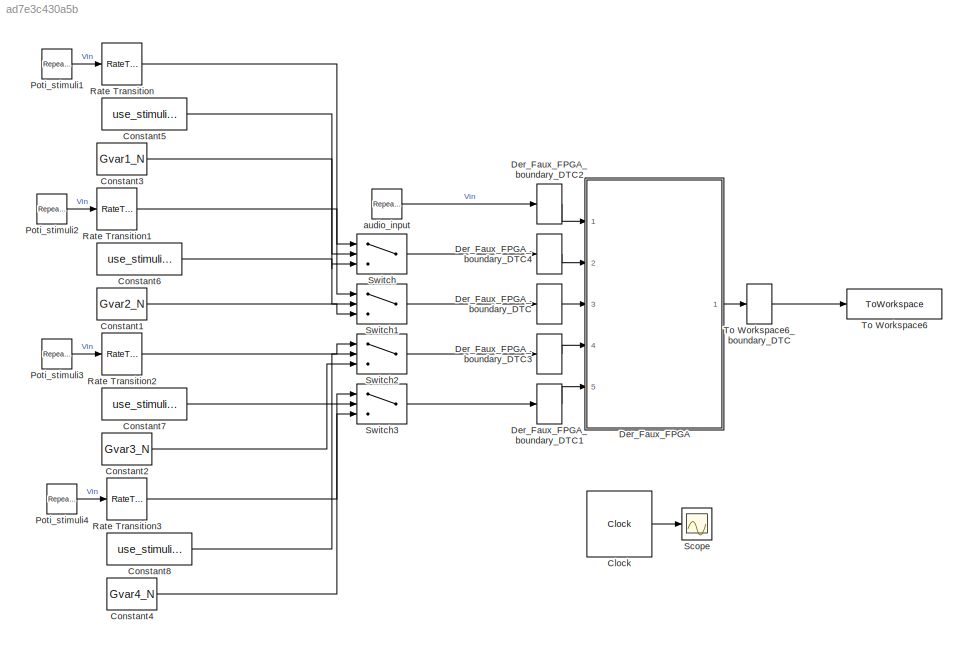
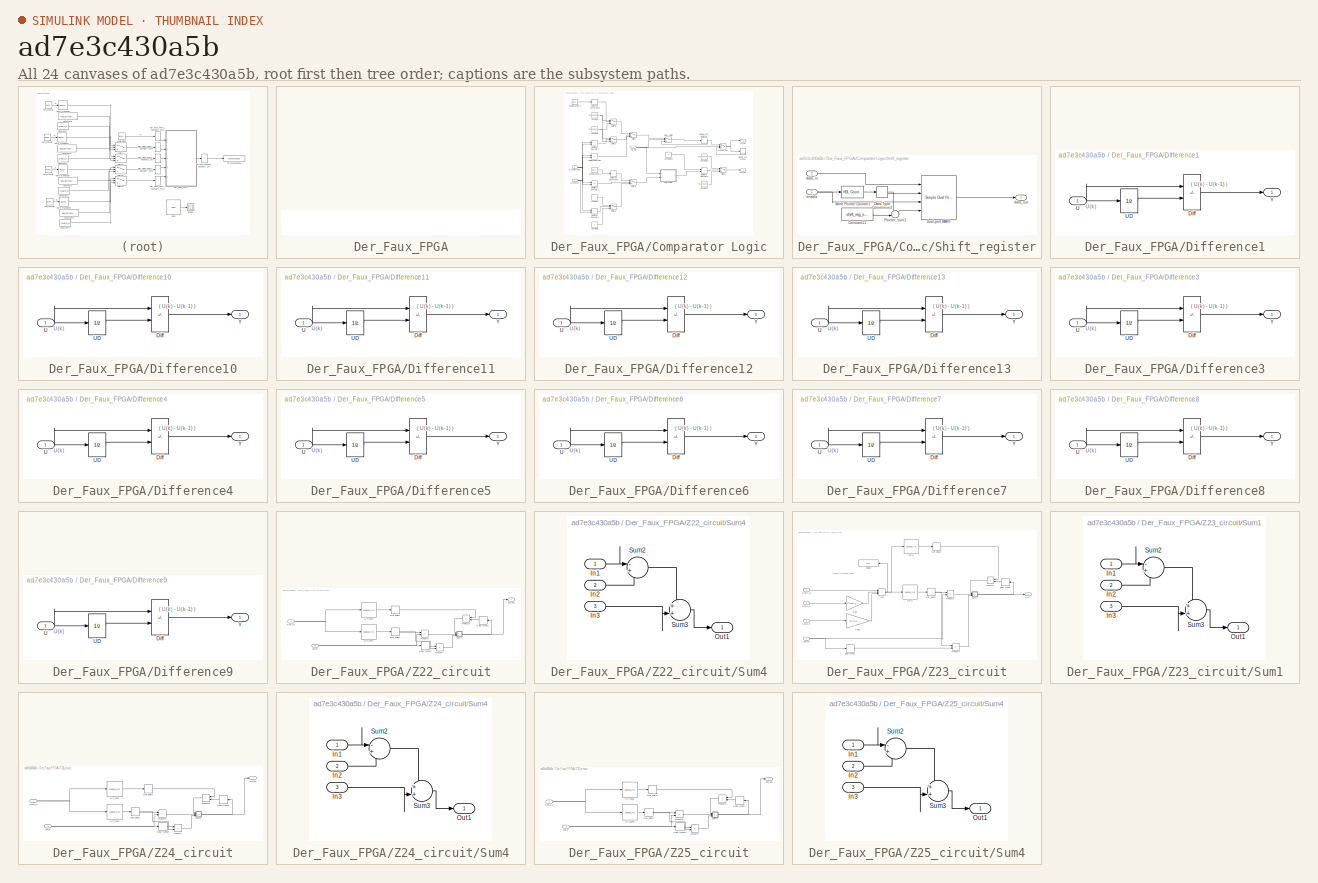
[diagram: thumbnail index - all 24 canvases of the model, root first then tree order]
MODEL slx_ad7e3c430a5b
KIND model
CONFIG AbsTol = auto
CONFIG EnableMultiTasking = off
CONFIG FixedStep = auto
CONFIG MaxStep = auto
CONFIG MinStep = auto
CONFIG RelTol = 1e-3
CONFIG SampleTimeConstraint = Unconstrained
CONFIG Solver = VariableStepAuto
CONFIG SolverName = VariableStepAuto
CONFIG StartTime = 0.0
CONFIG StopTime = 10.0
BLOCK [Clock] Clock
  DisplayTime = on
BLOCK [Constant] Constant1
  LockScale = on
  OutDataTypeStr = fixdt(0,ADC_res,0)
  SampleTime = 1/fs_sim
  Value = Gvar2_N
BLOCK [Constant] Constant2
  LockScale = on
  OutDataTypeStr = fixdt(0,ADC_res,0)
  SampleTime = 1/fs_sim
  Value = Gvar3_N
BLOCK [Constant] Constant3
  LockScale = on
  OutDataTypeStr = fixdt(0,ADC_res,0)
  SampleTime = 1/fs_sim
  Value = Gvar1_N
BLOCK [Constant] Constant4
  LockScale = on
  OutDataTypeStr = fixdt(0,ADC_res_G4,0)
  SampleTime = 1/(fs_sim)
  Value = Gvar4_N
BLOCK [Constant] Constant5
  LockScale = on
  OutDataTypeStr = boolean
  SampleTime = 1/fs_sim
  Value = use_stimuli(1)
BLOCK [Constant] Constant6
  LockScale = on
  OutDataTypeStr = boolean
  SampleTime = 1/fs_sim
  Value = use_stimuli(2)
BLOCK [Constant] Constant7
  LockScale = on
  OutDataTypeStr = boolean
  SampleTime = 1/fs_sim
  Value = use_stimuli(3)
BLOCK [Constant] Constant8
  LockScale = on
  OutDataTypeStr = boolean
  SampleTime = 1/(fs_sim)
  Value = use_stimuli(4)
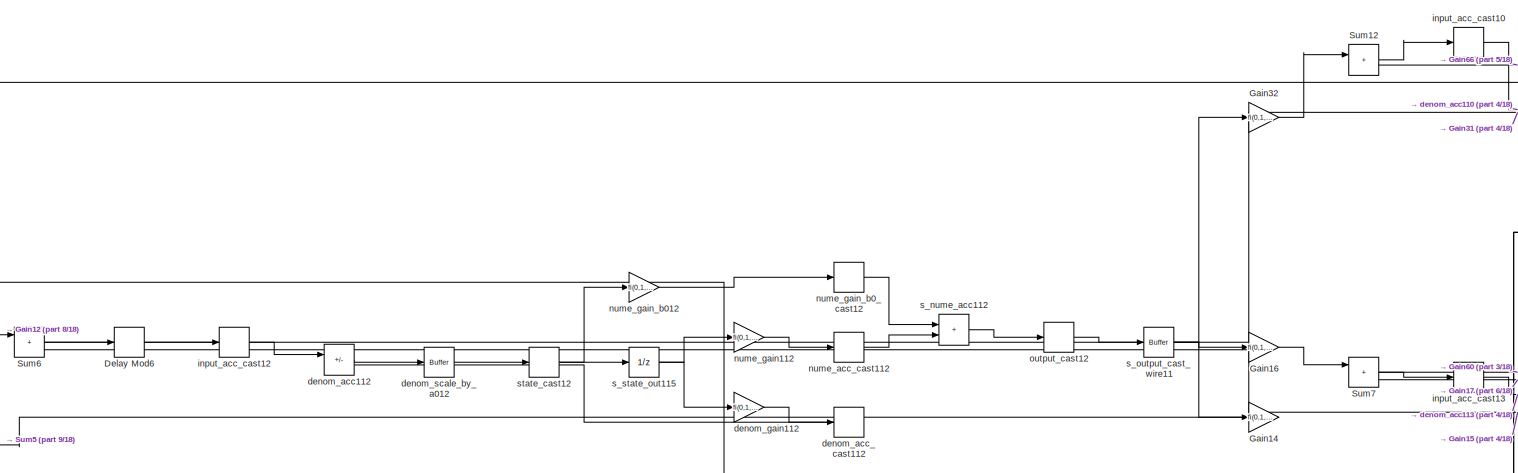
[diagram: Der_Faux_FPGA - part 1/18, top left region]
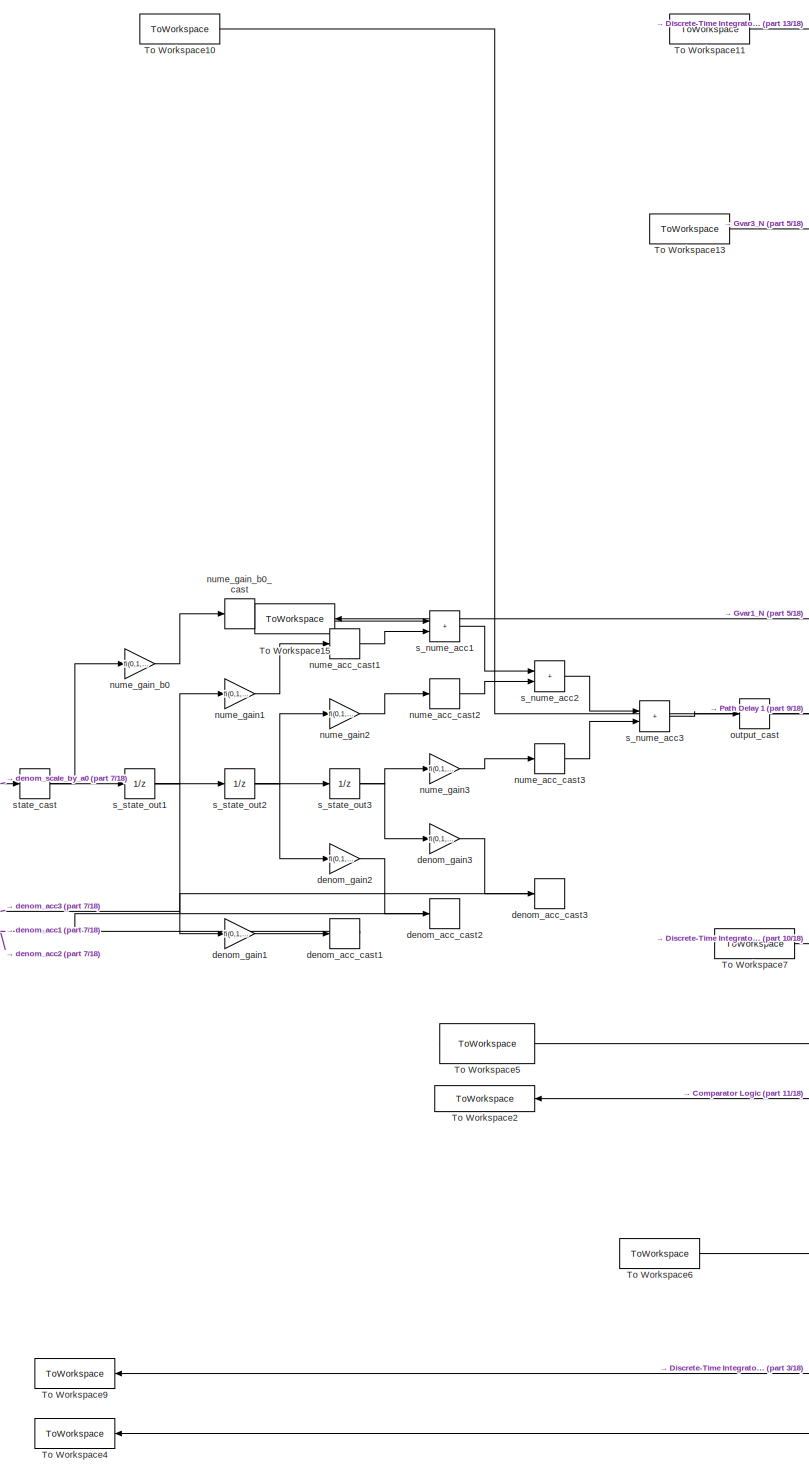
[diagram: Der_Faux_FPGA - part 2/18, left side, full height]
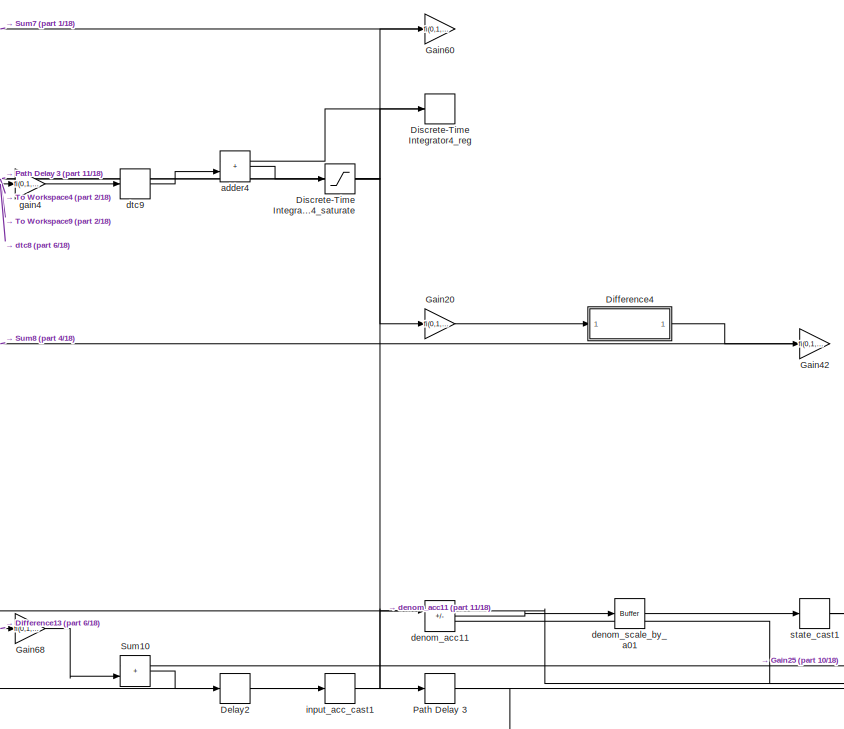
[diagram: Der_Faux_FPGA - part 3/18, top center region]
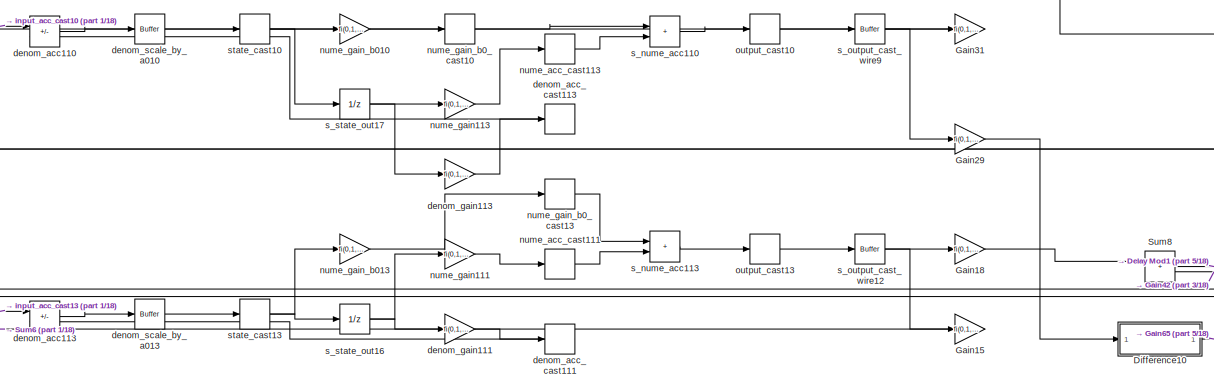
[diagram: Der_Faux_FPGA - part 4/18, top left region]
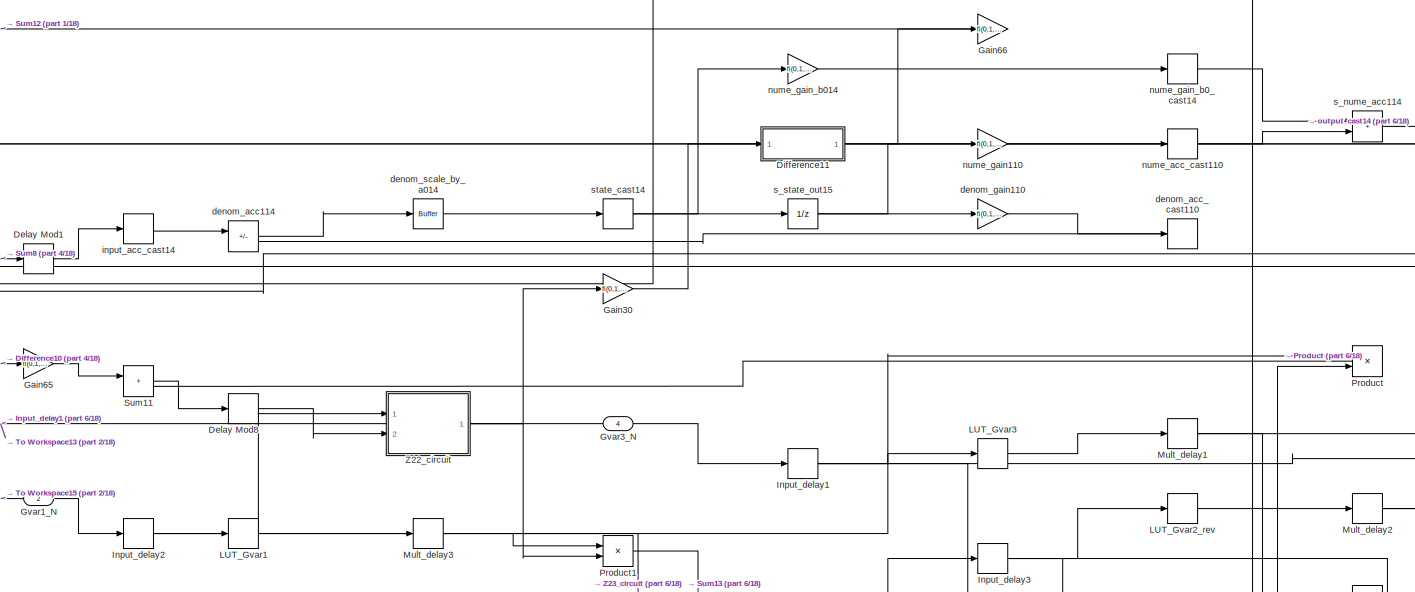
[diagram: Der_Faux_FPGA - part 5/18, top center region]
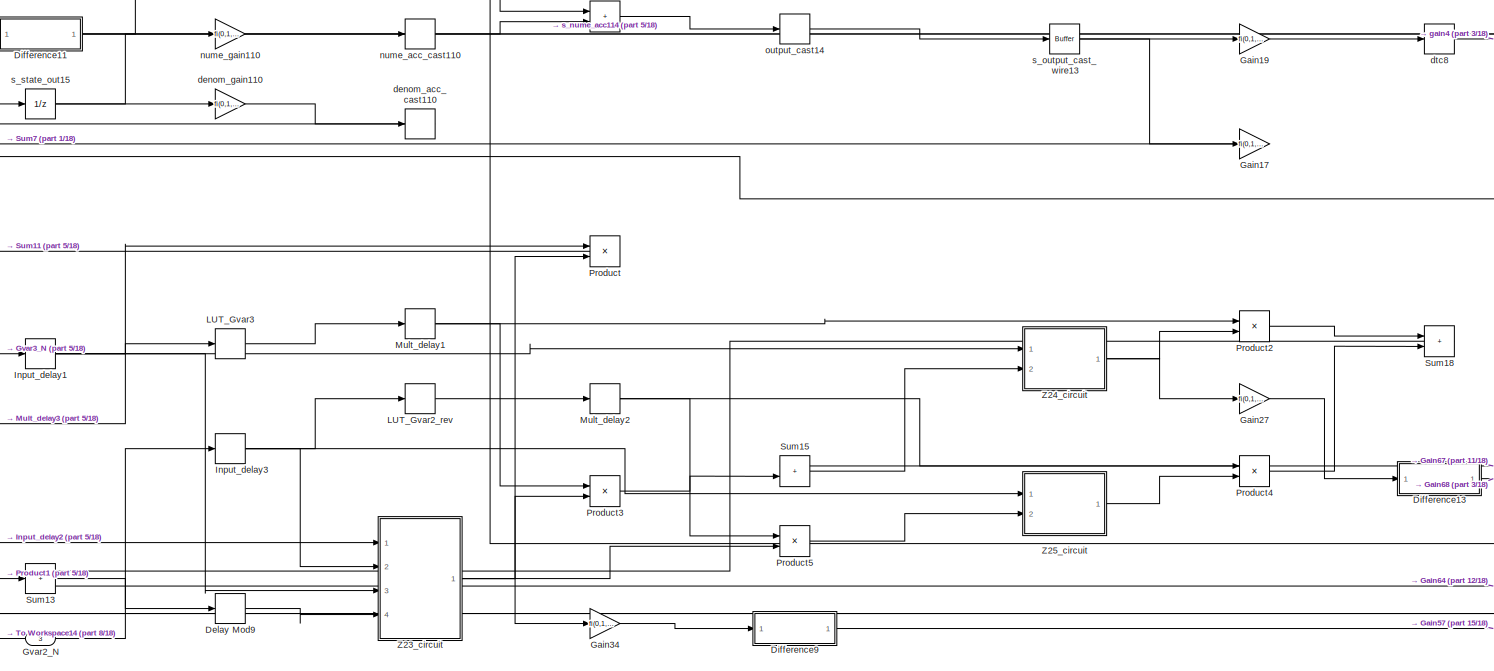
[diagram: Der_Faux_FPGA - part 6/18, top center region]
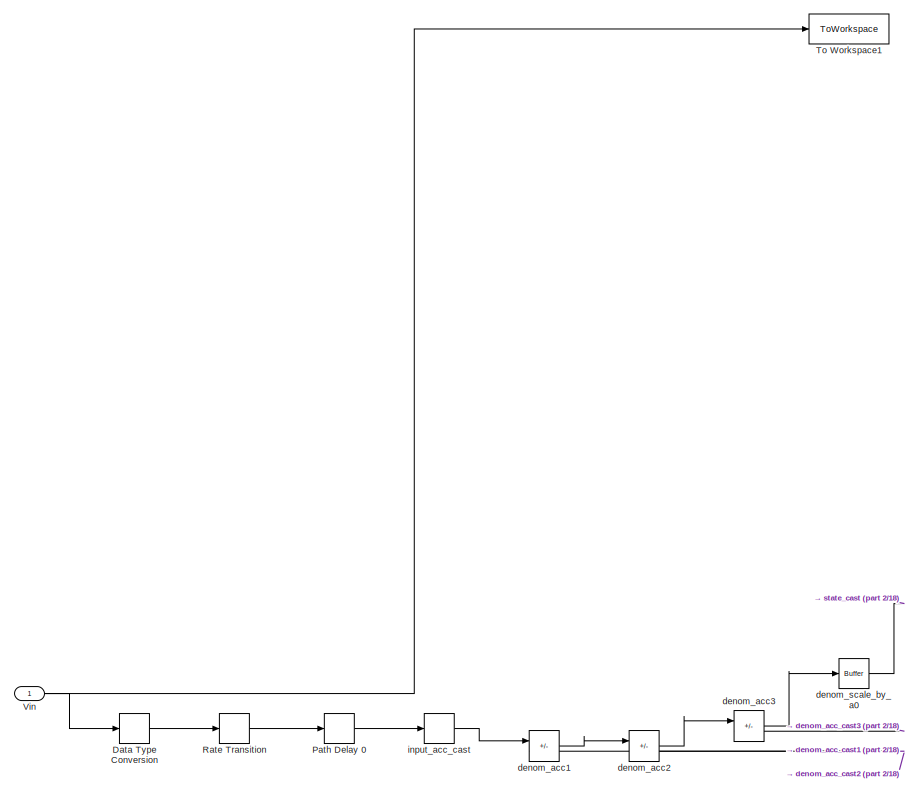
[diagram: Der_Faux_FPGA - part 7/18, middle left region]
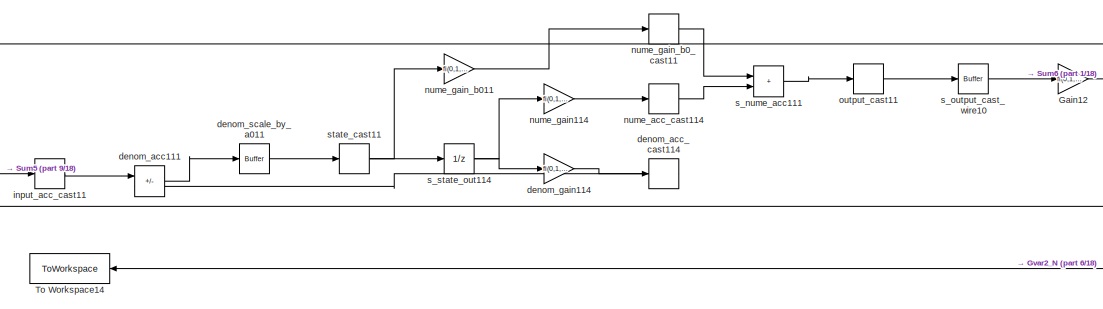
[diagram: Der_Faux_FPGA - part 8/18, top left region]
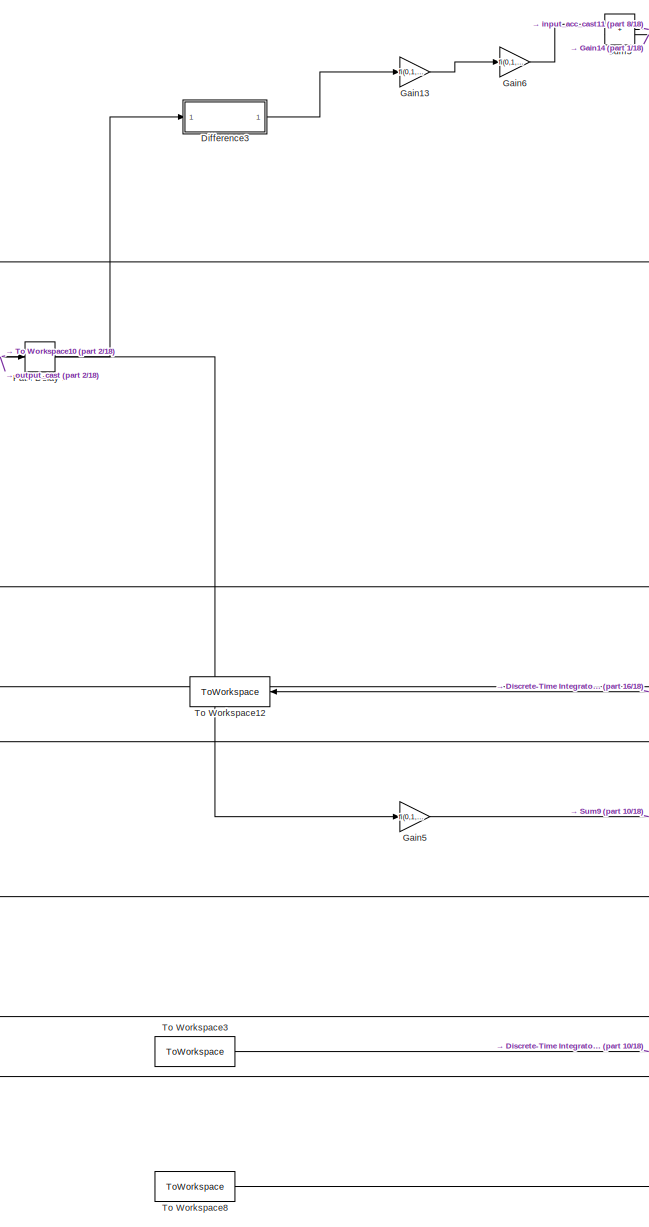
[diagram: Der_Faux_FPGA - part 9/18, middle left region]
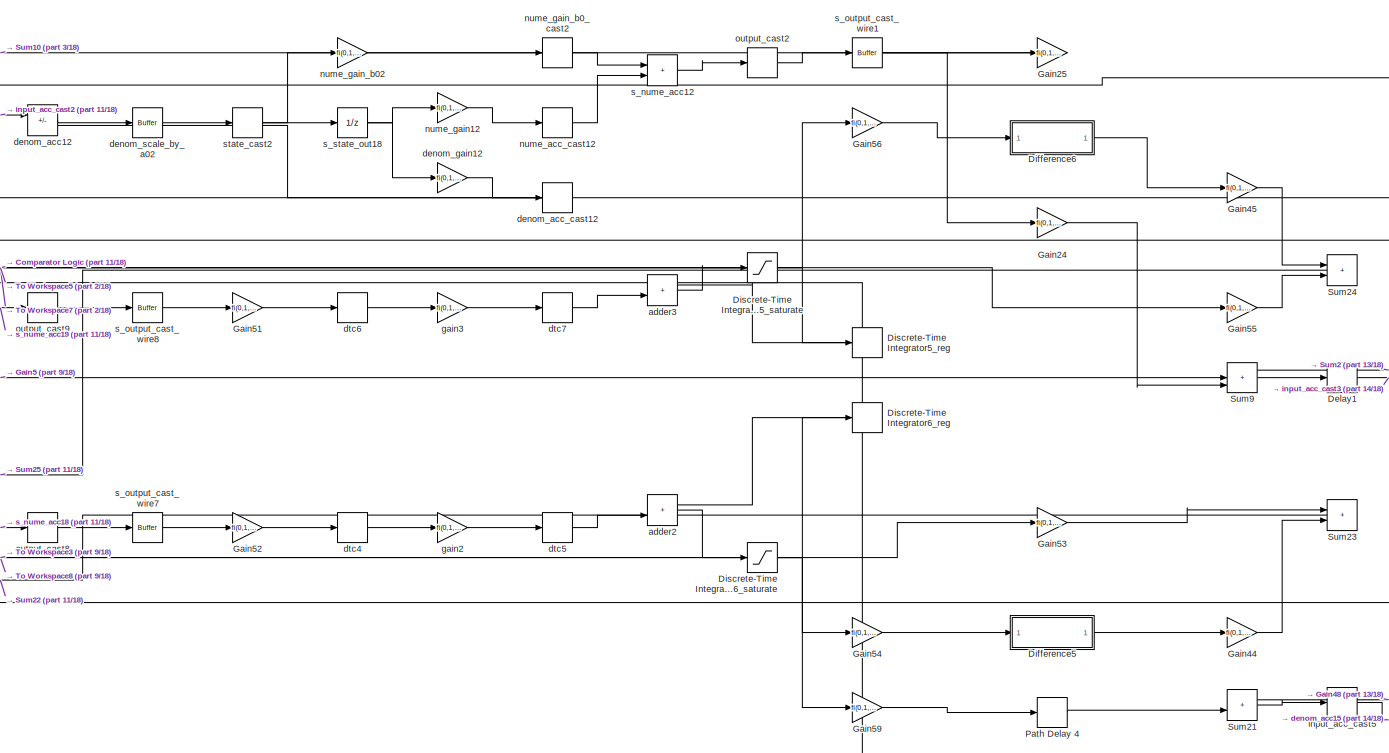
[diagram: Der_Faux_FPGA - part 10/18, central region]
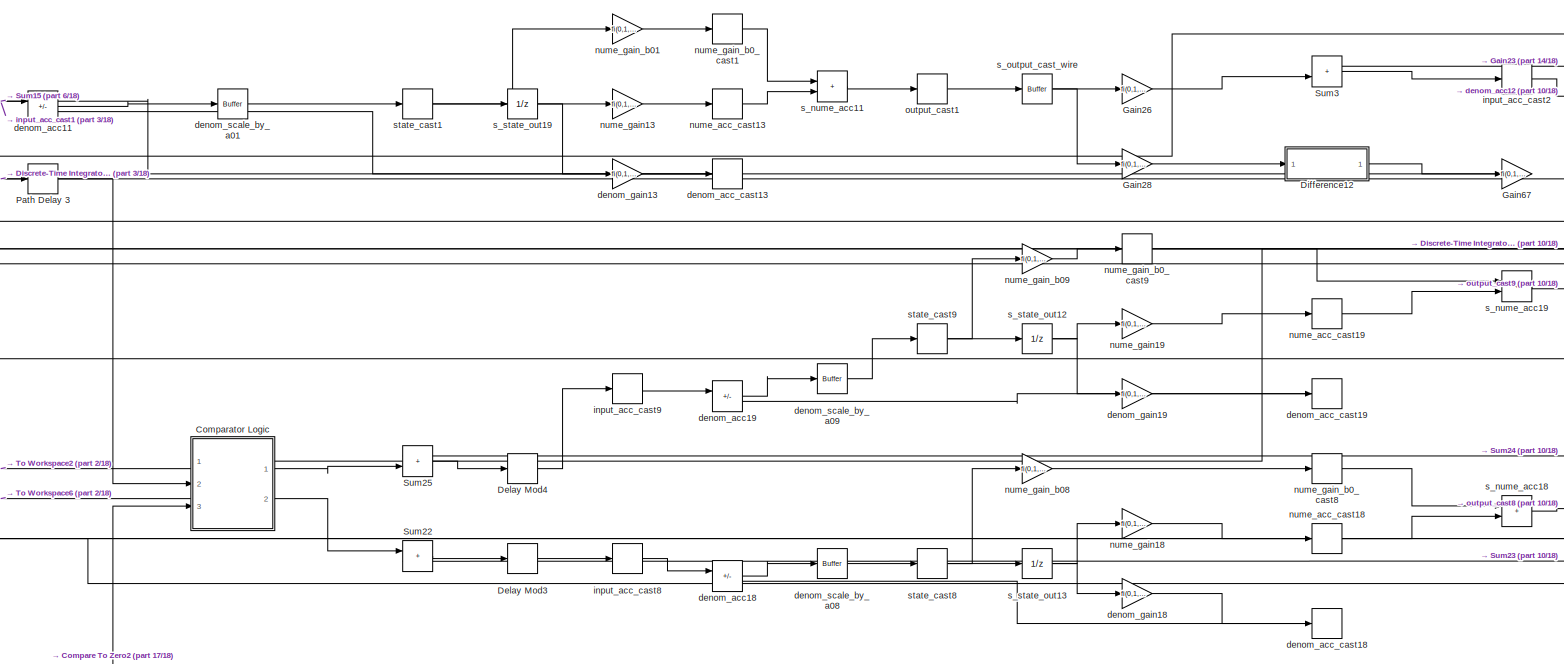
[diagram: Der_Faux_FPGA - part 11/18, central region]
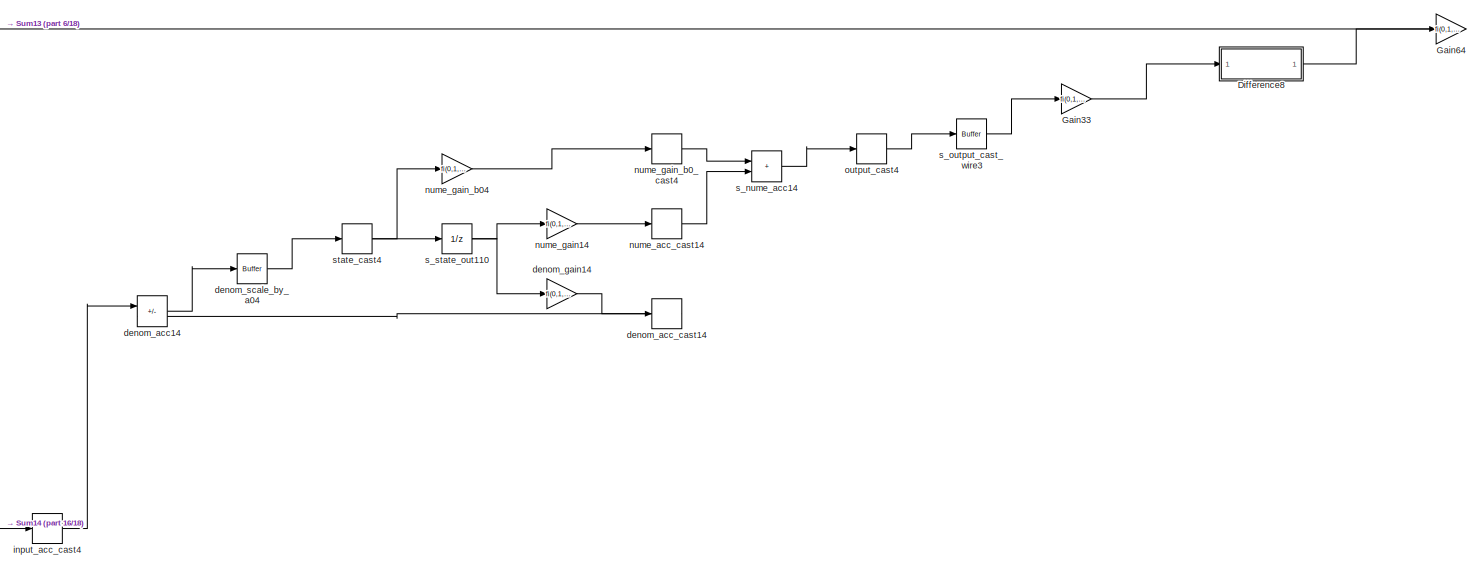
[diagram: Der_Faux_FPGA - part 12/18, middle right region]
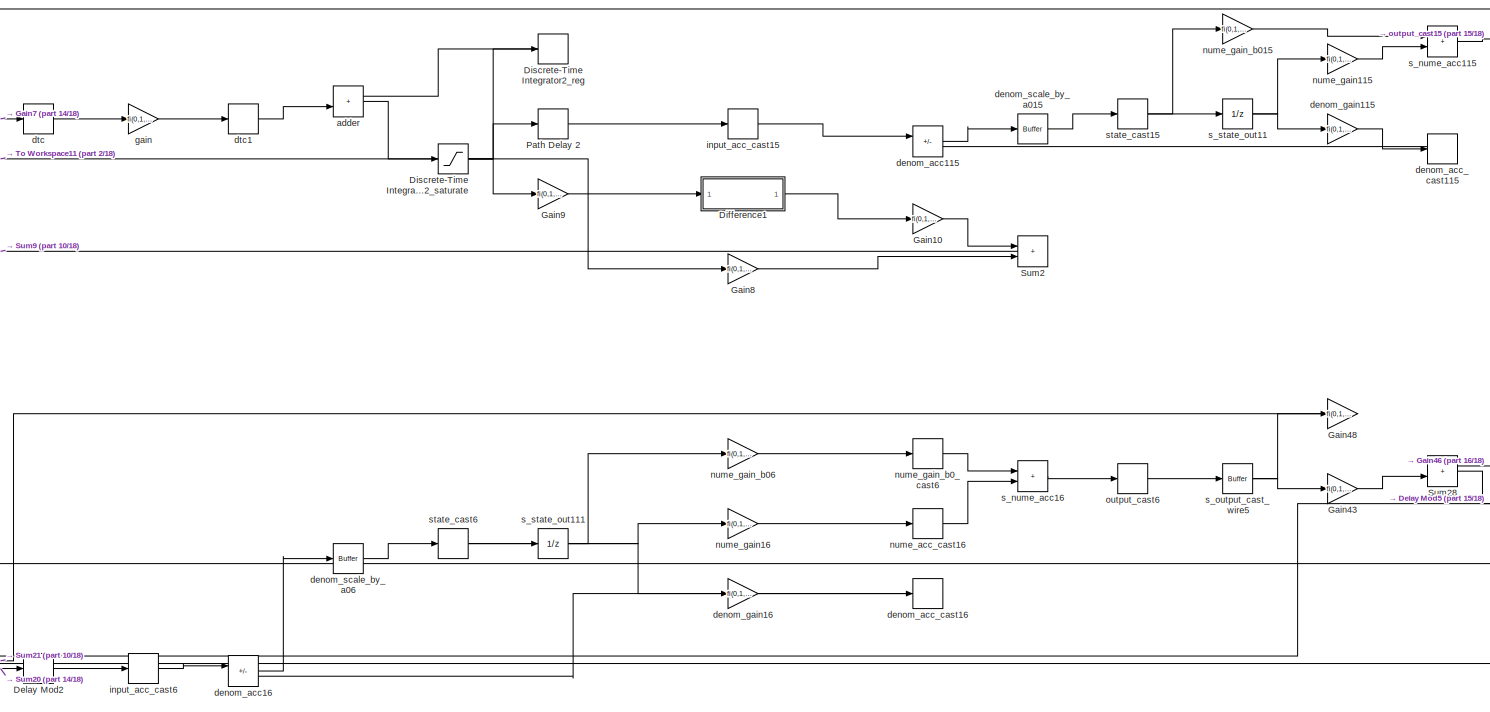
[diagram: Der_Faux_FPGA - part 13/18, middle right region]
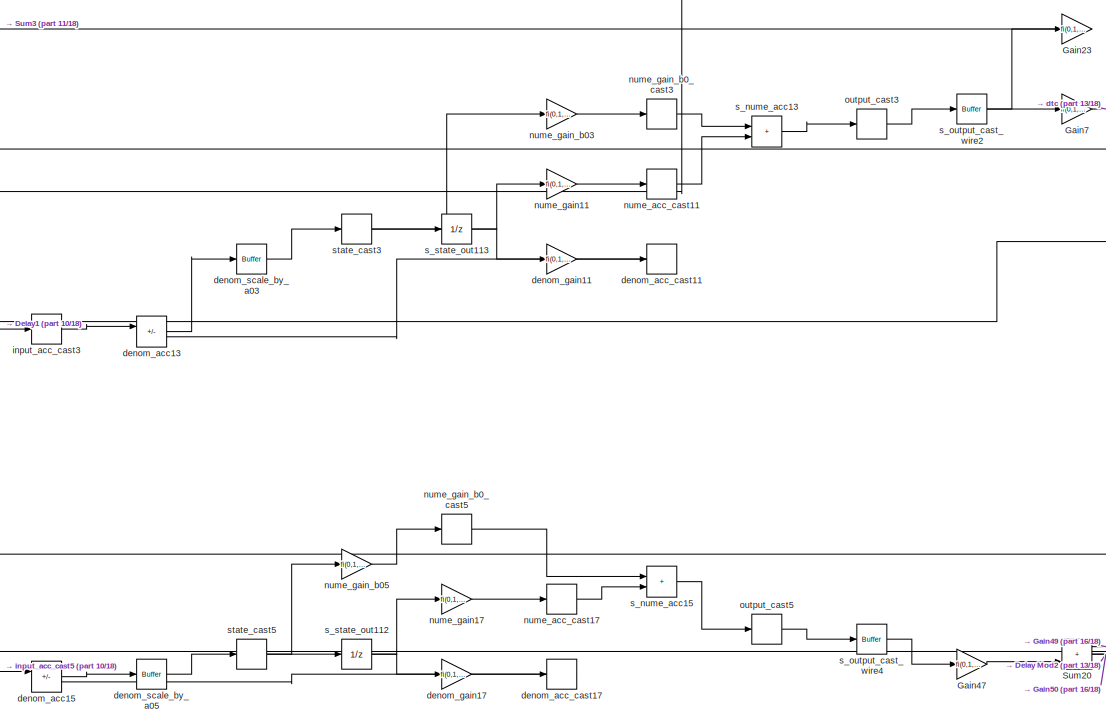
[diagram: Der_Faux_FPGA - part 14/18, middle right region]
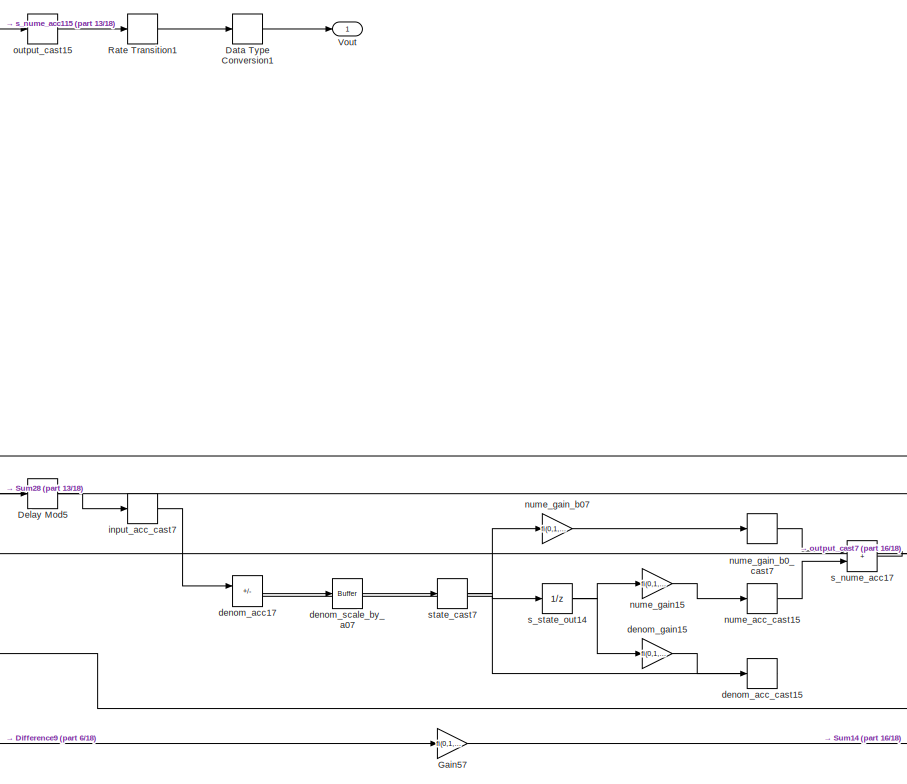
[diagram: Der_Faux_FPGA - part 15/18, middle right region]
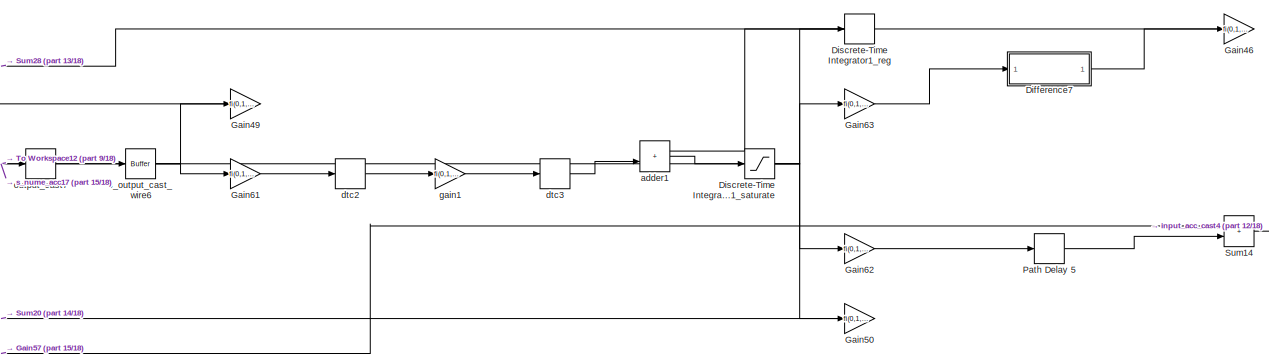
[diagram: Der_Faux_FPGA - part 16/18, middle right region]
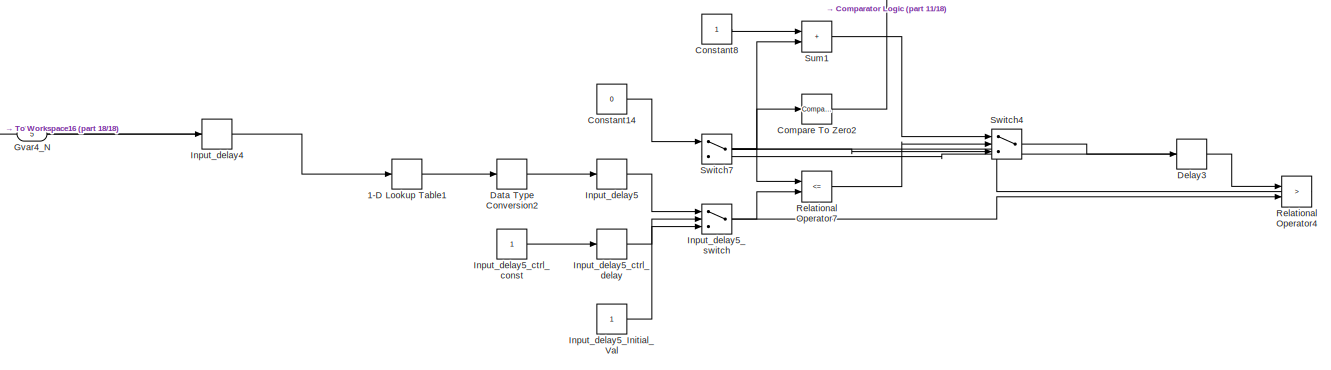
[diagram: Der_Faux_FPGA - part 17/18, bottom center region]
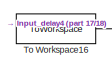
[diagram: Der_Faux_FPGA - part 18/18, bottom left region]
BLOCK [SubSystem] Der_Faux_FPGA
  Ports = [5, 1]
  RequestExecContextInheritance = off
BLOCK [Lookup_n-D] Der_Faux_FPGA/1-D Lookup Table1
  BreakpointsForDimension1 = fi("numerictype",numerictype(0,8,0),"fimath",fimath("RoundingMethod", "Nearest","OverflowAction", "Saturate","ProductMode","FullPrecision","SumMode","FullPrecision"),"Value","[0 1 2 3 4 5 6 7 8 9 10 11 12 13 14 15 16 17 18 19 20 21 22 23 24 25 26 27 28 29 30 31 32 33 34 35 36 37 38 39 40 41 42 43 44 45 46 47 48 49 50 51 52 53 54 55 56 57 58 59 60 61 62 63 64 65 66 67 68 69 70 71 72 73 74 75 76 77 ...<+692ch>
  DiagnosticForOutOfRangeInput = Error
  ExtrapMethod = Clip
  InterpMethod = Flat
  NumberOfTableDimensions = 1
  OutDataTypeStr = fixdt(0, 4, 0)
  Ports = [1, 1]
  RndMeth = Simplest
  SampleTime = 1.62760416666667e-07
  Table = reshape(fi("numerictype",numerictype(0,4,0),"fimath",fimath("RoundingMethod", "Floor","OverflowAction", "Wrap","ProductMode","FullPrecision","SumMode","FullPrecision"),"Value","[1;1;1;1;1;1;1;1;1;1;1;1;1;1;1;1;1;1;1;1;1;1;1;1;1;1;1;1;1;1;1;1;1;1;1;1;1;1;1;1;1;1;1;1;1;1;1;1;1;1;1;2;2;2;2;2;2;2;2;2;2;2;2;2;2;2;2;2;2;2;2;2;2;2;2;2;3;3;3;3;3;3;3;3;3;3;3;3;3;3;3;3;3;3;3;3;3;3;3;3;3;3;4;4;4;4;4;4;4;4;4;...<+304ch>
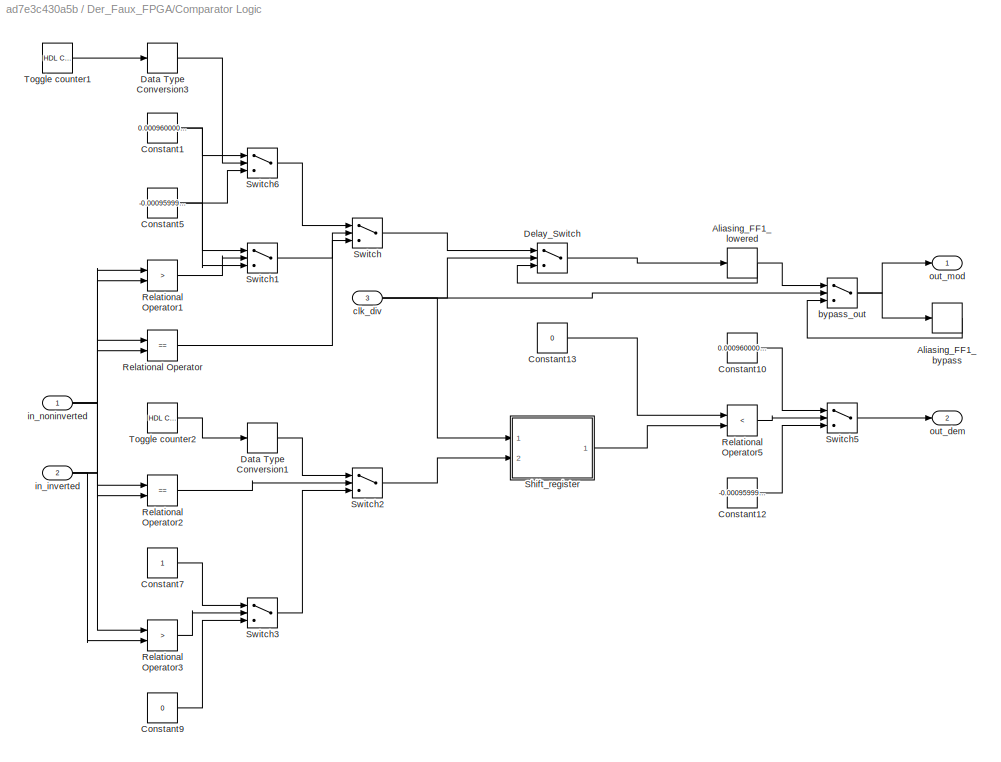
BLOCK [SubSystem] Der_Faux_FPGA/Comparator Logic
  Ports = [3, 2]
  RequestExecContextInheritance = off
BLOCK [Delay] Der_Faux_FPGA/Comparator Logic/Aliasing_FF1_bypass
  DelayLength = double(1)
  InputPortMap = u0
  Ports = [1, 1]
  SampleTime = 1.62760416666667e-07
BLOCK [Delay] Der_Faux_FPGA/Comparator Logic/Aliasing_FF1_lowered
  DelayLength = double(1)
  InitialCondition = 0
  InputPortMap = u0
  Ports = [1, 1]
  SampleTime = 1.62760416666667e-07
BLOCK [Constant] Der_Faux_FPGA/Comparator Logic/Constant1
  OutDataTypeStr = fixdt(0, 46, 56)
  SampleTime = 1.62760416666667e-07
  Value = 0.00096000000000000251798581984985503368079662322998046875
BLOCK [Constant] Der_Faux_FPGA/Comparator Logic/Constant10
  OutDataTypeStr = fixdt(0, 46, 56)
  SampleTime = 1.62760416666667e-07
  Value = 0.00096000000000000251798581984985503368079662322998046875
BLOCK [Constant] Der_Faux_FPGA/Comparator Logic/Constant12
  OutDataTypeStr = fixdt(1, 46, 55)
  SampleTime = 1.62760416666667e-07
  Value = -0.0009599999999999886401980120353982783854007720947265625
BLOCK [Constant] Der_Faux_FPGA/Comparator Logic/Constant13
  OutDataTypeStr = boolean
  SampleTime = 1.62760416666667e-07
  Value = 0
BLOCK [Constant] Der_Faux_FPGA/Comparator Logic/Constant5
  OutDataTypeStr = fixdt(1, 46, 55)
  SampleTime = 1.62760416666667e-07
  Value = -0.0009599999999999886401980120353982783854007720947265625
BLOCK [Constant] Der_Faux_FPGA/Comparator Logic/Constant7
  OutDataTypeStr = boolean
  SampleTime = 1.62760416666667e-07
BLOCK [Constant] Der_Faux_FPGA/Comparator Logic/Constant9
  OutDataTypeStr = boolean
  SampleTime = 1.62760416666667e-07
  Value = 0
BLOCK [DataTypeConversion] Der_Faux_FPGA/Comparator Logic/Data Type Conversion1
  OutDataTypeStr = boolean
  RndMeth = Floor
  SampleTime = 1.62760416666667e-07
  SaturateOnIntegerOverflow = off
BLOCK [DataTypeConversion] Der_Faux_FPGA/Comparator Logic/Data Type Conversion3
  OutDataTypeStr = boolean
  RndMeth = Floor
  SampleTime = 1.62760416666667e-07
  SaturateOnIntegerOverflow = off
BLOCK [Switch] Der_Faux_FPGA/Comparator Logic/Delay_Switch
  Criteria = u2 ~= 0
  InputSameDT = off
  OutDataTypeStr = fixdt(1, 46, 54)
  SampleTime = 1.62760416666667e-07
  SaturateOnIntegerOverflow = off
  Threshold = double(0)
BLOCK [RelationalOperator] Der_Faux_FPGA/Comparator Logic/Relational Operator
  InputSameDT = off
  Operator = ==
  OutDataTypeStr = boolean
  Ports = [2, 1]
  SampleTime = 1.62760416666667e-07
BLOCK [RelationalOperator] Der_Faux_FPGA/Comparator Logic/Relational Operator1
  InputSameDT = off
  Operator = >
  OutDataTypeStr = boolean
  Ports = [2, 1]
  SampleTime = 1.62760416666667e-07
BLOCK [RelationalOperator] Der_Faux_FPGA/Comparator Logic/Relational Operator2
  InputSameDT = off
  Operator = ==
  OutDataTypeStr = boolean
  Ports = [2, 1]
  SampleTime = 1.62760416666667e-07
BLOCK [RelationalOperator] Der_Faux_FPGA/Comparator Logic/Relational Operator3
  InputSameDT = off
  Operator = >
  OutDataTypeStr = boolean
  Ports = [2, 1]
  SampleTime = 1.62760416666667e-07
BLOCK [RelationalOperator] Der_Faux_FPGA/Comparator Logic/Relational Operator5
  InputSameDT = off
  Operator = <
  OutDataTypeStr = boolean
  Ports = [2, 1]
  SampleTime = 1.62760416666667e-07
BLOCK [SubSystem] Der_Faux_FPGA/Comparator Logic/Shift_register
  Ports = [2, 1]
  RequestExecContextInheritance = off
BLOCK [Constant] Der_Faux_FPGA/Comparator Logic/Shift_register/Constant11
  LockScale = on
  OutDataTypeStr = fixdt(0,ceil(log2(shift_reg_size)),0, 'DataTypeOverride', 'Off')
  SampleTime = 1/(fs_sim)
  Value = shift_reg_size
BLOCK [DataTypeConversion] Der_Faux_FPGA/Comparator Logic/Shift_register/Data Type Conversion2
  LockScale = on
  OutDataTypeStr = fixdt(0,ceil(log2(shift_reg_size)),0, 'DataTypeOverride', 'Off')
  RndMeth = Floor
  SaturateOnIntegerOverflow = off
BLOCK [Sum] Der_Faux_FPGA/Comparator Logic/Shift_register/Pointer_sum1
  Inputs = +-|
  LockScale = on
  OutDataTypeStr = fixdt(0,ceil(log2(shift_reg_size)),0, 'DataTypeOverride', 'Off')
  Ports = [2, 1]
BLOCK [Reference] Der_Faux_FPGA/Comparator Logic/Shift_register/Write Pointer Counter1  REF=hdlsllib/Sources/HDL Counter
  NameLocation = top
  Ports = [1, 1]
  SourceBlock = hdlsllib/Sources/HDL Counter
  SourceProductBaseCode = SL
  SourceType = HDL Counter
BLOCK [Inport] Der_Faux_FPGA/Comparator Logic/Shift_register/data_in
  OutDataTypeStr = boolean
  Port = 2
  PortDimensions = 1
  SampleTime = 1.62760416666667e-07
BLOCK [Outport] Der_Faux_FPGA/Comparator Logic/Shift_register/data_out
BLOCK [Reference] Der_Faux_FPGA/Comparator Logic/Shift_register/dual-port RAM1  REF=hdlsllib/HDL RAMs/Simple Dual Port RAM
  Ports = [4, 1]
  SourceBlock = hdlsllib/HDL RAMs/Simple Dual Port RAM
  SourceProductBaseCode = SL
  SourceType = Simple Dual-port RAM
BLOCK [Inport] Der_Faux_FPGA/Comparator Logic/Shift_register/enable
  OutDataTypeStr = boolean
  PortDimensions = 1
  SampleTime = 1.62760416666667e-07
BLOCK [Switch] Der_Faux_FPGA/Comparator Logic/Switch
  Criteria = u2 > Threshold
  InputSameDT = off
  OutDataTypeStr = fixdt(1, 46, 54)
  SampleTime = 1.62760416666667e-07
  SaturateOnIntegerOverflow = off
  Threshold = double(0)
BLOCK [Switch] Der_Faux_FPGA/Comparator Logic/Switch1
  Criteria = u2 > Threshold
  InputSameDT = off
  OutDataTypeStr = fixdt(1, 46, 54)
  SampleTime = 1.62760416666667e-07
  SaturateOnIntegerOverflow = off
  Threshold = double(0)
BLOCK [Switch] Der_Faux_FPGA/Comparator Logic/Switch2
  Criteria = u2 > Threshold
  InputSameDT = off
  OutDataTypeStr = boolean
  SampleTime = 1.62760416666667e-07
  SaturateOnIntegerOverflow = off
  Threshold = double(0)
BLOCK [Switch] Der_Faux_FPGA/Comparator Logic/Switch3
  Criteria = u2 > Threshold
  InputSameDT = off
  OutDataTypeStr = boolean
  SampleTime = 1.62760416666667e-07
  SaturateOnIntegerOverflow = off
  Threshold = double(0)
BLOCK [Switch] Der_Faux_FPGA/Comparator Logic/Switch5
  Criteria = u2 > Threshold
  InputSameDT = off
  OutDataTypeStr = fixdt(1, 46, 54)
  SampleTime = 1.62760416666667e-07
  SaturateOnIntegerOverflow = off
  Threshold = double(0)
BLOCK [Switch] Der_Faux_FPGA/Comparator Logic/Switch6
  Criteria = u2 > Threshold
  InputSameDT = off
  OutDataTypeStr = fixdt(1, 46, 54)
  SampleTime = 1.62760416666667e-07
  SaturateOnIntegerOverflow = off
  Threshold = double(0)
BLOCK [Reference] Der_Faux_FPGA/Comparator Logic/Toggle counter1  REF=hdlsllib/Sources/HDL Counter
  Ports = [0, 1]
  SourceBlock = hdlsllib/Sources/HDL Counter
  SourceProductBaseCode = SL
  SourceType = HDL Counter
BLOCK [Reference] Der_Faux_FPGA/Comparator Logic/Toggle counter2  REF=hdlsllib/Sources/HDL Counter
  Ports = [0, 1]
  SourceBlock = hdlsllib/Sources/HDL Counter
  SourceProductBaseCode = SL
  SourceType = HDL Counter
BLOCK [Switch] Der_Faux_FPGA/Comparator Logic/bypass_out
  Criteria = u2 ~= 0
  InputSameDT = off
  OutDataTypeStr = fixdt(1, 46, 54)
  SampleTime = 1.62760416666667e-07
  SaturateOnIntegerOverflow = off
  Threshold = double(0)
BLOCK [Inport] Der_Faux_FPGA/Comparator Logic/clk_div
  LockScale = on
  OutDataTypeStr = boolean
  Port = 3
  PortDimensions = 1
  SampleTime = 1.62760416666667e-07
BLOCK [Inport] Der_Faux_FPGA/Comparator Logic/in_inverted
  OutDataTypeStr = fixdt(1, 46, 42)
  Port = 2
  PortDimensions = 1
  SampleTime = 1.62760416666667e-07
BLOCK [Inport] Der_Faux_FPGA/Comparator Logic/in_noninverted
  OutDataTypeStr = fixdt(1, 46, 42)
  PortDimensions = 1
  SampleTime = 1.62760416666667e-07
BLOCK [Outport] Der_Faux_FPGA/Comparator Logic/out_dem
  OutDataTypeStr = fixdt(1,46,54)
  Port = 2
  SampleTime = 1/fs_sim
BLOCK [Outport] Der_Faux_FPGA/Comparator Logic/out_mod
  OutDataTypeStr = fixdt(1,46,54)
  SampleTime = 1/fs_sim
BLOCK [Reference] Der_Faux_FPGA/Compare To Zero2  REF=simulink/Logic and Bit
Operations/Compare
To Constant
  Ports = [1, 1]
  SourceBlock = simulink/Logic and Bit\nOperations/Compare\nTo Constant
  SourceProductBaseCode = SL
  SourceType = Compare To Constant
BLOCK [Constant] Der_Faux_FPGA/Constant14
  OutDataTypeStr = fixdt(0, 4, 0)
  SampleTime = 1.62760416666667e-07
  Value = 0
BLOCK [Constant] Der_Faux_FPGA/Constant8
  OutDataTypeStr = fixdt(0, 4, 0)
  SampleTime = 1.62760416666667e-07
BLOCK [DataTypeConversion] Der_Faux_FPGA/Data Type Conversion
  OutDataTypeStr = fixdt(1, 46, 44)
  RndMeth = Floor
  SampleTime = 2.08333333333333e-05
BLOCK [DataTypeConversion] Der_Faux_FPGA/Data Type Conversion1
  OutDataTypeStr = fixdt(1, 16, 15)
  RndMeth = Floor
  SampleTime = 2.08333333333333e-05
BLOCK [DataTypeConversion] Der_Faux_FPGA/Data Type Conversion2
  OutDataTypeStr = fixdt(0, 4, 0)
  RndMeth = Floor
  SampleTime = 1.62760416666667e-07
  SaturateOnIntegerOverflow = off
BLOCK [Delay] Der_Faux_FPGA/Delay Mod1
  DelayLength = double(1)
  InitialCondition = 0
  InputPortMap = u0
  Ports = [1, 1]
  SampleTime = 1.62760416666667e-07
BLOCK [Delay] Der_Faux_FPGA/Delay Mod2
  DelayLength = double(1)
  InitialCondition = 0
  InputPortMap = u0
  Ports = [1, 1]
  SampleTime = 1.62760416666667e-07
BLOCK [Delay] Der_Faux_FPGA/Delay Mod3
  DelayLength = double(1)
  InitialCondition = 0
  InputPortMap = u0
  Ports = [1, 1]
  SampleTime = 1.62760416666667e-07
BLOCK [Delay] Der_Faux_FPGA/Delay Mod4
  DelayLength = double(1)
  InitialCondition = 0
  InputPortMap = u0
  Ports = [1, 1]
  SampleTime = 1.62760416666667e-07
BLOCK [Delay] Der_Faux_FPGA/Delay Mod5
  DelayLength = double(1)
  InitialCondition = 0
  InputPortMap = u0
  Ports = [1, 1]
  SampleTime = 1.62760416666667e-07
BLOCK [Delay] Der_Faux_FPGA/Delay Mod6
  DelayLength = double(1)
  InitialCondition = 0
  InputPortMap = u0
  Ports = [1, 1]
  SampleTime = 1.62760416666667e-07
BLOCK [Delay] Der_Faux_FPGA/Delay Mod8
  DelayLength = double(1)
  InitialCondition = 0
  InputPortMap = u0
  Ports = [1, 1]
  SampleTime = 1.62760416666667e-07
BLOCK [Delay] Der_Faux_FPGA/Delay Mod9
  DelayLength = double(1)
  InitialCondition = 0
  InputPortMap = u0
  Ports = [1, 1]
  SampleTime = 1.62760416666667e-07
BLOCK [Delay] Der_Faux_FPGA/Delay1
  DelayLength = double(1)
  InitialCondition = 0
  InputPortMap = u0
  Ports = [1, 1]
  SampleTime = 1.62760416666667e-07
BLOCK [Delay] Der_Faux_FPGA/Delay2
  DelayLength = double(1)
  InitialCondition = 0
  InputPortMap = u0
  Ports = [1, 1]
  SampleTime = 1.62760416666667e-07
BLOCK [Delay] Der_Faux_FPGA/Delay3
  DelayLength = double(1)
  InitialCondition = 0
  InputPortMap = u0
  Ports = [1, 1]
  SampleTime = 1.62760416666667e-07
BLOCK [SubSystem] Der_Faux_FPGA/Difference1
  Ports = [1, 1]
  RequestExecContextInheritance = off
BLOCK [Sum] Der_Faux_FPGA/Difference1/Diff
  Description = Add in CPU
  IconShape = rectangular
  Inputs = +-
  OutDataTypeStr = OutDataTypeStr
  OutMax = OutMax
  OutMin = OutMin
  Ports = [2, 1]
  SaturateOnIntegerOverflow = on
BLOCK [Inport] Der_Faux_FPGA/Difference1/U
  OutDataTypeStr = fixdt(1, 46, 76)
  SampleTime = 1.62760416666667e-07
BLOCK [UnitDelay] Der_Faux_FPGA/Difference1/UD
  Description = Store in Global RAM
  DisableCoverage = on
  HasFrameUpgradeWarning = on
  InitialCondition = ICPrevInput
  SampleTime = -1
BLOCK [Outport] Der_Faux_FPGA/Difference1/Y
BLOCK [SubSystem] Der_Faux_FPGA/Difference10
  Ports = [1, 1]
  RequestExecContextInheritance = off
BLOCK [Sum] Der_Faux_FPGA/Difference10/Diff
  Description = Add in CPU
  IconShape = rectangular
  Inputs = +-
  OutDataTypeStr = OutDataTypeStr
  OutMax = OutMax
  OutMin = OutMin
  Ports = [2, 1]
  SaturateOnIntegerOverflow = on
BLOCK [Inport] Der_Faux_FPGA/Difference10/U
  OutDataTypeStr = fixdt(1, 46, 66)
  SampleTime = 1.62760416666667e-07
BLOCK [UnitDelay] Der_Faux_FPGA/Difference10/UD
  Description = Store in Global RAM
  DisableCoverage = on
  HasFrameUpgradeWarning = on
  InitialCondition = ICPrevInput
  SampleTime = -1
BLOCK [Outport] Der_Faux_FPGA/Difference10/Y
BLOCK [SubSystem] Der_Faux_FPGA/Difference11
  Ports = [1, 1]
  RequestExecContextInheritance = off
BLOCK [Sum] Der_Faux_FPGA/Difference11/Diff
  Description = Add in CPU
  IconShape = rectangular
  Inputs = +-
  OutDataTypeStr = OutDataTypeStr
  OutMax = OutMax
  OutMin = OutMin
  Ports = [2, 1]
  SaturateOnIntegerOverflow = on
BLOCK [Inport] Der_Faux_FPGA/Difference11/U
  OutDataTypeStr = fixdt(1, 46, 66)
  SampleTime = 1.62760416666667e-07
BLOCK [UnitDelay] Der_Faux_FPGA/Difference11/UD
  Description = Store in Global RAM
  DisableCoverage = on
  HasFrameUpgradeWarning = on
  InitialCondition = ICPrevInput
  SampleTime = -1
BLOCK [Outport] Der_Faux_FPGA/Difference11/Y
BLOCK [SubSystem] Der_Faux_FPGA/Difference12
  Ports = [1, 1]
  RequestExecContextInheritance = off
BLOCK [Sum] Der_Faux_FPGA/Difference12/Diff
  Description = Add in CPU
  IconShape = rectangular
  Inputs = +-
  OutDataTypeStr = OutDataTypeStr
  OutMax = OutMax
  OutMin = OutMin
  Ports = [2, 1]
  SaturateOnIntegerOverflow = on
BLOCK [Inport] Der_Faux_FPGA/Difference12/U
  OutDataTypeStr = fixdt(1, 46, 62)
  SampleTime = 1.62760416666667e-07
BLOCK [UnitDelay] Der_Faux_FPGA/Difference12/UD
  Description = Store in Global RAM
  DisableCoverage = on
  HasFrameUpgradeWarning = on
  InitialCondition = ICPrevInput
  SampleTime = -1
BLOCK [Outport] Der_Faux_FPGA/Difference12/Y
BLOCK [SubSystem] Der_Faux_FPGA/Difference13
  Ports = [1, 1]
  RequestExecContextInheritance = off
BLOCK [Sum] Der_Faux_FPGA/Difference13/Diff
  Description = Add in CPU
  IconShape = rectangular
  Inputs = +-
  OutDataTypeStr = OutDataTypeStr
  OutMax = OutMax
  OutMin = OutMin
  Ports = [2, 1]
  SaturateOnIntegerOverflow = on
BLOCK [Inport] Der_Faux_FPGA/Difference13/U
  OutDataTypeStr = fixdt(1, 46, 63)
  SampleTime = 1.62760416666667e-07
BLOCK [UnitDelay] Der_Faux_FPGA/Difference13/UD
  Description = Store in Global RAM
  DisableCoverage = on
  HasFrameUpgradeWarning = on
  InitialCondition = ICPrevInput
  SampleTime = -1
BLOCK [Outport] Der_Faux_FPGA/Difference13/Y
BLOCK [SubSystem] Der_Faux_FPGA/Difference3
  Ports = [1, 1]
  RequestExecContextInheritance = off
BLOCK [Sum] Der_Faux_FPGA/Difference3/Diff
  Description = Add in CPU
  IconShape = rectangular
  Inputs = +-
  OutDataTypeStr = OutDataTypeStr
  OutMax = OutMax
  OutMin = OutMin
  Ports = [2, 1]
  SaturateOnIntegerOverflow = on
BLOCK [Inport] Der_Faux_FPGA/Difference3/U
  OutDataTypeStr = fixdt(1, 46, 43)
  SampleTime = 1.62760416666667e-07
BLOCK [UnitDelay] Der_Faux_FPGA/Difference3/UD
  Description = Store in Global RAM
  DisableCoverage = on
  HasFrameUpgradeWarning = on
  InitialCondition = ICPrevInput
  SampleTime = -1
BLOCK [Outport] Der_Faux_FPGA/Difference3/Y
BLOCK [SubSystem] Der_Faux_FPGA/Difference4
  Ports = [1, 1]
  RequestExecContextInheritance = off
BLOCK [Sum] Der_Faux_FPGA/Difference4/Diff
  Description = Add in CPU
  IconShape = rectangular
  Inputs = +-
  OutDataTypeStr = OutDataTypeStr
  OutMax = OutMax
  OutMin = OutMin
  Ports = [2, 1]
  SaturateOnIntegerOverflow = on
BLOCK [Inport] Der_Faux_FPGA/Difference4/U
  OutDataTypeStr = fixdt(1, 46, 73)
  SampleTime = 1.62760416666667e-07
BLOCK [UnitDelay] Der_Faux_FPGA/Difference4/UD
  Description = Store in Global RAM
  DisableCoverage = on
  HasFrameUpgradeWarning = on
  InitialCondition = ICPrevInput
  SampleTime = -1
BLOCK [Outport] Der_Faux_FPGA/Difference4/Y
BLOCK [SubSystem] Der_Faux_FPGA/Difference5
  Ports = [1, 1]
  RequestExecContextInheritance = off
BLOCK [Sum] Der_Faux_FPGA/Difference5/Diff
  Description = Add in CPU
  IconShape = rectangular
  Inputs = +-
  OutDataTypeStr = OutDataTypeStr
  OutMax = OutMax
  OutMin = OutMin
  Ports = [2, 1]
  SaturateOnIntegerOverflow = on
BLOCK [Inport] Der_Faux_FPGA/Difference5/U
  OutDataTypeStr = fixdt(1, 46, 66)
  SampleTime = 1.62760416666667e-07
BLOCK [UnitDelay] Der_Faux_FPGA/Difference5/UD
  Description = Store in Global RAM
  DisableCoverage = on
  HasFrameUpgradeWarning = on
  InitialCondition = ICPrevInput
  SampleTime = -1
BLOCK [Outport] Der_Faux_FPGA/Difference5/Y
BLOCK [SubSystem] Der_Faux_FPGA/Difference6
  Ports = [1, 1]
  RequestExecContextInheritance = off
BLOCK [Sum] Der_Faux_FPGA/Difference6/Diff
  Description = Add in CPU
  IconShape = rectangular
  Inputs = +-
  OutDataTypeStr = OutDataTypeStr
  OutMax = OutMax
  OutMin = OutMin
  Ports = [2, 1]
  SaturateOnIntegerOverflow = on
BLOCK [Inport] Der_Faux_FPGA/Difference6/U
  OutDataTypeStr = fixdt(1, 46, 65)
  SampleTime = 1.62760416666667e-07
BLOCK [UnitDelay] Der_Faux_FPGA/Difference6/UD
  Description = Store in Global RAM
  DisableCoverage = on
  HasFrameUpgradeWarning = on
  InitialCondition = ICPrevInput
  SampleTime = -1
BLOCK [Outport] Der_Faux_FPGA/Difference6/Y
BLOCK [SubSystem] Der_Faux_FPGA/Difference7
  Ports = [1, 1]
  RequestExecContextInheritance = off
BLOCK [Sum] Der_Faux_FPGA/Difference7/Diff
  Description = Add in CPU
  IconShape = rectangular
  Inputs = +-
  OutDataTypeStr = OutDataTypeStr
  OutMax = OutMax
  OutMin = OutMin
  Ports = [2, 1]
  SaturateOnIntegerOverflow = on
BLOCK [Inport] Der_Faux_FPGA/Difference7/U
  OutDataTypeStr = fixdt(1, 46, 73)
  SampleTime = 1.62760416666667e-07
BLOCK [UnitDelay] Der_Faux_FPGA/Difference7/UD
  Description = Store in Global RAM
  DisableCoverage = on
  HasFrameUpgradeWarning = on
  InitialCondition = ICPrevInput
  SampleTime = -1
BLOCK [Outport] Der_Faux_FPGA/Difference7/Y
BLOCK [SubSystem] Der_Faux_FPGA/Difference8
  Ports = [1, 1]
  RequestExecContextInheritance = off
BLOCK [Sum] Der_Faux_FPGA/Difference8/Diff
  Description = Add in CPU
  IconShape = rectangular
  Inputs = +-
  OutDataTypeStr = OutDataTypeStr
  OutMax = OutMax
  OutMin = OutMin
  Ports = [2, 1]
  SaturateOnIntegerOverflow = on
BLOCK [Inport] Der_Faux_FPGA/Difference8/U
  OutDataTypeStr = fixdt(1, 46, 63)
  SampleTime = 1.62760416666667e-07
BLOCK [UnitDelay] Der_Faux_FPGA/Difference8/UD
  Description = Store in Global RAM
  DisableCoverage = on
  HasFrameUpgradeWarning = on
  InitialCondition = ICPrevInput
  SampleTime = -1
BLOCK [Outport] Der_Faux_FPGA/Difference8/Y
BLOCK [SubSystem] Der_Faux_FPGA/Difference9
  Ports = [1, 1]
  RequestExecContextInheritance = off
BLOCK [Sum] Der_Faux_FPGA/Difference9/Diff
  Description = Add in CPU
  IconShape = rectangular
  Inputs = +-
  OutDataTypeStr = OutDataTypeStr
  OutMax = OutMax
  OutMin = OutMin
  Ports = [2, 1]
  SaturateOnIntegerOverflow = on
BLOCK [Inport] Der_Faux_FPGA/Difference9/U
  OutDataTypeStr = fixdt(1, 46, 62)
  SampleTime = 1.62760416666667e-07
BLOCK [UnitDelay] Der_Faux_FPGA/Difference9/UD
  Description = Store in Global RAM
  DisableCoverage = on
  HasFrameUpgradeWarning = on
  InitialCondition = ICPrevInput
  SampleTime = -1
BLOCK [Outport] Der_Faux_FPGA/Difference9/Y
BLOCK [Delay] Der_Faux_FPGA/Discrete-Time Integrator1_reg
  DelayLength = double(1)
  InitialCondition = 0
  InputPortMap = u0
  Ports = [1, 1]
  SampleTime = 1.62760416666667e-07
BLOCK [Saturate] Der_Faux_FPGA/Discrete-Time Integrator1_saturate
  LowerLimit = fi(0,1,46,43,"hex","2c0000000000")
  OutDataTypeStr = fixdt(1, 46, 43)
  SampleTime = 1.62760416666667e-07
  UpperLimit = fi(0,1,46,43,"hex","140000000000")
BLOCK [Delay] Der_Faux_FPGA/Discrete-Time Integrator2_reg
  DelayLength = double(1)
  InitialCondition = 0
  InputPortMap = u0
  Ports = [1, 1]
  SampleTime = 1.62760416666667e-07
BLOCK [Saturate] Der_Faux_FPGA/Discrete-Time Integrator2_saturate
  LowerLimit = fi(0,1,46,42,"hex","2e0000000000")
  OutDataTypeStr = fixdt(1, 46, 42)
  SampleTime = 1.62760416666667e-07
  UpperLimit = fi(0,1,46,42,"hex","120000000000")
BLOCK [Delay] Der_Faux_FPGA/Discrete-Time Integrator4_reg
  DelayLength = double(1)
  InitialCondition = 0
  InputPortMap = u0
  Ports = [1, 1]
  SampleTime = 1.62760416666667e-07
BLOCK [Saturate] Der_Faux_FPGA/Discrete-Time Integrator4_saturate
  LowerLimit = fi(0,1,46,42,"hex","360000000000")
  OutDataTypeStr = fixdt(1, 46, 42)
  SampleTime = 1.62760416666667e-07
  UpperLimit = fi(0,1,46,42,"hex","0a0000000000")
BLOCK [Delay] Der_Faux_FPGA/Discrete-Time Integrator5_reg
  DelayLength = double(1)
  InitialCondition = 0
  InputPortMap = u0
  Ports = [1, 1]
  SampleTime = 1.62760416666667e-07
BLOCK [Saturate] Der_Faux_FPGA/Discrete-Time Integrator5_saturate
  LowerLimit = fi(0,1,46,42,"hex","360000000000")
  OutDataTypeStr = fixdt(1, 46, 42)
  SampleTime = 1.62760416666667e-07
  UpperLimit = fi(0,1,46,42,"hex","0a0000000000")
BLOCK [Delay] Der_Faux_FPGA/Discrete-Time Integrator6_reg
  DelayLength = double(1)
  InitialCondition = 0
  InputPortMap = u0
  Ports = [1, 1]
  SampleTime = 1.62760416666667e-07
BLOCK [Saturate] Der_Faux_FPGA/Discrete-Time Integrator6_saturate
  LowerLimit = fi(0,1,46,42,"hex","360000000000")
  OutDataTypeStr = fixdt(1, 46, 42)
  SampleTime = 1.62760416666667e-07
  UpperLimit = fi(0,1,46,42,"hex","0a0000000000")
BLOCK [Gain] Der_Faux_FPGA/Gain10
  Gain = fi(0,1,46,22,"hex","177000000000")
  OutDataTypeStr = fixdt(1, 46, 59)
  ParamDataTypeStr = fixdt(1, 46, 22)
  SampleTime = 1.62760416666667e-07
  SaturateOnIntegerOverflow = on
BLOCK [Gain] Der_Faux_FPGA/Gain12
  Gain = fi(0,1,46,58,"hex","15d867c3ece3")
  OutDataTypeStr = fixdt(1, 46, 56)
  ParamDataTypeStr = fixdt(1, 46, 58)
  SampleTime = 1.62760416666667e-07
  SaturateOnIntegerOverflow = on
BLOCK [Gain] Der_Faux_FPGA/Gain13
  Gain = fi(0,1,46,22,"hex","177000000000")
  OutDataTypeStr = fixdt(1, 46, 25)
  ParamDataTypeStr = fixdt(1, 46, 22)
  SampleTime = 1.62760416666667e-07
  SaturateOnIntegerOverflow = on
BLOCK [Gain] Der_Faux_FPGA/Gain14
  Gain = fi(0,1,46,58,"hex","15d867c3ece3")
  OutDataTypeStr = fixdt(1, 46, 56)
  ParamDataTypeStr = fixdt(1, 46, 58)
  SampleTime = 1.62760416666667e-07
  SaturateOnIntegerOverflow = on
BLOCK [Gain] Der_Faux_FPGA/Gain15
  Gain = fi(0,1,46,58,"hex","15d867c3ece3")
  OutDataTypeStr = fixdt(1, 46, 57)
  ParamDataTypeStr = fixdt(1, 46, 58)
  SampleTime = 1.62760416666667e-07
  SaturateOnIntegerOverflow = on
BLOCK [Gain] Der_Faux_FPGA/Gain16
  Gain = fi(0,1,46,58,"hex","15d867c3ece3")
  OutDataTypeStr = fixdt(1, 46, 56)
  ParamDataTypeStr = fixdt(1, 46, 58)
  SampleTime = 1.62760416666667e-07
  SaturateOnIntegerOverflow = on
BLOCK [Gain] Der_Faux_FPGA/Gain17
  Gain = fi(0,1,46,58,"hex","15d867c3ece3")
  OutDataTypeStr = fixdt(1, 46, 57)
  ParamDataTypeStr = fixdt(1, 46, 58)
  SampleTime = 1.62760416666667e-07
  SaturateOnIntegerOverflow = on
BLOCK [Gain] Der_Faux_FPGA/Gain18
  Gain = fi(0,1,46,58,"hex","15d867c3ece3")
  OutDataTypeStr = fixdt(1, 46, 57)
  ParamDataTypeStr = fixdt(1, 46, 58)
  SampleTime = 1.62760416666667e-07
  SaturateOnIntegerOverflow = on
BLOCK [Gain] Der_Faux_FPGA/Gain19
  Gain = fi(0,1,46,25,"hex","217b80000000")
  OutDataTypeStr = fixdt(1, 46, 24)
  ParamDataTypeStr = fixdt(1, 46, 25)
  SampleTime = 1.62760416666667e-07
  SaturateOnIntegerOverflow = on
BLOCK [Gain] Der_Faux_FPGA/Gain20
  Gain = fi(0,1,46,75,"hex","175d57df90fb")
  OutDataTypeStr = fixdt(1, 46, 73)
  ParamDataTypeStr = fixdt(1, 46, 75)
  SampleTime = 1.62760416666667e-07
  SaturateOnIntegerOverflow = on
BLOCK [Gain] Der_Faux_FPGA/Gain23
  Gain = fi(0,1,46,58,"hex","1a36e2eb1c43")
  OutDataTypeStr = fixdt(1, 46, 63)
  ParamDataTypeStr = fixdt(1, 46, 58)
  SampleTime = 1.62760416666667e-07
  SaturateOnIntegerOverflow = on
BLOCK [Gain] Der_Faux_FPGA/Gain24
  Gain = fi(0,1,46,58,"hex","1a36e2eb1c43")
  OutDataTypeStr = fixdt(1, 46, 57)
  ParamDataTypeStr = fixdt(1, 46, 58)
  SampleTime = 1.62760416666667e-07
  SaturateOnIntegerOverflow = on
BLOCK [Gain] Der_Faux_FPGA/Gain25
  Gain = fi(0,1,46,58,"hex","1a36e2eb1c43")
  OutDataTypeStr = fixdt(1, 46, 57)
  ParamDataTypeStr = fixdt(1, 46, 58)
  SampleTime = 1.62760416666667e-07
  SaturateOnIntegerOverflow = on
BLOCK [Gain] Der_Faux_FPGA/Gain26
  Gain = fi(0,1,46,58,"hex","1a36e2eb1c43")
  OutDataTypeStr = fixdt(1, 46, 56)
  ParamDataTypeStr = fixdt(1, 46, 58)
  SampleTime = 1.62760416666667e-07
  SaturateOnIntegerOverflow = on
BLOCK [Gain] Der_Faux_FPGA/Gain27
  Gain = fi(0,1,46,64,"hex","10c6f7a0b5ee")
  OutDataTypeStr = fixdt(1, 46, 63)
  ParamDataTypeStr = fixdt(1, 46, 64)
  SampleTime = 1.62760416666667e-07
  SaturateOnIntegerOverflow = on
BLOCK [Gain] Der_Faux_FPGA/Gain28
  Gain = fi(0,1,46,64,"hex","10c6f7a0b5ee")
  OutDataTypeStr = fixdt(1, 46, 62)
  ParamDataTypeStr = fixdt(1, 46, 64)
  SampleTime = 1.62760416666667e-07
  SaturateOnIntegerOverflow = on
BLOCK [Gain] Der_Faux_FPGA/Gain29
  Gain = fi(0,1,46,68,"hex","1ad7f29abcaf")
  OutDataTypeStr = fixdt(1, 46, 66)
  ParamDataTypeStr = fixdt(1, 46, 68)
  SampleTime = 1.62760416666667e-07
  SaturateOnIntegerOverflow = on
BLOCK [Gain] Der_Faux_FPGA/Gain30
  Gain = fi(0,1,46,68,"hex","1ad7f29abcaf")
  OutDataTypeStr = fixdt(1, 46, 66)
  ParamDataTypeStr = fixdt(1, 46, 68)
  SampleTime = 1.62760416666667e-07
  SaturateOnIntegerOverflow = on
BLOCK [Gain] Der_Faux_FPGA/Gain31
  Gain = fi(0,1,46,59,"hex","1a36e2eb1c43")
  OutDataTypeStr = fixdt(1, 46, 57)
  ParamDataTypeStr = fixdt(1, 46, 59)
  SampleTime = 1.62760416666667e-07
  SaturateOnIntegerOverflow = on
BLOCK [Gain] Der_Faux_FPGA/Gain32
  Gain = fi(0,1,46,59,"hex","1a36e2eb1c43")
  OutDataTypeStr = fixdt(1, 46, 57)
  ParamDataTypeStr = fixdt(1, 46, 59)
  SampleTime = 1.62760416666667e-07
  SaturateOnIntegerOverflow = on
BLOCK [Gain] Der_Faux_FPGA/Gain33
  Gain = fi(0,1,46,64,"hex","10c6f7a0b5ee")
  OutDataTypeStr = fixdt(1, 46, 63)
  ParamDataTypeStr = fixdt(1, 46, 64)
  SampleTime = 1.62760416666667e-07
  SaturateOnIntegerOverflow = on
BLOCK [Gain] Der_Faux_FPGA/Gain34
  Gain = fi(0,1,46,64,"hex","10c6f7a0b5ee")
  OutDataTypeStr = fixdt(1, 46, 62)
  ParamDataTypeStr = fixdt(1, 46, 64)
  SampleTime = 1.62760416666667e-07
  SaturateOnIntegerOverflow = on
BLOCK [Gain] Der_Faux_FPGA/Gain42
  Gain = fi(0,1,46,22,"hex","177000000000")
  OutDataTypeStr = fixdt(1, 46, 59)
  ParamDataTypeStr = fixdt(1, 46, 22)
  SampleTime = 1.62760416666667e-07
  SaturateOnIntegerOverflow = on
BLOCK [Gain] Der_Faux_FPGA/Gain43
  Gain = fi(0,1,46,58,"hex","15d867c3ece3")
  OutDataTypeStr = fixdt(1, 46, 60)
  ParamDataTypeStr = fixdt(1, 46, 58)
  SampleTime = 1.62760416666667e-07
  SaturateOnIntegerOverflow = on
BLOCK [Gain] Der_Faux_FPGA/Gain44
  Gain = fi(0,1,46,22,"hex","177000000000")
  OutDataTypeStr = fixdt(1, 46, 53)
  ParamDataTypeStr = fixdt(1, 46, 22)
  SampleTime = 1.62760416666667e-07
  SaturateOnIntegerOverflow = on
BLOCK [Gain] Der_Faux_FPGA/Gain45
  Gain = fi(0,1,46,22,"hex","177000000000")
  OutDataTypeStr = fixdt(1, 46, 53)
  ParamDataTypeStr = fixdt(1, 46, 22)
  SampleTime = 1.62760416666667e-07
  SaturateOnIntegerOverflow = on
BLOCK [Gain] Der_Faux_FPGA/Gain46
  Gain = fi(0,1,46,22,"hex","177000000000")
  OutDataTypeStr = fixdt(1, 46, 60)
  ParamDataTypeStr = fixdt(1, 46, 22)
  SampleTime = 1.62760416666667e-07
  SaturateOnIntegerOverflow = on
BLOCK [Gain] Der_Faux_FPGA/Gain47
  Gain = fi(0,1,46,58,"hex","15d867c3ece3")
  OutDataTypeStr = fixdt(1, 46, 57)
  ParamDataTypeStr = fixdt(1, 46, 58)
  SampleTime = 1.62760416666667e-07
  SaturateOnIntegerOverflow = on
BLOCK [Gain] Der_Faux_FPGA/Gain48
  Gain = fi(0,1,46,58,"hex","15d867c3ece3")
  OutDataTypeStr = fixdt(1, 46, 60)
  ParamDataTypeStr = fixdt(1, 46, 58)
  SampleTime = 1.62760416666667e-07
  SaturateOnIntegerOverflow = on
BLOCK [Gain] Der_Faux_FPGA/Gain49
  Gain = fi(0,1,46,58,"hex","15d867c3ece3")
  OutDataTypeStr = fixdt(1, 46, 64)
  ParamDataTypeStr = fixdt(1, 46, 58)
  SampleTime = 1.62760416666667e-07
  SaturateOnIntegerOverflow = on
BLOCK [Gain] Der_Faux_FPGA/Gain5
  Gain = fi(0,1,46,59,"hex","17d4ce4a19b1")
  OutDataTypeStr = fixdt(1, 46, 57)
  ParamDataTypeStr = fixdt(1, 46, 59)
  SampleTime = 1.62760416666667e-07
  SaturateOnIntegerOverflow = on
BLOCK [Gain] Der_Faux_FPGA/Gain50
  Gain = fi(0,1,46,59,"hex","17d4ce4a19b1")
  OutDataTypeStr = fixdt(1, 46, 57)
  ParamDataTypeStr = fixdt(1, 46, 59)
  SampleTime = 1.62760416666667e-07
  SaturateOnIntegerOverflow = on
BLOCK [Gain] Der_Faux_FPGA/Gain51
  Gain = fi(0,1,46,25,"hex","217b80000000")
  OutDataTypeStr = fixdt(1, 46, 23)
  ParamDataTypeStr = fixdt(1, 46, 25)
  SampleTime = 1.62760416666667e-07
  SaturateOnIntegerOverflow = on
BLOCK [Gain] Der_Faux_FPGA/Gain52
  Gain = fi(0,1,46,25,"hex","217b80000000")
  OutDataTypeStr = fixdt(1, 46, 23)
  ParamDataTypeStr = fixdt(1, 46, 25)
  SampleTime = 1.62760416666667e-07
  SaturateOnIntegerOverflow = on
BLOCK [Gain] Der_Faux_FPGA/Gain53
  Gain = fi(0,1,46,57,"hex","1be33da86a52")
  OutDataTypeStr = fixdt(1, 46, 55)
  ParamDataTypeStr = fixdt(1, 46, 57)
  SampleTime = 1.62760416666667e-07
  SaturateOnIntegerOverflow = on
BLOCK [Gain] Der_Faux_FPGA/Gain54
  Gain = fi(0,1,46,68,"hex","1240eca6a944")
  OutDataTypeStr = fixdt(1, 46, 66)
  ParamDataTypeStr = fixdt(1, 46, 68)
  SampleTime = 1.62760416666667e-07
  SaturateOnIntegerOverflow = on
BLOCK [Gain] Der_Faux_FPGA/Gain55
  Gain = fi(0,1,46,57,"hex","1be33da86a52")
  OutDataTypeStr = fixdt(1, 46, 55)
  ParamDataTypeStr = fixdt(1, 46, 57)
  SampleTime = 1.62760416666667e-07
  SaturateOnIntegerOverflow = on
BLOCK [Gain] Der_Faux_FPGA/Gain56
  Gain = fi(0,1,46,67,"hex","1421f5f40d83")
  OutDataTypeStr = fixdt(1, 46, 65)
  ParamDataTypeStr = fixdt(1, 46, 67)
  SampleTime = 1.62760416666667e-07
  SaturateOnIntegerOverflow = on
BLOCK [Gain] Der_Faux_FPGA/Gain57
  Gain = fi(0,1,46,22,"hex","177000000000")
  OutDataTypeStr = fixdt(1, 46, 50)
  ParamDataTypeStr = fixdt(1, 46, 22)
  SampleTime = 1.62760416666667e-07
  SaturateOnIntegerOverflow = on
BLOCK [Gain] Der_Faux_FPGA/Gain59
  Gain = fi(0,1,46,58,"hex","15d867c3ece3")
  OutDataTypeStr = fixdt(1, 46, 56)
  ParamDataTypeStr = fixdt(1, 46, 58)
  SampleTime = 1.62760416666667e-07
  SaturateOnIntegerOverflow = on
BLOCK [Gain] Der_Faux_FPGA/Gain6
  Gain = fi(0,1,46,64,"hex","10c6f7a0b5ee")
  OutDataTypeStr = fixdt(1, 46, 45)
  ParamDataTypeStr = fixdt(1, 46, 64)
  SampleTime = 1.62760416666667e-07
  SaturateOnIntegerOverflow = on
BLOCK [Gain] Der_Faux_FPGA/Gain60
  Gain = fi(0,1,46,60,"hex","164f6486bb75")
  OutDataTypeStr = fixdt(1, 46, 58)
  ParamDataTypeStr = fixdt(1, 46, 60)
  SampleTime = 1.62760416666667e-07
  SaturateOnIntegerOverflow = on
BLOCK [Gain] Der_Faux_FPGA/Gain61
  Gain = fi(0,1,46,25,"hex","217b80000000")
  OutDataTypeStr = fixdt(1, 46, 30)
  ParamDataTypeStr = fixdt(1, 46, 25)
  SampleTime = 1.62760416666667e-07
  SaturateOnIntegerOverflow = on
BLOCK [Gain] Der_Faux_FPGA/Gain62
  Gain = fi(0,1,46,56,"hex","1845c8a0ce51")
  OutDataTypeStr = fixdt(1, 46, 54)
  ParamDataTypeStr = fixdt(1, 46, 56)
  SampleTime = 1.62760416666667e-07
  SaturateOnIntegerOverflow = on
BLOCK [Gain] Der_Faux_FPGA/Gain63
  Gain = fi(0,1,46,74,"hex","112e0be826d7")
  OutDataTypeStr = fixdt(1, 46, 73)
  ParamDataTypeStr = fixdt(1, 46, 74)
  SampleTime = 1.62760416666667e-07
  SaturateOnIntegerOverflow = on
BLOCK [Gain] Der_Faux_FPGA/Gain64
  Gain = fi(0,1,46,22,"hex","177000000000")
  OutDataTypeStr = fixdt(1, 46, 50)
  ParamDataTypeStr = fixdt(1, 46, 22)
  SampleTime = 1.62760416666667e-07
  SaturateOnIntegerOverflow = on
BLOCK [Gain] Der_Faux_FPGA/Gain65
  Gain = fi(0,1,46,22,"hex","177000000000")
  OutDataTypeStr = fixdt(1, 46, 54)
  ParamDataTypeStr = fixdt(1, 46, 22)
  SampleTime = 1.62760416666667e-07
  SaturateOnIntegerOverflow = on
BLOCK [Gain] Der_Faux_FPGA/Gain66
  Gain = fi(0,1,46,22,"hex","177000000000")
  OutDataTypeStr = fixdt(1, 46, 54)
  ParamDataTypeStr = fixdt(1, 46, 22)
  SampleTime = 1.62760416666667e-07
  SaturateOnIntegerOverflow = on
BLOCK [Gain] Der_Faux_FPGA/Gain67
  Gain = fi(0,1,46,22,"hex","177000000000")
  OutDataTypeStr = fixdt(1, 46, 51)
  ParamDataTypeStr = fixdt(1, 46, 22)
  SampleTime = 1.62760416666667e-07
  SaturateOnIntegerOverflow = on
BLOCK [Gain] Der_Faux_FPGA/Gain68
  Gain = fi(0,1,46,22,"hex","177000000000")
  OutDataTypeStr = fixdt(1, 46, 51)
  ParamDataTypeStr = fixdt(1, 46, 22)
  SampleTime = 1.62760416666667e-07
  SaturateOnIntegerOverflow = on
BLOCK [Gain] Der_Faux_FPGA/Gain7
  Gain = fi(0,1,46,20,"hex","2e060ec14161")
  OutDataTypeStr = fixdt(1, 46, 26)
  ParamDataTypeStr = fixdt(1, 46, 20)
  SampleTime = 1.62760416666667e-07
  SaturateOnIntegerOverflow = on
BLOCK [Gain] Der_Faux_FPGA/Gain8
  Gain = fi(0,1,46,58,"hex","15d867c3ece3")
  OutDataTypeStr = fixdt(1, 46, 57)
  ParamDataTypeStr = fixdt(1, 46, 58)
  SampleTime = 1.62760416666667e-07
  SaturateOnIntegerOverflow = on
BLOCK [Gain] Der_Faux_FPGA/Gain9
  Gain = fi(0,1,46,78,"hex","1b7cdfd9d7be")
  OutDataTypeStr = fixdt(1, 46, 76)
  ParamDataTypeStr = fixdt(1, 46, 78)
  SampleTime = 1.62760416666667e-07
  SaturateOnIntegerOverflow = on
BLOCK [Inport] Der_Faux_FPGA/Gvar1_N
  LockScale = on
  OutDataTypeStr = fixdt(0, 5, 0)
  Port = 2
  PortDimensions = 1
  SampleTime = 1.62760416666667e-07
BLOCK [Inport] Der_Faux_FPGA/Gvar2_N
  LockScale = on
  OutDataTypeStr = fixdt(0, 5, 0)
  Port = 3
  PortDimensions = 1
  SampleTime = 1.62760416666667e-07
BLOCK [Inport] Der_Faux_FPGA/Gvar3_N
  LockScale = on
  OutDataTypeStr = fixdt(0, 5, 0)
  Port = 4
  PortDimensions = 1
  SampleTime = 1.62760416666667e-07
BLOCK [Inport] Der_Faux_FPGA/Gvar4_N
  LockScale = on
  OutDataTypeStr = uint8
  Port = 5
  PortDimensions = 1
  SampleTime = 1.62760416666667e-07
BLOCK [Delay] Der_Faux_FPGA/Input_delay1
  DelayLength = double(1)
  InitialCondition = 0
  InputPortMap = u0
  Ports = [1, 1]
  SampleTime = 1.62760416666667e-07
BLOCK [Delay] Der_Faux_FPGA/Input_delay2
  DelayLength = double(1)
  InitialCondition = 0
  InputPortMap = u0
  Ports = [1, 1]
  SampleTime = 1.62760416666667e-07
BLOCK [Delay] Der_Faux_FPGA/Input_delay3
  DelayLength = double(1)
  InitialCondition = 0
  InputPortMap = u0
  Ports = [1, 1]
  SampleTime = 1.62760416666667e-07
BLOCK [Delay] Der_Faux_FPGA/Input_delay4
  DelayLength = double(1)
  InitialCondition = 0
  InputPortMap = u0
  Ports = [1, 1]
  SampleTime = 1.62760416666667e-07
BLOCK [Delay] Der_Faux_FPGA/Input_delay5
  DelayLength = double(1)
  InitialCondition = 0
  InputPortMap = u0
  Ports = [1, 1]
  SampleTime = 1.62760416666667e-07
BLOCK [Constant] Der_Faux_FPGA/Input_delay5_Initial_Val
  OutDataTypeStr = fixdt(0, 4, 0)
  SampleTime = 1.62760416666667e-07
BLOCK [Constant] Der_Faux_FPGA/Input_delay5_ctrl_const
  OutDataTypeStr = boolean
  SampleTime = 1.62760416666667e-07
BLOCK [Delay] Der_Faux_FPGA/Input_delay5_ctrl_delay
  DelayLength = double(1)
  InitialCondition = 0
  InputPortMap = u0
  Ports = [1, 1]
  SampleTime = 1.62760416666667e-07
BLOCK [Switch] Der_Faux_FPGA/Input_delay5_switch
  Criteria = u2 ~= 0
  InputSameDT = off
  OutDataTypeStr = fixdt(0, 4, 0)
  SampleTime = 1.62760416666667e-07
  SaturateOnIntegerOverflow = off
  Threshold = double(0)
BLOCK [Lookup_n-D] Der_Faux_FPGA/LUT_Gvar1 
  BreakpointsForDimension1 = fi("numerictype",numerictype(0,5,0),"fimath",fimath("RoundingMethod", "Nearest","OverflowAction", "Saturate","ProductMode","FullPrecision","SumMode","FullPrecision"),"Value","[0 1 2 3 4 5 6 7 8 9 10 11 12 13 14 15 16 17 18 19 20 21 22 23 24 25 26 27 28 29 30 31]")  <repeated x3 — deduplicated; at blocks: LUT_Gvar1, LUT_Gvar2_rev, LUT_Gvar3>
  DiagnosticForOutOfRangeInput = Error
  ExtrapMethod = Clip
  InterpMethod = Flat
  NumberOfTableDimensions = 1
  OutDataTypeStr = fixdt(1, 22, 30)
  Ports = [1, 1]
  RndMeth = Simplest
  SampleTime = 1.62760416666667e-07
  Table = reshape(fi("numerictype",numerictype(1,22,30),"fimath",fimath("RoundingMethod", "Floor","OverflowAction", "Wrap","ProductMode","FullPrecision","SumMode","FullPrecision"),"Value","[0.0013199998065829277039;0.00066000036895275115967;0.00043999962508678436279;0.00033000018447637557983;0.00026400014758110046387;0.0002199998125433921814;0.00018857140094041824341;0.00016499962657690048218;0.000146666541...<+620ch>
BLOCK [Lookup_n-D] Der_Faux_FPGA/LUT_Gvar2_rev
  DiagnosticForOutOfRangeInput = Error
  ExtrapMethod = Clip
  InterpMethod = Flat
  NumberOfTableDimensions = 1
  OutDataTypeStr = fixdt(1, 22, 29)
  Ports = [1, 1]
  RndMeth = Simplest
  SampleTime = 1.62760416666667e-07
  Table = reshape(fi("numerictype",numerictype(1,22,29),"fimath",fimath("RoundingMethod", "Floor","OverflowAction", "Wrap","ProductMode","FullPrecision","SumMode","FullPrecision"),"Value","[0.00010312534868717193604;0.00010645203292369842529;0.00011000037193298339844;0.00011379271745681762695;0.0001178570091724395752;0.00012222304940223693848;0.00012692250311374664307;0.00013200007379055023193;0.00013750046...<+620ch>
BLOCK [Lookup_n-D] Der_Faux_FPGA/LUT_Gvar3 
  DiagnosticForOutOfRangeInput = Error
  ExtrapMethod = Clip
  InterpMethod = Flat
  NumberOfTableDimensions = 1
  OutDataTypeStr = fixdt(1, 22, 31)
  Ports = [1, 1]
  RndMeth = Simplest
  SampleTime = 1.62760416666667e-07
  Table = reshape(fi("numerictype",numerictype(1,22,31),"fimath",fimath("RoundingMethod", "Floor","OverflowAction", "Wrap","ProductMode","FullPrecision","SumMode","FullPrecision"),"Value","[0.00065999990329146385193;0.00033000018447637557983;0.0002199998125433921814;0.00016500009223818778992;0.00013200007379055023193;0.0001099999062716960907;9.4285700470209121704e-05;8.2499813288450241089e-05;7.333327084779...<+619ch>
BLOCK [Delay] Der_Faux_FPGA/Mult_delay1
  DelayLength = double(1)
  InitialCondition = 0
  InputPortMap = u0
  Ports = [1, 1]
  SampleTime = 1.62760416666667e-07
BLOCK [Delay] Der_Faux_FPGA/Mult_delay2
  DelayLength = double(1)
  InitialCondition = 0
  InputPortMap = u0
  Ports = [1, 1]
  SampleTime = 1.62760416666667e-07
BLOCK [Delay] Der_Faux_FPGA/Mult_delay3
  DelayLength = double(1)
  InitialCondition = 0
  InputPortMap = u0
  Ports = [1, 1]
  SampleTime = 1.62760416666667e-07
BLOCK [Delay] Der_Faux_FPGA/Path Delay 0
  DelayLength = double(1)
  InitialCondition = 0
  InputPortMap = u0
  Ports = [1, 1]
  SampleTime = 1.62760416666667e-07
BLOCK [Delay] Der_Faux_FPGA/Path Delay 1
  DelayLength = double(1)
  InitialCondition = 0
  InputPortMap = u0
  Ports = [1, 1]
  SampleTime = 1.62760416666667e-07
BLOCK [Delay] Der_Faux_FPGA/Path Delay 2
  DelayLength = double(1)
  InitialCondition = 0
  InputPortMap = u0
  Ports = [1, 1]
  SampleTime = 1.62760416666667e-07
BLOCK [Delay] Der_Faux_FPGA/Path Delay 3
  DelayLength = double(1)
  InitialCondition = 0
  InputPortMap = u0
  Ports = [1, 1]
  SampleTime = 1.62760416666667e-07
BLOCK [Delay] Der_Faux_FPGA/Path Delay 4
  DelayLength = double(1)
  InitialCondition = 0
  InputPortMap = u0
  Ports = [1, 1]
  SampleTime = 1.62760416666667e-07
BLOCK [Delay] Der_Faux_FPGA/Path Delay 5
  DelayLength = double(1)
  InitialCondition = 0
  InputPortMap = u0
  Ports = [1, 1]
  SampleTime = 1.62760416666667e-07
BLOCK [Product] Der_Faux_FPGA/Product
  Inputs = **
  OutDataTypeStr = fixdt(1, 46, 52)
  Ports = [2, 1]
  SampleTime = 1.62760416666667e-07
  SaturateOnIntegerOverflow = on
BLOCK [Product] Der_Faux_FPGA/Product1
  Inputs = **
  OutDataTypeStr = fixdt(1, 46, 52)
  Ports = [2, 1]
  SampleTime = 1.62760416666667e-07
  SaturateOnIntegerOverflow = on
BLOCK [Product] Der_Faux_FPGA/Product2
  Inputs = **
  OutDataTypeStr = fixdt(1, 46, 53)
  Ports = [2, 1]
  SampleTime = 1.62760416666667e-07
  SaturateOnIntegerOverflow = on
BLOCK [Product] Der_Faux_FPGA/Product3
  Inputs = **
  OutDataTypeStr = fixdt(1, 46, 53)
  Ports = [2, 1]
  SampleTime = 1.62760416666667e-07
  SaturateOnIntegerOverflow = on
BLOCK [Product] Der_Faux_FPGA/Product4
  Inputs = **
  OutDataTypeStr = fixdt(1, 46, 51)
  Ports = [2, 1]
  SampleTime = 1.62760416666667e-07
  SaturateOnIntegerOverflow = on
BLOCK [Product] Der_Faux_FPGA/Product5
  Inputs = **
  OutDataTypeStr = fixdt(1, 46, 51)
  Ports = [2, 1]
  SampleTime = 1.62760416666667e-07
  SaturateOnIntegerOverflow = on
BLOCK [RateTransition] Der_Faux_FPGA/Rate Transition
  InitialCondition = double(0)
  OutPortSampleTimeMultiple = 1/128
  OutPortSampleTimeOpt = Multiple of input port sample time
BLOCK [RateTransition] Der_Faux_FPGA/Rate Transition1
  InitialCondition = double(0)
  OutPortSampleTimeMultiple = 128
  OutPortSampleTimeOpt = Multiple of input port sample time
BLOCK [RelationalOperator] Der_Faux_FPGA/Relational Operator4
  InputSameDT = off
  Operator = >
  OutDataTypeStr = boolean
  Ports = [2, 1]
  SampleTime = 1.62760416666667e-07
BLOCK [RelationalOperator] Der_Faux_FPGA/Relational Operator7
  InputSameDT = off
  Operator = <=
  OutDataTypeStr = boolean
  Ports = [2, 1]
  SampleTime = 1.62760416666667e-07
BLOCK [Sum] Der_Faux_FPGA/Sum1
  AccumDataTypeStr = fixdt(0, 5, 0)
  IconShape = rectangular
  OutDataTypeStr = fixdt(0, 4, 0)
  Ports = [2, 1]
  SampleTime = 1.62760416666667e-07
BLOCK [Sum] Der_Faux_FPGA/Sum10
  AccumDataTypeStr = fixdt(1, 53, 57)
  IconShape = rectangular
  OutDataTypeStr = fixdt(1, 46, 51)
  Ports = [2, 1]
  SampleTime = 1.62760416666667e-07
  SaturateOnIntegerOverflow = on
BLOCK [Sum] Der_Faux_FPGA/Sum11
  AccumDataTypeStr = fixdt(1, 49, 54)
  IconShape = rectangular
  OutDataTypeStr = fixdt(1, 46, 52)
  Ports = [2, 1]
  SampleTime = 1.62760416666667e-07
  SaturateOnIntegerOverflow = on
BLOCK [Sum] Der_Faux_FPGA/Sum12
  AccumDataTypeStr = fixdt(1, 50, 57)
  IconShape = rectangular
  OutDataTypeStr = fixdt(1, 46, 54)
  Ports = [2, 1]
  SampleTime = 1.62760416666667e-07
  SaturateOnIntegerOverflow = on
BLOCK [Sum] Der_Faux_FPGA/Sum13
  AccumDataTypeStr = fixdt(1, 49, 52)
  IconShape = rectangular
  Inputs = +++
  OutDataTypeStr = fixdt(1, 46, 50)
  Ports = [3, 1]
  SampleTime = 1.62760416666667e-07
  SaturateOnIntegerOverflow = on
BLOCK [Sum] Der_Faux_FPGA/Sum14
  AccumDataTypeStr = fixdt(1, 51, 54)
  IconShape = rectangular
  OutDataTypeStr = fixdt(1, 46, 50)
  Ports = [2, 1]
  SampleTime = 1.62760416666667e-07
  SaturateOnIntegerOverflow = on
BLOCK [Sum] Der_Faux_FPGA/Sum15
  AccumDataTypeStr = fixdt(1, 49, 53)
  IconShape = rectangular
  OutDataTypeStr = fixdt(1, 46, 51)
  Ports = [2, 1]
  SampleTime = 1.62760416666667e-07
  SaturateOnIntegerOverflow = on
BLOCK [Sum] Der_Faux_FPGA/Sum18
  AccumDataTypeStr = fixdt(1, 49, 53)
  IconShape = rectangular
  OutDataTypeStr = fixdt(1, 46, 51)
  Ports = [2, 1]
  SampleTime = 1.62760416666667e-07
  SaturateOnIntegerOverflow = on
BLOCK [Sum] Der_Faux_FPGA/Sum2
  AccumDataTypeStr = fixdt(1, 49, 59)
  IconShape = rectangular
  OutDataTypeStr = fixdt(1, 46, 56)
  Ports = [2, 1]
  SampleTime = 1.62760416666667e-07
  SaturateOnIntegerOverflow = on
BLOCK [Sum] Der_Faux_FPGA/Sum20
  AccumDataTypeStr = fixdt(1, 55, 64)
  IconShape = rectangular
  Inputs = +++
  OutDataTypeStr = fixdt(1, 46, 58)
  Ports = [3, 1]
  SampleTime = 1.62760416666667e-07
  SaturateOnIntegerOverflow = on
BLOCK [Sum] Der_Faux_FPGA/Sum21
  AccumDataTypeStr = fixdt(1, 51, 60)
  IconShape = rectangular
  OutDataTypeStr = fixdt(1, 46, 56)
  Ports = [2, 1]
  SampleTime = 1.62760416666667e-07
  SaturateOnIntegerOverflow = on
BLOCK [Sum] Der_Faux_FPGA/Sum22
  AccumDataTypeStr = fixdt(1, 47, 54)
  IconShape = rectangular
  OutDataTypeStr = fixdt(1, 46, 53)
  Ports = [2, 1]
  SampleTime = 1.62760416666667e-07
  SaturateOnIntegerOverflow = on
BLOCK [Sum] Der_Faux_FPGA/Sum23
  AccumDataTypeStr = fixdt(1, 49, 55)
  IconShape = rectangular
  OutDataTypeStr = fixdt(1, 46, 54)
  Ports = [2, 1]
  SampleTime = 1.62760416666667e-07
  SaturateOnIntegerOverflow = on
BLOCK [Sum] Der_Faux_FPGA/Sum24
  AccumDataTypeStr = fixdt(1, 49, 55)
  IconShape = rectangular
  OutDataTypeStr = fixdt(1, 46, 54)
  Ports = [2, 1]
  SampleTime = 1.62760416666667e-07
  SaturateOnIntegerOverflow = on
BLOCK [Sum] Der_Faux_FPGA/Sum25
  AccumDataTypeStr = fixdt(1, 47, 54)
  IconShape = rectangular
  OutDataTypeStr = fixdt(1, 46, 53)
  Ports = [2, 1]
  SampleTime = 1.62760416666667e-07
  SaturateOnIntegerOverflow = on
BLOCK [Sum] Der_Faux_FPGA/Sum28
  AccumDataTypeStr = fixdt(1, 47, 60)
  IconShape = rectangular
  OutDataTypeStr = fixdt(1, 46, 64)
  Ports = [2, 1]
  SampleTime = 1.62760416666667e-07
  SaturateOnIntegerOverflow = on
BLOCK [Sum] Der_Faux_FPGA/Sum3
  AccumDataTypeStr = fixdt(1, 54, 63)
  IconShape = rectangular
  OutDataTypeStr = fixdt(1, 46, 56)
  Ports = [2, 1]
  SampleTime = 1.62760416666667e-07
  SaturateOnIntegerOverflow = on
BLOCK [Sum] Der_Faux_FPGA/Sum5
  AccumDataTypeStr = fixdt(1, 58, 56)
  IconShape = rectangular
  OutDataTypeStr = fixdt(1, 46, 45)
  Ports = [2, 1]
  SampleTime = 1.62760416666667e-07
  SaturateOnIntegerOverflow = on
BLOCK [Sum] Der_Faux_FPGA/Sum6
  AccumDataTypeStr = fixdt(1, 48, 57)
  IconShape = rectangular
  Inputs = +++
  OutDataTypeStr = fixdt(1, 46, 55)
  Ports = [3, 1]
  SampleTime = 1.62760416666667e-07
  SaturateOnIntegerOverflow = on
BLOCK [Sum] Der_Faux_FPGA/Sum7
  AccumDataTypeStr = fixdt(1, 49, 58)
  IconShape = rectangular
  Inputs = +++
  OutDataTypeStr = fixdt(1, 46, 56)
  Ports = [3, 1]
  SampleTime = 1.62760416666667e-07
  SaturateOnIntegerOverflow = on
BLOCK [Sum] Der_Faux_FPGA/Sum8
  AccumDataTypeStr = fixdt(1, 49, 59)
  IconShape = rectangular
  OutDataTypeStr = fixdt(1, 46, 57)
  Ports = [2, 1]
  SampleTime = 1.62760416666667e-07
  SaturateOnIntegerOverflow = on
BLOCK [Sum] Der_Faux_FPGA/Sum9
  AccumDataTypeStr = fixdt(1, 48, 57)
  IconShape = rectangular
  Inputs = +++
  OutDataTypeStr = fixdt(1, 46, 60)
  Ports = [3, 1]
  SampleTime = 1.62760416666667e-07
  SaturateOnIntegerOverflow = on
BLOCK [Switch] Der_Faux_FPGA/Switch4
  Criteria = u2 > Threshold
  InputSameDT = off
  OutDataTypeStr = fixdt(0, 4, 0)
  SampleTime = 1.62760416666667e-07
  SaturateOnIntegerOverflow = off
  Threshold = double(0)
BLOCK [Switch] Der_Faux_FPGA/Switch7
  Criteria = u2 > Threshold
  InputSameDT = off
  OutDataTypeStr = fixdt(0, 4, 0)
  SampleTime = 1.62760416666667e-07
  SaturateOnIntegerOverflow = off
  Threshold = double(0)
BLOCK [ToWorkspace] Der_Faux_FPGA/To Workspace1
  FixptAsFi = on
  MaxDataPoints = inf
  Ports = [1]
  SampleTime = 1/fs
  SaveFormat = Timeseries
  VariableName = input_signal
BLOCK [ToWorkspace] Der_Faux_FPGA/To Workspace10
  FixptAsFi = on
  MaxDataPoints = inf
  Ports = [1]
  SampleTime = -1
  SaveFormat = Timeseries
  VariableName = opamp_out7
BLOCK [ToWorkspace] Der_Faux_FPGA/To Workspace11
  FixptAsFi = on
  MaxDataPoints = inf
  Ports = [1]
  SampleTime = -1
  SaveFormat = Timeseries
  VariableName = opamp_out8
BLOCK [ToWorkspace] Der_Faux_FPGA/To Workspace12
  FixptAsFi = on
  MaxDataPoints = inf
  NameLocation = top
  Ports = [1]
  SampleTime = -1
  SaveFormat = Timeseries
  VariableName = opamp_out5
BLOCK [ToWorkspace] Der_Faux_FPGA/To Workspace13
  FixptAsFi = on
  MaxDataPoints = inf
  Ports = [1]
  SampleTime = 1/fs_sim
  SaveFormat = Timeseries
  VariableName = Gvar3_N_sim
BLOCK [ToWorkspace] Der_Faux_FPGA/To Workspace14
  FixptAsFi = on
  MaxDataPoints = inf
  NameLocation = top
  Ports = [1]
  SampleTime = 1/fs_sim
  SaveFormat = Timeseries
  VariableName = Gvar2_N_sim
BLOCK [ToWorkspace] Der_Faux_FPGA/To Workspace15
  FixptAsFi = on
  MaxDataPoints = inf
  NameLocation = top
  Ports = [1]
  SampleTime = 1/fs_sim
  SaveFormat = Timeseries
  VariableName = Gvar1_N_sim
BLOCK [ToWorkspace] Der_Faux_FPGA/To Workspace16
  FixptAsFi = on
  MaxDataPoints = inf
  Ports = [1]
  SampleTime = 1/(fs_sim)
  SaveFormat = Timeseries
  VariableName = Gvar4_N_sim
BLOCK [ToWorkspace] Der_Faux_FPGA/To Workspace2
  FixptAsFi = on
  MaxDataPoints = inf
  NameLocation = top
  Ports = [1]
  SampleTime = -1
  SaveFormat = Timeseries
  VariableName = decicion_comparator
BLOCK [ToWorkspace] Der_Faux_FPGA/To Workspace3
  FixptAsFi = on
  MaxDataPoints = inf
  Ports = [1]
  SampleTime = -1
  SaveFormat = Timeseries
  VariableName = output_dem
BLOCK [ToWorkspace] Der_Faux_FPGA/To Workspace4
  FixptAsFi = on
  MaxDataPoints = inf
  NameLocation = top
  Ports = [1]
  SampleTime = -1
  SaveFormat = Timeseries
  VariableName = comparator_input_n
BLOCK [ToWorkspace] Der_Faux_FPGA/To Workspace5
  FixptAsFi = on
  MaxDataPoints = inf
  Ports = [1]
  SampleTime = -1
  SaveFormat = Timeseries
  VariableName = comparator_input_p
BLOCK [ToWorkspace] Der_Faux_FPGA/To Workspace6
  FixptAsFi = on
  MaxDataPoints = inf
  Ports = [1]
  SampleTime = -1
  SaveFormat = Timeseries
  VariableName = delay_line_output
BLOCK [ToWorkspace] Der_Faux_FPGA/To Workspace7
  FixptAsFi = on
  MaxDataPoints = inf
  Ports = [1]
  SampleTime = -1
  SaveFormat = Timeseries
  VariableName = opamp_out3
BLOCK [ToWorkspace] Der_Faux_FPGA/To Workspace8
  FixptAsFi = on
  MaxDataPoints = inf
  Ports = [1]
  SampleTime = -1
  SaveFormat = Timeseries
  VariableName = opamp_out4
BLOCK [ToWorkspace] Der_Faux_FPGA/To Workspace9
  FixptAsFi = on
  MaxDataPoints = inf
  NameLocation = top
  Ports = [1]
  SampleTime = -1
  SaveFormat = Timeseries
  VariableName = opamp_out1
BLOCK [Inport] Der_Faux_FPGA/Vin
  LockScale = on
  OutDataTypeStr = fixdt(1, 16, 15)
  PortDimensions = 1
  SampleTime = 2.08333333333333e-05
BLOCK [Outport] Der_Faux_FPGA/Vout
BLOCK [SubSystem] Der_Faux_FPGA/Z22_circuit
  Ports = [2, 1]
  RequestExecContextInheritance = off
BLOCK [Delay] Der_Faux_FPGA/Z22_circuit/Delay Mod10
  DelayLength = 1
  InitialCondition = 0
  InputPortMap = u0
  Ports = [1, 1]
  SampleTime = 1/fs_sim
BLOCK [Delay] Der_Faux_FPGA/Z22_circuit/Delay Mod11
  DelayLength = 1
  InitialCondition = 0
  InputPortMap = u0
  NameLocation = top
  Ports = [1, 1]
  SampleTime = 1/fs_sim
BLOCK [Inport] Der_Faux_FPGA/Z22_circuit/Gvar1_N
  LockScale = on
  OutDataTypeStr = fixdt(0, 5, 0)
  PortDimensions = 1
  SampleTime = 1.62760416666667e-07
BLOCK [Lookup_n-D] Der_Faux_FPGA/Z22_circuit/LUT_Z22a
  BreakpointsForDimension1 = input_space
  BreakpointsForDimension1DataTypeStr = Inherit: Inherit from 'Breakpoint data'
  BreakpointsForDimension1FirstPoint = 10
  BreakpointsForDimension1Spacing = 12
  BreakpointsForDimension2FirstPoint = 10
  BreakpointsForDimension2Spacing = 12
  DiagnosticForOutOfRangeInput = Error
  IndexSearchMethod = Evenly spaced points
  InternalRulePriority = Speed
  InterpMethod = Flat
  LockScale = on
  LookupTableObject = ''
  NumberOfTableDimensions = 1
  OutDataTypeStr = Inherit: Inherit from 'Table data'
  Ports = [1, 1]
  RndMeth = Simplest
  Table = LUT_Z22a_opt
  TableDataTypeStr = Inherit: Inherit from 'Table data'
BLOCK [Lookup_n-D] Der_Faux_FPGA/Z22_circuit/LUT_Z22b
  BreakpointsForDimension1 = input_space
  BreakpointsForDimension1DataTypeStr = Inherit: Inherit from 'Breakpoint data'
  BreakpointsForDimension1FirstPoint = 10
  BreakpointsForDimension1Spacing = 12
  BreakpointsForDimension2FirstPoint = 10
  BreakpointsForDimension2Spacing = 12
  DiagnosticForOutOfRangeInput = Error
  IndexSearchMethod = Evenly spaced points
  InternalRulePriority = Speed
  InterpMethod = Flat
  LockScale = on
  LookupTableObject = ''
  NumberOfTableDimensions = 1
  OutDataTypeStr = Inherit: Inherit from 'Table data'
  Ports = [1, 1]
  RndMeth = Simplest
  Table = LUT_Z22b_opt
  TableDataTypeStr = Inherit: Inherit from 'Table data'
BLOCK [Delay] Der_Faux_FPGA/Z22_circuit/Mult_delay1
  DelayLength = 1
  InputPortMap = u0
  Ports = [1, 1]
BLOCK [Delay] Der_Faux_FPGA/Z22_circuit/Mult_delay2
  DelayLength = 1
  InputPortMap = u0
  Ports = [1, 1]
BLOCK [Product] Der_Faux_FPGA/Z22_circuit/Product6
  OutDataTypeStr = fixdt(1,46,53)
  Ports = [2, 1]
  SaturateOnIntegerOverflow = on
BLOCK [Product] Der_Faux_FPGA/Z22_circuit/Product7
  OutDataTypeStr = fixdt(1,46,53)
  Ports = [2, 1]
  SaturateOnIntegerOverflow = on
BLOCK [Product] Der_Faux_FPGA/Z22_circuit/Product8
  NameLocation = top
  OutDataTypeStr = fixdt(1,46,43)
  Ports = [2, 1]
  SaturateOnIntegerOverflow = on
BLOCK [SubSystem] Der_Faux_FPGA/Z22_circuit/Sum4
  Ports = [3, 1]
  RequestExecContextInheritance = off
BLOCK [Inport] Der_Faux_FPGA/Z22_circuit/Sum4/In1
  OutDataTypeStr = fixdt(1,46,43)
BLOCK [Inport] Der_Faux_FPGA/Z22_circuit/Sum4/In2
  OutDataTypeStr = fixdt(1,46,53)
  Port = 2
BLOCK [Inport] Der_Faux_FPGA/Z22_circuit/Sum4/In3
  OutDataTypeStr = fixdt(1,46,53)
  Port = 3
BLOCK [Outport] Der_Faux_FPGA/Z22_circuit/Sum4/Out1
BLOCK [Sum] Der_Faux_FPGA/Z22_circuit/Sum4/Sum2
  AccumDataTypeStr = fixdt(1,57,53)
  Inputs = -+
  OutDataTypeStr = fixdt(1,57,53)
  Ports = [2, 1]
  SaturateOnIntegerOverflow = on
BLOCK [Sum] Der_Faux_FPGA/Z22_circuit/Sum4/Sum3
  AccumDataTypeStr = fixdt(1,57,53)
  OutDataTypeStr = fixdt(1,46,43)
  Ports = [2, 1]
  SaturateOnIntegerOverflow = on
BLOCK [Inport] Der_Faux_FPGA/Z22_circuit/Z22_in
  OutDataTypeStr = fixdt(1, 46, 52)
  Port = 2
  PortDimensions = 1
  SampleTime = 1.62760416666667e-07
BLOCK [Outport] Der_Faux_FPGA/Z22_circuit/Z22_out
BLOCK [SubSystem] Der_Faux_FPGA/Z23_circuit
  Ports = [4, 1]
  RequestExecContextInheritance = off
BLOCK [Sum] Der_Faux_FPGA/Z23_circuit/Add
  AccumDataTypeStr = fixdt(0,N_ext,0)
  IconShape = rectangular
  Inputs = +++
  LockScale = on
  Ports = [3, 1]
BLOCK [Inport] Der_Faux_FPGA/Z23_circuit/Data in
  LockScale = on
  OutDataTypeStr = fixdt(1, 46, 50)
  Port = 4
  PortDimensions = 1
  SampleTime = 1.62760416666667e-07
BLOCK [Delay] Der_Faux_FPGA/Z23_circuit/Delay Mod2
  DelayLength = 1
  InitialCondition = 0
  InputPortMap = u0
  Ports = [1, 1]
  SampleTime = 1/fs_sim
BLOCK [Delay] Der_Faux_FPGA/Z23_circuit/Delay Mod3
  DelayLength = 1
  InitialCondition = 0
  InputPortMap = u0
  NameLocation = top
  Ports = [1, 1]
  SampleTime = 1/fs_sim
BLOCK [Display] Der_Faux_FPGA/Z23_circuit/Display
  Decimation = 1
  NameLocation = top
  Ports = [1]
BLOCK [Gain] Der_Faux_FPGA/Z23_circuit/Gain
  Gain = 2^ADC_res
  LockScale = on
  OutDataTypeStr = fixdt(0,N_ext,0)
BLOCK [Gain] Der_Faux_FPGA/Z23_circuit/Gain1
  Gain = (2^ADC_res)^2
  LockScale = on
  OutDataTypeStr = fixdt(0,N_ext,0)
BLOCK [Inport] Der_Faux_FPGA/Z23_circuit/Gvar1_N
  LockScale = on
  OutDataTypeStr = fixdt(0, 5, 0)
  PortDimensions = 1
  SampleTime = 1.62760416666667e-07
BLOCK [Inport] Der_Faux_FPGA/Z23_circuit/Gvar2_N
  LockScale = on
  OutDataTypeStr = fixdt(0, 5, 0)
  Port = 2
  PortDimensions = 1
  SampleTime = 1.62760416666667e-07
BLOCK [Inport] Der_Faux_FPGA/Z23_circuit/Gvar3_N
  LockScale = on
  OutDataTypeStr = fixdt(0, 5, 0)
  Port = 3
  PortDimensions = 1
  SampleTime = 1.62760416666667e-07
BLOCK [Lookup_n-D] Der_Faux_FPGA/Z23_circuit/LUT a 
  BreakpointsForDimension1 = input_spcae_extended
  BreakpointsForDimension1DataTypeStr = Inherit: Inherit from 'Breakpoint data'
  BreakpointsForDimension1FirstPoint = 10
  BreakpointsForDimension1Spacing = 12
  BreakpointsForDimension2 = 0:3
  BreakpointsForDimension2DataTypeStr = Inherit: Inherit from 'Breakpoint data'
  BreakpointsForDimension2FirstPoint = 10
  BreakpointsForDimension2Spacing = 12
  BreakpointsForDimension3 = 0:3
  BreakpointsForDimension3DataTypeStr = Inherit: Inherit from 'Breakpoint data'
  DiagnosticForOutOfRangeInput = Error
  IndexSearchMethod = Evenly spaced points
  InternalRulePriority = Speed
  InterpMethod = Flat
  LockScale = on
  LookupTableObject = ''
  NumberOfTableDimensions = 1
  OutDataTypeStr = Inherit: Inherit from 'Table data'
  Ports = [1, 1]
  RndMeth = Simplest
  Table = LUT_Z23a_opt
  TableDataTypeStr = Inherit: Inherit from 'Table data'
BLOCK [Lookup_n-D] Der_Faux_FPGA/Z23_circuit/LUT b
  BreakpointsForDimension1 = input_spcae_extended
  BreakpointsForDimension1DataTypeStr = Inherit: Inherit from 'Breakpoint data'
  BreakpointsForDimension1FirstPoint = 10
  BreakpointsForDimension1Spacing = 12
  BreakpointsForDimension2 = 0:3
  BreakpointsForDimension2DataTypeStr = Inherit: Inherit from 'Breakpoint data'
  BreakpointsForDimension2FirstPoint = 10
  BreakpointsForDimension2Spacing = 12
  BreakpointsForDimension3 = 0:3
  BreakpointsForDimension3DataTypeStr = Inherit: Inherit from 'Breakpoint data'
  DiagnosticForOutOfRangeInput = Error
  IndexSearchMethod = Evenly spaced points
  InternalRulePriority = Speed
  InterpMethod = Flat
  LockScale = on
  LookupTableObject = ''
  NumberOfTableDimensions = 1
  OutDataTypeStr = Inherit: Inherit from 'Table data'
  Ports = [1, 1]
  RndMeth = Simplest
  Table = LUT_Z23b_opt
  TableDataTypeStr = Inherit: Inherit from 'Table data'
BLOCK [Delay] Der_Faux_FPGA/Z23_circuit/Mult_delay1
  DelayLength = 1
  InputPortMap = u0
  Ports = [1, 1]
BLOCK [Delay] Der_Faux_FPGA/Z23_circuit/Mult_delay2
  DelayLength = 1
  InputPortMap = u0
  Ports = [1, 1]
BLOCK [Outport] Der_Faux_FPGA/Z23_circuit/Out1
BLOCK [Product] Der_Faux_FPGA/Z23_circuit/Product3
  OutDataTypeStr = fixdt(1,46,54)
  Ports = [2, 1]
  SaturateOnIntegerOverflow = on
BLOCK [Product] Der_Faux_FPGA/Z23_circuit/Product4
  OutDataTypeStr = fixdt(1,46,54)
  Ports = [2, 1]
  SaturateOnIntegerOverflow = on
BLOCK [Product] Der_Faux_FPGA/Z23_circuit/Product5
  NameLocation = top
  OutDataTypeStr = fixdt(1,46,42)
  Ports = [2, 1]
  SaturateOnIntegerOverflow = on
BLOCK [SubSystem] Der_Faux_FPGA/Z23_circuit/Sum1
  Ports = [3, 1]
  RequestExecContextInheritance = off
BLOCK [Inport] Der_Faux_FPGA/Z23_circuit/Sum1/In1
  OutDataTypeStr = fixdt(1,46,42)
BLOCK [Inport] Der_Faux_FPGA/Z23_circuit/Sum1/In2
  OutDataTypeStr = fixdt(1,46,54)
  Port = 2
BLOCK [Inport] Der_Faux_FPGA/Z23_circuit/Sum1/In3
  OutDataTypeStr = fixdt(1,46,54)
  Port = 3
BLOCK [Outport] Der_Faux_FPGA/Z23_circuit/Sum1/Out1
BLOCK [Sum] Der_Faux_FPGA/Z23_circuit/Sum1/Sum2
  AccumDataTypeStr = fixdt(1,59,54)
  Inputs = -+
  OutDataTypeStr = fixdt(1,59,54)
  Ports = [2, 1]
  SaturateOnIntegerOverflow = on
BLOCK [Sum] Der_Faux_FPGA/Z23_circuit/Sum1/Sum3
  AccumDataTypeStr = fixdt(1,59,54)
  OutDataTypeStr = fixdt(1,46,42)
  Ports = [2, 1]
  SaturateOnIntegerOverflow = on
BLOCK [SubSystem] Der_Faux_FPGA/Z24_circuit
  Ports = [2, 1]
  RequestExecContextInheritance = off
BLOCK [Delay] Der_Faux_FPGA/Z24_circuit/Delay Mod10
  DelayLength = 1
  InitialCondition = 0
  InputPortMap = u0
  Ports = [1, 1]
  SampleTime = 1/fs_sim
BLOCK [Delay] Der_Faux_FPGA/Z24_circuit/Delay Mod11
  DelayLength = 1
  InitialCondition = 0
  InputPortMap = u0
  NameLocation = top
  Ports = [1, 1]
  SampleTime = 1/fs_sim
BLOCK [Inport] Der_Faux_FPGA/Z24_circuit/Gvar3_N
  LockScale = on
  OutDataTypeStr = fixdt(0, 5, 0)
  PortDimensions = 1
  SampleTime = 1.62760416666667e-07
BLOCK [Lookup_n-D] Der_Faux_FPGA/Z24_circuit/LUT_Z24a
  BreakpointsForDimension1 = input_space
  BreakpointsForDimension1DataTypeStr = Inherit: Inherit from 'Breakpoint data'
  BreakpointsForDimension1FirstPoint = 10
  BreakpointsForDimension1Spacing = 12
  BreakpointsForDimension2FirstPoint = 10
  BreakpointsForDimension2Spacing = 12
  DiagnosticForOutOfRangeInput = Error
  IndexSearchMethod = Evenly spaced points
  InternalRulePriority = Speed
  InterpMethod = Flat
  LockScale = on
  LookupTableObject = ''
  NumberOfTableDimensions = 1
  OutDataTypeStr = Inherit: Inherit from 'Table data'
  Ports = [1, 1]
  RndMeth = Simplest
  Table = LUT_Z24a_opt
  TableDataTypeStr = Inherit: Inherit from 'Table data'
BLOCK [Lookup_n-D] Der_Faux_FPGA/Z24_circuit/LUT_Z24b
  BreakpointsForDimension1 = input_space
  BreakpointsForDimension1DataTypeStr = Inherit: Inherit from 'Breakpoint data'
  BreakpointsForDimension1FirstPoint = 10
  BreakpointsForDimension1Spacing = 12
  BreakpointsForDimension2FirstPoint = 10
  BreakpointsForDimension2Spacing = 12
  DiagnosticForOutOfRangeInput = Error
  IndexSearchMethod = Evenly spaced points
  InternalRulePriority = Speed
  InterpMethod = Flat
  LockScale = on
  LookupTableObject = ''
  NumberOfTableDimensions = 1
  OutDataTypeStr = Inherit: Inherit from 'Table data'
  Ports = [1, 1]
  RndMeth = Simplest
  Table = LUT_Z24b_opt
  TableDataTypeStr = Inherit: Inherit from 'Table data'
BLOCK [Delay] Der_Faux_FPGA/Z24_circuit/Mult_delay1
  DelayLength = 1
  InputPortMap = u0
  Ports = [1, 1]
BLOCK [Delay] Der_Faux_FPGA/Z24_circuit/Mult_delay2
  DelayLength = 1
  InputPortMap = u0
  Ports = [1, 1]
BLOCK [Product] Der_Faux_FPGA/Z24_circuit/Product6
  OutDataTypeStr = fixdt(1,46,54)
  Ports = [2, 1]
  SaturateOnIntegerOverflow = on
BLOCK [Product] Der_Faux_FPGA/Z24_circuit/Product7
  OutDataTypeStr = fixdt(1,46,54)
  Ports = [2, 1]
  SaturateOnIntegerOverflow = on
BLOCK [Product] Der_Faux_FPGA/Z24_circuit/Product8
  NameLocation = top
  OutDataTypeStr = fixdt(1,46,43)
  Ports = [2, 1]
  SaturateOnIntegerOverflow = on
BLOCK [SubSystem] Der_Faux_FPGA/Z24_circuit/Sum4
  Ports = [3, 1]
  RequestExecContextInheritance = off
BLOCK [Inport] Der_Faux_FPGA/Z24_circuit/Sum4/In1
  OutDataTypeStr = fixdt(1,46,43)
BLOCK [Inport] Der_Faux_FPGA/Z24_circuit/Sum4/In2
  OutDataTypeStr = fixdt(1,46,54)
  Port = 2
BLOCK [Inport] Der_Faux_FPGA/Z24_circuit/Sum4/In3
  OutDataTypeStr = fixdt(1,46,54)
  Port = 3
BLOCK [Outport] Der_Faux_FPGA/Z24_circuit/Sum4/Out1
BLOCK [Sum] Der_Faux_FPGA/Z24_circuit/Sum4/Sum2
  AccumDataTypeStr = fixdt(1,58,54)
  Inputs = -+
  OutDataTypeStr = fixdt(1,58,54)
  Ports = [2, 1]
  SaturateOnIntegerOverflow = on
BLOCK [Sum] Der_Faux_FPGA/Z24_circuit/Sum4/Sum3
  AccumDataTypeStr = fixdt(1,58,54)
  OutDataTypeStr = fixdt(1,46,43)
  Ports = [2, 1]
  SaturateOnIntegerOverflow = on
BLOCK [Inport] Der_Faux_FPGA/Z24_circuit/Z24_in
  OutDataTypeStr = fixdt(1, 46, 51)
  Port = 2
  PortDimensions = 1
  SampleTime = 1.62760416666667e-07
BLOCK [Outport] Der_Faux_FPGA/Z24_circuit/Z24_out
BLOCK [SubSystem] Der_Faux_FPGA/Z25_circuit
  Ports = [2, 1]
  RequestExecContextInheritance = off
BLOCK [Delay] Der_Faux_FPGA/Z25_circuit/Delay Mod10
  DelayLength = 1
  InitialCondition = 0
  InputPortMap = u0
  Ports = [1, 1]
  SampleTime = 1/fs_sim
BLOCK [Delay] Der_Faux_FPGA/Z25_circuit/Delay Mod11
  DelayLength = 1
  InitialCondition = 0
  InputPortMap = u0
  NameLocation = top
  Ports = [1, 1]
  SampleTime = 1/fs_sim
BLOCK [Inport] Der_Faux_FPGA/Z25_circuit/Gvar2_N
  LockScale = on
  OutDataTypeStr = fixdt(0, 5, 0)
  PortDimensions = 1
  SampleTime = 1.62760416666667e-07
BLOCK [Lookup_n-D] Der_Faux_FPGA/Z25_circuit/LUT_Z25a
  BreakpointsForDimension1 = input_space
  BreakpointsForDimension1FirstPoint = 10
  BreakpointsForDimension1Spacing = 12
  BreakpointsForDimension2FirstPoint = 10
  BreakpointsForDimension2Spacing = 12
  DiagnosticForOutOfRangeInput = Error
  IndexSearchMethod = Evenly spaced points
  InternalRulePriority = Speed
  InterpMethod = Flat
  LockScale = on
  LookupTableObject = ''
  NumberOfTableDimensions = 1
  OutDataTypeStr = Inherit: Inherit from 'Table data'
  Ports = [1, 1]
  RndMeth = Simplest
  Table = LUT_Z25a_opt
  TableDataTypeStr = Inherit: Inherit from 'Table data'
BLOCK [Lookup_n-D] Der_Faux_FPGA/Z25_circuit/LUT_Z25b
  BreakpointsForDimension1 = input_space
  BreakpointsForDimension1FirstPoint = 10
  BreakpointsForDimension1Spacing = 12
  BreakpointsForDimension2FirstPoint = 10
  BreakpointsForDimension2Spacing = 12
  DiagnosticForOutOfRangeInput = Error
  IndexSearchMethod = Evenly spaced points
  InternalRulePriority = Speed
  InterpMethod = Flat
  LockScale = on
  LookupTableObject = ''
  NumberOfTableDimensions = 1
  OutDataTypeStr = Inherit: Inherit from 'Table data'
  Ports = [1, 1]
  RndMeth = Simplest
  Table = LUT_Z25b_opt
  TableDataTypeStr = Inherit: Inherit from 'Table data'
BLOCK [Delay] Der_Faux_FPGA/Z25_circuit/Mult_delay1
  DelayLength = 1
  InputPortMap = u0
  Ports = [1, 1]
BLOCK [Delay] Der_Faux_FPGA/Z25_circuit/Mult_delay2
  DelayLength = 1
  InputPortMap = u0
  Ports = [1, 1]
BLOCK [Product] Der_Faux_FPGA/Z25_circuit/Product6
  OutDataTypeStr = fixdt(1,46,50)
  Ports = [2, 1]
  SaturateOnIntegerOverflow = on
BLOCK [Product] Der_Faux_FPGA/Z25_circuit/Product7
  OutDataTypeStr = fixdt(1,46,50)
  Ports = [2, 1]
  SaturateOnIntegerOverflow = on
BLOCK [Product] Der_Faux_FPGA/Z25_circuit/Product8
  NameLocation = top
  OutDataTypeStr = fixdt(1,46,42)
  Ports = [2, 1]
  SaturateOnIntegerOverflow = on
BLOCK [SubSystem] Der_Faux_FPGA/Z25_circuit/Sum4
  Ports = [3, 1]
  RequestExecContextInheritance = off
BLOCK [Inport] Der_Faux_FPGA/Z25_circuit/Sum4/In1
  OutDataTypeStr = fixdt(1,46,42)
BLOCK [Inport] Der_Faux_FPGA/Z25_circuit/Sum4/In2
  OutDataTypeStr = fixdt(1,46,50)
  Port = 2
BLOCK [Inport] Der_Faux_FPGA/Z25_circuit/Sum4/In3
  OutDataTypeStr = fixdt(1,46,50)
  Port = 3
BLOCK [Outport] Der_Faux_FPGA/Z25_circuit/Sum4/Out1
BLOCK [Sum] Der_Faux_FPGA/Z25_circuit/Sum4/Sum2
  AccumDataTypeStr = fixdt(1,55,50)
  Inputs = -+
  OutDataTypeStr = fixdt(1,55,50)
  Ports = [2, 1]
  SaturateOnIntegerOverflow = on
BLOCK [Sum] Der_Faux_FPGA/Z25_circuit/Sum4/Sum3
  AccumDataTypeStr = fixdt(1,55,50)
  OutDataTypeStr = fixdt(1,46,42)
  Ports = [2, 1]
  SaturateOnIntegerOverflow = on
BLOCK [Inport] Der_Faux_FPGA/Z25_circuit/Z25_in
  OutDataTypeStr = fixdt(1, 46, 51)
  Port = 2
  PortDimensions = 1
  SampleTime = 1.62760416666667e-07
BLOCK [Outport] Der_Faux_FPGA/Z25_circuit/Z25_out
BLOCK [Sum] Der_Faux_FPGA/adder
  AccumDataTypeStr = fixdt(1, 46, 42)
  IconShape = rectangular
  OutDataTypeStr = fixdt(1, 46, 42)
  Ports = [2, 1]
  SampleTime = 1.62760416666667e-07
  SaturateOnIntegerOverflow = on
BLOCK [Sum] Der_Faux_FPGA/adder1
  AccumDataTypeStr = fixdt(1, 46, 43)
  IconShape = rectangular
  OutDataTypeStr = fixdt(1, 46, 43)
  Ports = [2, 1]
  SampleTime = 1.62760416666667e-07
  SaturateOnIntegerOverflow = on
BLOCK [Sum] Der_Faux_FPGA/adder2
  AccumDataTypeStr = fixdt(1, 46, 42)
  IconShape = rectangular
  OutDataTypeStr = fixdt(1, 46, 42)
  Ports = [2, 1]
  SampleTime = 1.62760416666667e-07
  SaturateOnIntegerOverflow = on
BLOCK [Sum] Der_Faux_FPGA/adder3
  AccumDataTypeStr = fixdt(1, 46, 42)
  IconShape = rectangular
  OutDataTypeStr = fixdt(1, 46, 42)
  Ports = [2, 1]
  SampleTime = 1.62760416666667e-07
  SaturateOnIntegerOverflow = on
BLOCK [Sum] Der_Faux_FPGA/adder4
  AccumDataTypeStr = fixdt(1, 46, 42)
  IconShape = rectangular
  OutDataTypeStr = fixdt(1, 46, 42)
  Ports = [2, 1]
  SampleTime = 1.62760416666667e-07
  SaturateOnIntegerOverflow = on
BLOCK [Sum] Der_Faux_FPGA/denom_acc1
  AccumDataTypeStr = fixdt(1, 46, 17)
  IconShape = rectangular
  Inputs = +-
  OutDataTypeStr = fixdt(1, 46, 17)
  Ports = [2, 1]
  SampleTime = 1.62760416666667e-07
  SaturateOnIntegerOverflow = on
BLOCK [Sum] Der_Faux_FPGA/denom_acc11
  AccumDataTypeStr = fixdt(1, 46, 40)
  IconShape = rectangular
  Inputs = +-
  OutDataTypeStr = fixdt(1, 46, 40)
  Ports = [2, 1]
  SampleTime = 1.62760416666667e-07
  SaturateOnIntegerOverflow = on
BLOCK [Sum] Der_Faux_FPGA/denom_acc110
  AccumDataTypeStr = fixdt(1, 46, 43)
  IconShape = rectangular
  Inputs = +-
  OutDataTypeStr = fixdt(1, 46, 43)
  Ports = [2, 1]
  SampleTime = 1.62760416666667e-07
  SaturateOnIntegerOverflow = on
BLOCK [Sum] Der_Faux_FPGA/denom_acc111
  AccumDataTypeStr = fixdt(1, 46, 39)
  IconShape = rectangular
  Inputs = +-
  OutDataTypeStr = fixdt(1, 46, 39)
  Ports = [2, 1]
  SampleTime = 1.62760416666667e-07
  SaturateOnIntegerOverflow = on
BLOCK [Sum] Der_Faux_FPGA/denom_acc112
  AccumDataTypeStr = fixdt(1, 46, 47)
  IconShape = rectangular
  Inputs = +-
  OutDataTypeStr = fixdt(1, 46, 47)
  Ports = [2, 1]
  SampleTime = 1.62760416666667e-07
  SaturateOnIntegerOverflow = on
BLOCK [Sum] Der_Faux_FPGA/denom_acc113
  AccumDataTypeStr = fixdt(1, 46, 48)
  IconShape = rectangular
  Inputs = +-
  OutDataTypeStr = fixdt(1, 46, 48)
  Ports = [2, 1]
  SampleTime = 1.62760416666667e-07
  SaturateOnIntegerOverflow = on
BLOCK [Sum] Der_Faux_FPGA/denom_acc114
  AccumDataTypeStr = fixdt(1, 46, 52)
  IconShape = rectangular
  Inputs = +-
  OutDataTypeStr = fixdt(1, 46, 52)
  Ports = [2, 1]
  SampleTime = 1.62760416666667e-07
  SaturateOnIntegerOverflow = on
BLOCK [Sum] Der_Faux_FPGA/denom_acc115
  AccumDataTypeStr = fixdt(1, 46, 26)
  IconShape = rectangular
  Inputs = +-
  OutDataTypeStr = fixdt(1, 46, 26)
  Ports = [2, 1]
  SampleTime = 1.62760416666667e-07
  SaturateOnIntegerOverflow = on
BLOCK [Sum] Der_Faux_FPGA/denom_acc12
  AccumDataTypeStr = fixdt(1, 46, 54)
  IconShape = rectangular
  Inputs = +-
  OutDataTypeStr = fixdt(1, 46, 54)
  Ports = [2, 1]
  SampleTime = 1.62760416666667e-07
  SaturateOnIntegerOverflow = on
BLOCK [Sum] Der_Faux_FPGA/denom_acc13
  AccumDataTypeStr = fixdt(1, 46, 57)
  IconShape = rectangular
  Inputs = +-
  OutDataTypeStr = fixdt(1, 46, 57)
  Ports = [2, 1]
  SampleTime = 1.62760416666667e-07
  SaturateOnIntegerOverflow = on
BLOCK [Sum] Der_Faux_FPGA/denom_acc14
  AccumDataTypeStr = fixdt(1, 46, 40)
  IconShape = rectangular
  Inputs = +-
  OutDataTypeStr = fixdt(1, 46, 40)
  Ports = [2, 1]
  SampleTime = 1.62760416666667e-07
  SaturateOnIntegerOverflow = on
BLOCK [Sum] Der_Faux_FPGA/denom_acc15
  AccumDataTypeStr = fixdt(1, 46, 48)
  IconShape = rectangular
  Inputs = +-
  OutDataTypeStr = fixdt(1, 46, 48)
  Ports = [2, 1]
  SampleTime = 1.62760416666667e-07
  SaturateOnIntegerOverflow = on
BLOCK [Sum] Der_Faux_FPGA/denom_acc16
  AccumDataTypeStr = fixdt(1, 46, 50)
  IconShape = rectangular
  Inputs = +-
  OutDataTypeStr = fixdt(1, 46, 50)
  Ports = [2, 1]
  SampleTime = 1.62760416666667e-07
  SaturateOnIntegerOverflow = on
BLOCK [Sum] Der_Faux_FPGA/denom_acc17
  AccumDataTypeStr = fixdt(1, 46, 57)
  IconShape = rectangular
  Inputs = +-
  OutDataTypeStr = fixdt(1, 46, 57)
  Ports = [2, 1]
  SampleTime = 1.62760416666667e-07
  SaturateOnIntegerOverflow = on
BLOCK [Sum] Der_Faux_FPGA/denom_acc18
  AccumDataTypeStr = fixdt(1, 46, 44)
  IconShape = rectangular
  Inputs = +-
  OutDataTypeStr = fixdt(1, 46, 44)
  Ports = [2, 1]
  SampleTime = 1.62760416666667e-07
  SaturateOnIntegerOverflow = on
BLOCK [Sum] Der_Faux_FPGA/denom_acc19
  AccumDataTypeStr = fixdt(1, 46, 43)
  IconShape = rectangular
  Inputs = +-
  OutDataTypeStr = fixdt(1, 46, 43)
  Ports = [2, 1]
  SampleTime = 1.62760416666667e-07
  SaturateOnIntegerOverflow = on
BLOCK [Sum] Der_Faux_FPGA/denom_acc2
  AccumDataTypeStr = fixdt(1, 46, 17)
  IconShape = rectangular
  Inputs = +-
  OutDataTypeStr = fixdt(1, 46, 17)
  Ports = [2, 1]
  SampleTime = 1.62760416666667e-07
  SaturateOnIntegerOverflow = on
BLOCK [Sum] Der_Faux_FPGA/denom_acc3
  AccumDataTypeStr = fixdt(1, 46, 17)
  IconShape = rectangular
  Inputs = +-
  OutDataTypeStr = fixdt(1, 46, 17)
  Ports = [2, 1]
  SampleTime = 1.62760416666667e-07
  SaturateOnIntegerOverflow = on
BLOCK [DataTypeConversion] Der_Faux_FPGA/denom_acc_cast1
  OutDataTypeStr = fixdt(1, 46, 17)
  RndMeth = Floor
  SampleTime = 1.62760416666667e-07
BLOCK [DataTypeConversion] Der_Faux_FPGA/denom_acc_cast11
  OutDataTypeStr = fixdt(1, 46, 57)
  RndMeth = Floor
  SampleTime = 1.62760416666667e-07
BLOCK [DataTypeConversion] Der_Faux_FPGA/denom_acc_cast110
  OutDataTypeStr = fixdt(1, 46, 52)
  RndMeth = Floor
  SampleTime = 1.62760416666667e-07
BLOCK [DataTypeConversion] Der_Faux_FPGA/denom_acc_cast111
  OutDataTypeStr = fixdt(1, 46, 48)
  RndMeth = Floor
  SampleTime = 1.62760416666667e-07
BLOCK [DataTypeConversion] Der_Faux_FPGA/denom_acc_cast112
  OutDataTypeStr = fixdt(1, 46, 47)
  RndMeth = Floor
  SampleTime = 1.62760416666667e-07
BLOCK [DataTypeConversion] Der_Faux_FPGA/denom_acc_cast113
  OutDataTypeStr = fixdt(1, 46, 43)
  RndMeth = Floor
  SampleTime = 1.62760416666667e-07
BLOCK [DataTypeConversion] Der_Faux_FPGA/denom_acc_cast114
  OutDataTypeStr = fixdt(1, 46, 39)
  RndMeth = Floor
  SampleTime = 1.62760416666667e-07
BLOCK [DataTypeConversion] Der_Faux_FPGA/denom_acc_cast115
  OutDataTypeStr = fixdt(1, 46, 26)
  RndMeth = Floor
  SampleTime = 1.62760416666667e-07
BLOCK [DataTypeConversion] Der_Faux_FPGA/denom_acc_cast12
  OutDataTypeStr = fixdt(1, 46, 54)
  RndMeth = Floor
  SampleTime = 1.62760416666667e-07
BLOCK [DataTypeConversion] Der_Faux_FPGA/denom_acc_cast13
  OutDataTypeStr = fixdt(1, 46, 40)
  RndMeth = Floor
  SampleTime = 1.62760416666667e-07
BLOCK [DataTypeConversion] Der_Faux_FPGA/denom_acc_cast14
  OutDataTypeStr = fixdt(1, 46, 40)
  RndMeth = Floor
  SampleTime = 1.62760416666667e-07
BLOCK [DataTypeConversion] Der_Faux_FPGA/denom_acc_cast15
  OutDataTypeStr = fixdt(1, 46, 57)
  RndMeth = Floor
  SampleTime = 1.62760416666667e-07
BLOCK [DataTypeConversion] Der_Faux_FPGA/denom_acc_cast16
  OutDataTypeStr = fixdt(1, 46, 50)
  RndMeth = Floor
  SampleTime = 1.62760416666667e-07
BLOCK [DataTypeConversion] Der_Faux_FPGA/denom_acc_cast17
  OutDataTypeStr = fixdt(1, 46, 48)
  RndMeth = Floor
  SampleTime = 1.62760416666667e-07
BLOCK [DataTypeConversion] Der_Faux_FPGA/denom_acc_cast18
  OutDataTypeStr = fixdt(1, 46, 44)
  RndMeth = Floor
  SampleTime = 1.62760416666667e-07
BLOCK [DataTypeConversion] Der_Faux_FPGA/denom_acc_cast19
  OutDataTypeStr = fixdt(1, 46, 43)
  RndMeth = Floor
  SampleTime = 1.62760416666667e-07
BLOCK [DataTypeConversion] Der_Faux_FPGA/denom_acc_cast2
  OutDataTypeStr = fixdt(1, 46, 17)
  RndMeth = Floor
  SampleTime = 1.62760416666667e-07
BLOCK [DataTypeConversion] Der_Faux_FPGA/denom_acc_cast3
  OutDataTypeStr = fixdt(1, 46, 17)
  RndMeth = Floor
  SampleTime = 1.62760416666667e-07
BLOCK [Gain] Der_Faux_FPGA/denom_gain1
  Gain = fi(0,1,19,16,"hex","54598")
  OutDataTypeStr = fixdt(1, 46, 17)
  ParamDataTypeStr = fixdt(1, 19, 16)
  SampleTime = 1.62760416666667e-07
  SaturateOnIntegerOverflow = on
BLOCK [Gain] Der_Faux_FPGA/denom_gain11
  Gain = fi(0,1,17,15,"hex","18443")
  OutDataTypeStr = fixdt(1, 46, 57)
  ParamDataTypeStr = fixdt(1, 17, 15)
  SampleTime = 1.62760416666667e-07
  SaturateOnIntegerOverflow = on
BLOCK [Gain] Der_Faux_FPGA/denom_gain110
  Gain = fi(0,1,17,15,"hex","18287")
  OutDataTypeStr = fixdt(1, 46, 52)
  ParamDataTypeStr = fixdt(1, 17, 15)
  SampleTime = 1.62760416666667e-07
  SaturateOnIntegerOverflow = on
BLOCK [Gain] Der_Faux_FPGA/denom_gain111
  Gain = fi(0,1,15,13,"hex","6019")
  OutDataTypeStr = fixdt(1, 46, 48)
  ParamDataTypeStr = fixdt(1, 15, 13)
  SampleTime = 1.62760416666667e-07
  SaturateOnIntegerOverflow = on
BLOCK [Gain] Der_Faux_FPGA/denom_gain112
  Gain = fi(0,1,18,16,"hex","300e7")
  OutDataTypeStr = fixdt(1, 46, 47)
  ParamDataTypeStr = fixdt(1, 18, 16)
  SampleTime = 1.62760416666667e-07
  SaturateOnIntegerOverflow = on
BLOCK [Gain] Der_Faux_FPGA/denom_gain113
  Gain = fi(0,1,18,16,"hex","30005")
  OutDataTypeStr = fixdt(1, 46, 43)
  ParamDataTypeStr = fixdt(1, 18, 16)
  SampleTime = 1.62760416666667e-07
  SaturateOnIntegerOverflow = on
BLOCK [Gain] Der_Faux_FPGA/denom_gain114
  Gain = fi(0,1,18,16,"hex","30001")
  OutDataTypeStr = fixdt(1, 46, 39)
  ParamDataTypeStr = fixdt(1, 18, 16)
  SampleTime = 1.62760416666667e-07
  SaturateOnIntegerOverflow = on
BLOCK [Gain] Der_Faux_FPGA/denom_gain115
  Gain = fi(0,1,24,22,"hex","c00007")
  OutDataTypeStr = fixdt(1, 46, 26)
  ParamDataTypeStr = fixdt(1, 24, 22)
  SampleTime = 1.62760416666667e-07
  SaturateOnIntegerOverflow = on
BLOCK [Gain] Der_Faux_FPGA/denom_gain12
  Gain = fi(0,1,18,16,"hex","347ab")
  OutDataTypeStr = fixdt(1, 46, 54)
  ParamDataTypeStr = fixdt(1, 18, 16)
  SampleTime = 1.62760416666667e-07
  SaturateOnIntegerOverflow = on
BLOCK [Gain] Der_Faux_FPGA/denom_gain13
  Gain = fi(0,1,18,16,"hex","30001")
  OutDataTypeStr = fixdt(1, 46, 40)
  ParamDataTypeStr = fixdt(1, 18, 16)
  SampleTime = 1.62760416666667e-07
  SaturateOnIntegerOverflow = on
BLOCK [Gain] Der_Faux_FPGA/denom_gain14
  Gain = fi(0,1,16,14,"hex","c001")
  OutDataTypeStr = fixdt(1, 46, 40)
  ParamDataTypeStr = fixdt(1, 16, 14)
  SampleTime = 1.62760416666667e-07
  SaturateOnIntegerOverflow = on
BLOCK [Gain] Der_Faux_FPGA/denom_gain15
  Gain = fi(0,1,18,16,"hex","30373")
  OutDataTypeStr = fixdt(1, 46, 57)
  ParamDataTypeStr = fixdt(1, 18, 16)
  SampleTime = 1.62760416666667e-07
  SaturateOnIntegerOverflow = on
BLOCK [Gain] Der_Faux_FPGA/denom_gain16
  Gain = fi(0,1,17,15,"hex","18071")
  OutDataTypeStr = fixdt(1, 46, 50)
  ParamDataTypeStr = fixdt(1, 17, 15)
  SampleTime = 1.62760416666667e-07
  SaturateOnIntegerOverflow = on
BLOCK [Gain] Der_Faux_FPGA/denom_gain17
  Gain = fi(0,1,17,15,"hex","18059")
  OutDataTypeStr = fixdt(1, 46, 48)
  ParamDataTypeStr = fixdt(1, 17, 15)
  SampleTime = 1.62760416666667e-07
  SaturateOnIntegerOverflow = on
BLOCK [Gain] Der_Faux_FPGA/denom_gain18
  Gain = fi(0,1,17,15,"hex","18011")
  OutDataTypeStr = fixdt(1, 46, 44)
  ParamDataTypeStr = fixdt(1, 17, 15)
  SampleTime = 1.62760416666667e-07
  SaturateOnIntegerOverflow = on
BLOCK [Gain] Der_Faux_FPGA/denom_gain19
  Gain = fi(0,1,18,16,"hex","3000f")
  OutDataTypeStr = fixdt(1, 46, 43)
  ParamDataTypeStr = fixdt(1, 18, 16)
  SampleTime = 1.62760416666667e-07
  SaturateOnIntegerOverflow = on
BLOCK [Gain] Der_Faux_FPGA/denom_gain2
  Gain = fi(0,1,19,16,"hex","276f1")
  OutDataTypeStr = fixdt(1, 46, 17)
  ParamDataTypeStr = fixdt(1, 19, 16)
  SampleTime = 1.62760416666667e-07
  SaturateOnIntegerOverflow = on
BLOCK [Gain] Der_Faux_FPGA/denom_gain3
  Gain = fi(0,1,19,16,"hex","74377")
  OutDataTypeStr = fixdt(1, 46, 17)
  ParamDataTypeStr = fixdt(1, 19, 16)
  SampleTime = 1.62760416666667e-07
  SaturateOnIntegerOverflow = on
BLOCK [Reference] Der_Faux_FPGA/denom_scale_by_a0  REF=hdlmdlgenlib/Buffer
  Ports = [1, 1]
  SourceBlock = hdlmdlgenlib/Buffer
  SourceProductBaseCode = SL
  SourceType = Buffer/Wire
BLOCK [Reference] Der_Faux_FPGA/denom_scale_by_a01  REF=hdlmdlgenlib/Buffer
  Ports = [1, 1]
  SourceBlock = hdlmdlgenlib/Buffer
  SourceProductBaseCode = SL
  SourceType = Buffer/Wire
BLOCK [Reference] Der_Faux_FPGA/denom_scale_by_a010  REF=hdlmdlgenlib/Buffer
  Ports = [1, 1]
  SourceBlock = hdlmdlgenlib/Buffer
  SourceProductBaseCode = SL
  SourceType = Buffer/Wire
BLOCK [Reference] Der_Faux_FPGA/denom_scale_by_a011  REF=hdlmdlgenlib/Buffer
  Ports = [1, 1]
  SourceBlock = hdlmdlgenlib/Buffer
  SourceProductBaseCode = SL
  SourceType = Buffer/Wire
BLOCK [Reference] Der_Faux_FPGA/denom_scale_by_a012  REF=hdlmdlgenlib/Buffer
  Ports = [1, 1]
  SourceBlock = hdlmdlgenlib/Buffer
  SourceProductBaseCode = SL
  SourceType = Buffer/Wire
BLOCK [Reference] Der_Faux_FPGA/denom_scale_by_a013  REF=hdlmdlgenlib/Buffer
  Ports = [1, 1]
  SourceBlock = hdlmdlgenlib/Buffer
  SourceProductBaseCode = SL
  SourceType = Buffer/Wire
BLOCK [Reference] Der_Faux_FPGA/denom_scale_by_a014  REF=hdlmdlgenlib/Buffer
  Ports = [1, 1]
  SourceBlock = hdlmdlgenlib/Buffer
  SourceProductBaseCode = SL
  SourceType = Buffer/Wire
BLOCK [Reference] Der_Faux_FPGA/denom_scale_by_a015  REF=hdlmdlgenlib/Buffer
  Ports = [1, 1]
  SourceBlock = hdlmdlgenlib/Buffer
  SourceProductBaseCode = SL
  SourceType = Buffer/Wire
BLOCK [Reference] Der_Faux_FPGA/denom_scale_by_a02  REF=hdlmdlgenlib/Buffer
  Ports = [1, 1]
  SourceBlock = hdlmdlgenlib/Buffer
  SourceProductBaseCode = SL
  SourceType = Buffer/Wire
BLOCK [Reference] Der_Faux_FPGA/denom_scale_by_a03  REF=hdlmdlgenlib/Buffer
  Ports = [1, 1]
  SourceBlock = hdlmdlgenlib/Buffer
  SourceProductBaseCode = SL
  SourceType = Buffer/Wire
BLOCK [Reference] Der_Faux_FPGA/denom_scale_by_a04  REF=hdlmdlgenlib/Buffer
  Ports = [1, 1]
  SourceBlock = hdlmdlgenlib/Buffer
  SourceProductBaseCode = SL
  SourceType = Buffer/Wire
BLOCK [Reference] Der_Faux_FPGA/denom_scale_by_a05  REF=hdlmdlgenlib/Buffer
  Ports = [1, 1]
  SourceBlock = hdlmdlgenlib/Buffer
  SourceProductBaseCode = SL
  SourceType = Buffer/Wire
BLOCK [Reference] Der_Faux_FPGA/denom_scale_by_a06  REF=hdlmdlgenlib/Buffer
  Ports = [1, 1]
  SourceBlock = hdlmdlgenlib/Buffer
  SourceProductBaseCode = SL
  SourceType = Buffer/Wire
BLOCK [Reference] Der_Faux_FPGA/denom_scale_by_a07  REF=hdlmdlgenlib/Buffer
  Ports = [1, 1]
  SourceBlock = hdlmdlgenlib/Buffer
  SourceProductBaseCode = SL
  SourceType = Buffer/Wire
BLOCK [Reference] Der_Faux_FPGA/denom_scale_by_a08  REF=hdlmdlgenlib/Buffer
  Ports = [1, 1]
  SourceBlock = hdlmdlgenlib/Buffer
  SourceProductBaseCode = SL
  SourceType = Buffer/Wire
BLOCK [Reference] Der_Faux_FPGA/denom_scale_by_a09  REF=hdlmdlgenlib/Buffer
  Ports = [1, 1]
  SourceBlock = hdlmdlgenlib/Buffer
  SourceProductBaseCode = SL
  SourceType = Buffer/Wire
BLOCK [DataTypeConversion] Der_Faux_FPGA/dtc
  ConvertRealWorld = Stored Integer (SI)
  OutDataTypeStr = fixdt(1, 46, 0)
  RndMeth = Floor
  SampleTime = 1.62760416666667e-07
BLOCK [DataTypeConversion] Der_Faux_FPGA/dtc1
  ConvertRealWorld = Stored Integer (SI)
  OutDataTypeStr = fixdt(1, 46, 42)
  RndMeth = Floor
  SampleTime = 1.62760416666667e-07
BLOCK [DataTypeConversion] Der_Faux_FPGA/dtc2
  ConvertRealWorld = Stored Integer (SI)
  OutDataTypeStr = fixdt(1, 46, 0)
  RndMeth = Floor
  SampleTime = 1.62760416666667e-07
BLOCK [DataTypeConversion] Der_Faux_FPGA/dtc3
  ConvertRealWorld = Stored Integer (SI)
  OutDataTypeStr = fixdt(1, 46, 43)
  RndMeth = Floor
  SampleTime = 1.62760416666667e-07
BLOCK [DataTypeConversion] Der_Faux_FPGA/dtc4
  ConvertRealWorld = Stored Integer (SI)
  OutDataTypeStr = fixdt(1, 46, 0)
  RndMeth = Floor
  SampleTime = 1.62760416666667e-07
BLOCK [DataTypeConversion] Der_Faux_FPGA/dtc5
  ConvertRealWorld = Stored Integer (SI)
  OutDataTypeStr = fixdt(1, 46, 42)
  RndMeth = Floor
  SampleTime = 1.62760416666667e-07
BLOCK [DataTypeConversion] Der_Faux_FPGA/dtc6
  ConvertRealWorld = Stored Integer (SI)
  OutDataTypeStr = fixdt(1, 46, 0)
  RndMeth = Floor
  SampleTime = 1.62760416666667e-07
BLOCK [DataTypeConversion] Der_Faux_FPGA/dtc7
  ConvertRealWorld = Stored Integer (SI)
  OutDataTypeStr = fixdt(1, 46, 42)
  RndMeth = Floor
  SampleTime = 1.62760416666667e-07
BLOCK [DataTypeConversion] Der_Faux_FPGA/dtc8
  ConvertRealWorld = Stored Integer (SI)
  OutDataTypeStr = fixdt(1, 46, 0)
  RndMeth = Floor
  SampleTime = 1.62760416666667e-07
BLOCK [DataTypeConversion] Der_Faux_FPGA/dtc9
  ConvertRealWorld = Stored Integer (SI)
  OutDataTypeStr = fixdt(1, 46, 42)
  RndMeth = Floor
  SampleTime = 1.62760416666667e-07
BLOCK [Gain] Der_Faux_FPGA/gain
  Gain = fi(0,1,46,51,"hex","15d867c3ece3")
  OutDataTypeStr = fixdt(1, 46, 0)
  ParamDataTypeStr = fixdt(1, 46, 51)
  SampleTime = 1.62760416666667e-07
  SaturateOnIntegerOverflow = on
BLOCK [Gain] Der_Faux_FPGA/gain1
  Gain = fi(0,1,46,54,"hex","15d867c3ece3")
  OutDataTypeStr = fixdt(1, 46, 0)
  ParamDataTypeStr = fixdt(1, 46, 54)
  SampleTime = 1.62760416666667e-07
  SaturateOnIntegerOverflow = on
BLOCK [Gain] Der_Faux_FPGA/gain2
  Gain = fi(0,1,46,48,"hex","15d867c3ece3")
  OutDataTypeStr = fixdt(1, 46, 0)
  ParamDataTypeStr = fixdt(1, 46, 48)
  SampleTime = 1.62760416666667e-07
  SaturateOnIntegerOverflow = on
BLOCK [Gain] Der_Faux_FPGA/gain3
  Gain = fi(0,1,46,48,"hex","15d867c3ece3")
  OutDataTypeStr = fixdt(1, 46, 0)
  ParamDataTypeStr = fixdt(1, 46, 48)
  SampleTime = 1.62760416666667e-07
  SaturateOnIntegerOverflow = on
BLOCK [Gain] Der_Faux_FPGA/gain4
  Gain = fi(0,1,46,49,"hex","15d867c3ece3")
  OutDataTypeStr = fixdt(1, 46, 0)
  ParamDataTypeStr = fixdt(1, 46, 49)
  SampleTime = 1.62760416666667e-07
  SaturateOnIntegerOverflow = on
BLOCK [DataTypeConversion] Der_Faux_FPGA/input_acc_cast
  OutDataTypeStr = fixdt(1, 46, 17)
  RndMeth = Floor
  SampleTime = 1.62760416666667e-07
BLOCK [DataTypeConversion] Der_Faux_FPGA/input_acc_cast1
  OutDataTypeStr = fixdt(1, 46, 40)
  RndMeth = Floor
  SampleTime = 1.62760416666667e-07
BLOCK [DataTypeConversion] Der_Faux_FPGA/input_acc_cast10
  OutDataTypeStr = fixdt(1, 46, 43)
  RndMeth = Floor
  SampleTime = 1.62760416666667e-07
BLOCK [DataTypeConversion] Der_Faux_FPGA/input_acc_cast11
  OutDataTypeStr = fixdt(1, 46, 39)
  RndMeth = Floor
  SampleTime = 1.62760416666667e-07
BLOCK [DataTypeConversion] Der_Faux_FPGA/input_acc_cast12
  OutDataTypeStr = fixdt(1, 46, 47)
  RndMeth = Floor
  SampleTime = 1.62760416666667e-07
BLOCK [DataTypeConversion] Der_Faux_FPGA/input_acc_cast13
  OutDataTypeStr = fixdt(1, 46, 48)
  RndMeth = Floor
  SampleTime = 1.62760416666667e-07
BLOCK [DataTypeConversion] Der_Faux_FPGA/input_acc_cast14
  OutDataTypeStr = fixdt(1, 46, 52)
  RndMeth = Floor
  SampleTime = 1.62760416666667e-07
BLOCK [DataTypeConversion] Der_Faux_FPGA/input_acc_cast15
  OutDataTypeStr = fixdt(1, 46, 26)
  RndMeth = Floor
  SampleTime = 1.62760416666667e-07
BLOCK [DataTypeConversion] Der_Faux_FPGA/input_acc_cast2
  OutDataTypeStr = fixdt(1, 46, 54)
  RndMeth = Floor
  SampleTime = 1.62760416666667e-07
BLOCK [DataTypeConversion] Der_Faux_FPGA/input_acc_cast3
  OutDataTypeStr = fixdt(1, 46, 57)
  RndMeth = Floor
  SampleTime = 1.62760416666667e-07
BLOCK [DataTypeConversion] Der_Faux_FPGA/input_acc_cast4
  OutDataTypeStr = fixdt(1, 46, 40)
  RndMeth = Floor
  SampleTime = 1.62760416666667e-07
BLOCK [DataTypeConversion] Der_Faux_FPGA/input_acc_cast5
  OutDataTypeStr = fixdt(1, 46, 48)
  RndMeth = Floor
  SampleTime = 1.62760416666667e-07
BLOCK [DataTypeConversion] Der_Faux_FPGA/input_acc_cast6
  OutDataTypeStr = fixdt(1, 46, 50)
  RndMeth = Floor
  SampleTime = 1.62760416666667e-07
BLOCK [DataTypeConversion] Der_Faux_FPGA/input_acc_cast7
  OutDataTypeStr = fixdt(1, 46, 57)
  RndMeth = Floor
  SampleTime = 1.62760416666667e-07
BLOCK [DataTypeConversion] Der_Faux_FPGA/input_acc_cast8
  OutDataTypeStr = fixdt(1, 46, 44)
  RndMeth = Floor
  SampleTime = 1.62760416666667e-07
BLOCK [DataTypeConversion] Der_Faux_FPGA/input_acc_cast9
  OutDataTypeStr = fixdt(1, 46, 43)
  RndMeth = Floor
  SampleTime = 1.62760416666667e-07
BLOCK [DataTypeConversion] Der_Faux_FPGA/nume_acc_cast1
  OutDataTypeStr = fixdt(1, 46, 25)
  RndMeth = Floor
  SampleTime = 1.62760416666667e-07
BLOCK [DataTypeConversion] Der_Faux_FPGA/nume_acc_cast11
  OutDataTypeStr = fixdt(1, 46, 50)
  RndMeth = Floor
  SampleTime = 1.62760416666667e-07
BLOCK [DataTypeConversion] Der_Faux_FPGA/nume_acc_cast110
  OutDataTypeStr = fixdt(1, 46, 44)
  RndMeth = Floor
  SampleTime = 1.62760416666667e-07
BLOCK [DataTypeConversion] Der_Faux_FPGA/nume_acc_cast111
  OutDataTypeStr = fixdt(1, 46, 44)
  RndMeth = Floor
  SampleTime = 1.62760416666667e-07
BLOCK [DataTypeConversion] Der_Faux_FPGA/nume_acc_cast112
  OutDataTypeStr = fixdt(1, 46, 43)
  RndMeth = Floor
  SampleTime = 1.62760416666667e-07
BLOCK [DataTypeConversion] Der_Faux_FPGA/nume_acc_cast113
  OutDataTypeStr = fixdt(1, 46, 43)
  RndMeth = Floor
  SampleTime = 1.62760416666667e-07
BLOCK [DataTypeConversion] Der_Faux_FPGA/nume_acc_cast114
  OutDataTypeStr = fixdt(1, 46, 42)
  RndMeth = Floor
  SampleTime = 1.62760416666667e-07
BLOCK [DataTypeConversion] Der_Faux_FPGA/nume_acc_cast12
  OutDataTypeStr = fixdt(1, 46, 44)
  RndMeth = Floor
  SampleTime = 1.62760416666667e-07
BLOCK [DataTypeConversion] Der_Faux_FPGA/nume_acc_cast13
  OutDataTypeStr = fixdt(1, 46, 43)
  RndMeth = Floor
  SampleTime = 1.62760416666667e-07
BLOCK [DataTypeConversion] Der_Faux_FPGA/nume_acc_cast14
  OutDataTypeStr = fixdt(1, 46, 43)
  RndMeth = Floor
  SampleTime = 1.62760416666667e-07
BLOCK [DataTypeConversion] Der_Faux_FPGA/nume_acc_cast15
  OutDataTypeStr = fixdt(1, 46, 50)
  RndMeth = Floor
  SampleTime = 1.62760416666667e-07
BLOCK [DataTypeConversion] Der_Faux_FPGA/nume_acc_cast16
  OutDataTypeStr = fixdt(1, 46, 46)
  RndMeth = Floor
  SampleTime = 1.62760416666667e-07
BLOCK [DataTypeConversion] Der_Faux_FPGA/nume_acc_cast17
  OutDataTypeStr = fixdt(1, 46, 44)
  RndMeth = Floor
  SampleTime = 1.62760416666667e-07
BLOCK [DataTypeConversion] Der_Faux_FPGA/nume_acc_cast18
  OutDataTypeStr = fixdt(1, 46, 43)
  RndMeth = Floor
  SampleTime = 1.62760416666667e-07
BLOCK [DataTypeConversion] Der_Faux_FPGA/nume_acc_cast19
  OutDataTypeStr = fixdt(1, 46, 43)
  RndMeth = Floor
  SampleTime = 1.62760416666667e-07
BLOCK [DataTypeConversion] Der_Faux_FPGA/nume_acc_cast2
  OutDataTypeStr = fixdt(1, 46, 25)
  RndMeth = Floor
  SampleTime = 1.62760416666667e-07
BLOCK [DataTypeConversion] Der_Faux_FPGA/nume_acc_cast3
  OutDataTypeStr = fixdt(1, 46, 25)
  RndMeth = Floor
  SampleTime = 1.62760416666667e-07
BLOCK [Gain] Der_Faux_FPGA/nume_gain1
  Gain = fi(0,1,17,23,"hex","17aa9")
  OutDataTypeStr = fixdt(1, 46, 26)
  ParamDataTypeStr = fixdt(1, 17, 23)
  SampleTime = 1.62760416666667e-07
  SaturateOnIntegerOverflow = on
BLOCK [Gain] Der_Faux_FPGA/nume_gain11
  Gain = fi(0,1,10,2,"hex","123")
  OutDataTypeStr = fixdt(1, 46, 51)
  ParamDataTypeStr = fixdt(1, 10, 2)
  SampleTime = 1.62760416666667e-07
  SaturateOnIntegerOverflow = on
BLOCK [Gain] Der_Faux_FPGA/nume_gain110
  Gain = fi(0,1,16,8,"hex","767f")
  OutDataTypeStr = fixdt(1, 46, 45)
  ParamDataTypeStr = fixdt(1, 16, 8)
  SampleTime = 1.62760416666667e-07
  SaturateOnIntegerOverflow = on
BLOCK [Gain] Der_Faux_FPGA/nume_gain111
  Gain = fi(0,1,18,13,"hex","10405")
  OutDataTypeStr = fixdt(1, 46, 45)
  ParamDataTypeStr = fixdt(1, 18, 13)
  SampleTime = 1.62760416666667e-07
  SaturateOnIntegerOverflow = on
BLOCK [Gain] Der_Faux_FPGA/nume_gain112
  Gain = fi(0,1,18,13,"hex","103f5")
  OutDataTypeStr = fixdt(1, 46, 44)
  ParamDataTypeStr = fixdt(1, 18, 13)
  SampleTime = 1.62760416666667e-07
  SaturateOnIntegerOverflow = on
BLOCK [Gain] Der_Faux_FPGA/nume_gain113
  Gain = fi(0,1,17,16,"hex","0d053")
  OutDataTypeStr = fixdt(1, 46, 44)
  ParamDataTypeStr = fixdt(1, 17, 16)
  SampleTime = 1.62760416666667e-07
  SaturateOnIntegerOverflow = on
BLOCK [Gain] Der_Faux_FPGA/nume_gain114
  Gain = fi(0,1,16,18,"hex","5355")
  OutDataTypeStr = fixdt(1, 46, 43)
  ParamDataTypeStr = fixdt(1, 16, 18)
  SampleTime = 1.62760416666667e-07
  SaturateOnIntegerOverflow = on
BLOCK [Gain] Der_Faux_FPGA/nume_gain115
  Gain = fi(0,1,20,19,"hex","80995")
  OutDataTypeStr = fixdt(1, 46, 26)
  ParamDataTypeStr = fixdt(1, 20, 19)
  SampleTime = 1.62760416666667e-07
  SaturateOnIntegerOverflow = on
BLOCK [Gain] Der_Faux_FPGA/nume_gain12
  Gain = fi(0,1,17,6,"hex","0aef9")
  OutDataTypeStr = fixdt(1, 46, 45)
  ParamDataTypeStr = fixdt(1, 17, 6)
  SampleTime = 1.62760416666667e-07
  SaturateOnIntegerOverflow = on
BLOCK [Gain] Der_Faux_FPGA/nume_gain13
  Gain = fi(0,1,16,18,"hex","5355")
  OutDataTypeStr = fixdt(1, 46, 44)
  ParamDataTypeStr = fixdt(1, 16, 18)
  SampleTime = 1.62760416666667e-07
  SaturateOnIntegerOverflow = on
BLOCK [Gain] Der_Faux_FPGA/nume_gain14
  Gain = fi(0,1,17,19,"hex","0a503")
  OutDataTypeStr = fixdt(1, 46, 44)
  ParamDataTypeStr = fixdt(1, 17, 19)
  SampleTime = 1.62760416666667e-07
  SaturateOnIntegerOverflow = on
BLOCK [Gain] Der_Faux_FPGA/nume_gain15
  Gain = fi(0,1,16,8,"hex","50d5")
  OutDataTypeStr = fixdt(1, 46, 51)
  ParamDataTypeStr = fixdt(1, 16, 8)
  SampleTime = 1.62760416666667e-07
  SaturateOnIntegerOverflow = on
BLOCK [Gain] Der_Faux_FPGA/nume_gain16
  Gain = fi(0,1,15,10,"hex","207f")
  OutDataTypeStr = fixdt(1, 46, 47)
  ParamDataTypeStr = fixdt(1, 15, 10)
  SampleTime = 1.62760416666667e-07
  SaturateOnIntegerOverflow = on
BLOCK [Gain] Der_Faux_FPGA/nume_gain17
  Gain = fi(0,1,14,9,"hex","1041")
  OutDataTypeStr = fixdt(1, 46, 45)
  ParamDataTypeStr = fixdt(1, 14, 9)
  SampleTime = 1.62760416666667e-07
  SaturateOnIntegerOverflow = on
BLOCK [Gain] Der_Faux_FPGA/nume_gain18
  Gain = fi(0,1,16,14,"hex","4c93")
  OutDataTypeStr = fixdt(1, 46, 44)
  ParamDataTypeStr = fixdt(1, 16, 14)
  SampleTime = 1.62760416666667e-07
  SaturateOnIntegerOverflow = on
BLOCK [Gain] Der_Faux_FPGA/nume_gain19
  Gain = fi(0,1,18,17,"hex","115bf")
  OutDataTypeStr = fixdt(1, 46, 44)
  ParamDataTypeStr = fixdt(1, 18, 17)
  SampleTime = 1.62760416666667e-07
  SaturateOnIntegerOverflow = on
BLOCK [Gain] Der_Faux_FPGA/nume_gain2
  Gain = fi(0,1,17,23,"hex","08557")
  OutDataTypeStr = fixdt(1, 46, 26)
  ParamDataTypeStr = fixdt(1, 17, 23)
  SampleTime = 1.62760416666667e-07
  SaturateOnIntegerOverflow = on
BLOCK [Gain] Der_Faux_FPGA/nume_gain3
  Gain = fi(0,1,17,23,"hex","08557")
  OutDataTypeStr = fixdt(1, 46, 26)
  ParamDataTypeStr = fixdt(1, 17, 23)
  SampleTime = 1.62760416666667e-07
  SaturateOnIntegerOverflow = on
BLOCK [Gain] Der_Faux_FPGA/nume_gain_b0
  Gain = fi(0,1,17,23,"hex","17aa9")
  OutDataTypeStr = fixdt(1, 46, 26)
  ParamDataTypeStr = fixdt(1, 17, 23)
  SampleTime = 1.62760416666667e-07
  SaturateOnIntegerOverflow = on
BLOCK [Gain] Der_Faux_FPGA/nume_gain_b01
  Gain = fi(0,1,16,18,"hex","5355")
  OutDataTypeStr = fixdt(1, 46, 44)
  ParamDataTypeStr = fixdt(1, 16, 18)
  SampleTime = 1.62760416666667e-07
  SaturateOnIntegerOverflow = on
BLOCK [Gain] Der_Faux_FPGA/nume_gain_b010
  Gain = fi(0,1,17,16,"hex","0d053")
  OutDataTypeStr = fixdt(1, 46, 44)
  ParamDataTypeStr = fixdt(1, 17, 16)
  SampleTime = 1.62760416666667e-07
  SaturateOnIntegerOverflow = on
BLOCK [Gain] Der_Faux_FPGA/nume_gain_b011
  Gain = fi(0,1,16,18,"hex","5355")
  OutDataTypeStr = fixdt(1, 46, 43)
  ParamDataTypeStr = fixdt(1, 16, 18)
  SampleTime = 1.62760416666667e-07
  SaturateOnIntegerOverflow = on
BLOCK [Gain] Der_Faux_FPGA/nume_gain_b012
  Gain = fi(0,1,18,13,"hex","103f5")
  OutDataTypeStr = fixdt(1, 46, 44)
  ParamDataTypeStr = fixdt(1, 18, 13)
  SampleTime = 1.62760416666667e-07
  SaturateOnIntegerOverflow = on
BLOCK [Gain] Der_Faux_FPGA/nume_gain_b013
  Gain = fi(0,1,18,13,"hex","10405")
  OutDataTypeStr = fixdt(1, 46, 45)
  ParamDataTypeStr = fixdt(1, 18, 13)
  SampleTime = 1.62760416666667e-07
  SaturateOnIntegerOverflow = on
BLOCK [Gain] Der_Faux_FPGA/nume_gain_b014
  Gain = fi(0,1,16,8,"hex","767f")
  OutDataTypeStr = fixdt(1, 46, 45)
  ParamDataTypeStr = fixdt(1, 16, 8)
  SampleTime = 1.62760416666667e-07
  SaturateOnIntegerOverflow = on
BLOCK [Gain] Der_Faux_FPGA/nume_gain_b015
  Gain = fi(0,1,20,19,"hex","7f66b")
  OutDataTypeStr = fixdt(1, 46, 26)
  ParamDataTypeStr = fixdt(1, 20, 19)
  SampleTime = 1.62760416666667e-07
  SaturateOnIntegerOverflow = on
BLOCK [Gain] Der_Faux_FPGA/nume_gain_b02
  Gain = fi(0,1,17,6,"hex","0aef9")
  OutDataTypeStr = fixdt(1, 46, 45)
  ParamDataTypeStr = fixdt(1, 17, 6)
  SampleTime = 1.62760416666667e-07
  SaturateOnIntegerOverflow = on
BLOCK [Gain] Der_Faux_FPGA/nume_gain_b03
  Gain = fi(0,1,10,2,"hex","123")
  OutDataTypeStr = fixdt(1, 46, 51)
  ParamDataTypeStr = fixdt(1, 10, 2)
  SampleTime = 1.62760416666667e-07
  SaturateOnIntegerOverflow = on
BLOCK [Gain] Der_Faux_FPGA/nume_gain_b04
  Gain = fi(0,1,17,19,"hex","0a503")
  OutDataTypeStr = fixdt(1, 46, 44)
  ParamDataTypeStr = fixdt(1, 17, 19)
  SampleTime = 1.62760416666667e-07
  SaturateOnIntegerOverflow = on
BLOCK [Gain] Der_Faux_FPGA/nume_gain_b05
  Gain = fi(0,1,14,9,"hex","1041")
  OutDataTypeStr = fixdt(1, 46, 45)
  ParamDataTypeStr = fixdt(1, 14, 9)
  SampleTime = 1.62760416666667e-07
  SaturateOnIntegerOverflow = on
BLOCK [Gain] Der_Faux_FPGA/nume_gain_b06
  Gain = fi(0,1,15,10,"hex","207f")
  OutDataTypeStr = fixdt(1, 46, 47)
  ParamDataTypeStr = fixdt(1, 15, 10)
  SampleTime = 1.62760416666667e-07
  SaturateOnIntegerOverflow = on
BLOCK [Gain] Der_Faux_FPGA/nume_gain_b07
  Gain = fi(0,1,16,8,"hex","50d5")
  OutDataTypeStr = fixdt(1, 46, 51)
  ParamDataTypeStr = fixdt(1, 16, 8)
  SampleTime = 1.62760416666667e-07
  SaturateOnIntegerOverflow = on
BLOCK [Gain] Der_Faux_FPGA/nume_gain_b08
  Gain = fi(0,1,16,14,"hex","4c93")
  OutDataTypeStr = fixdt(1, 46, 44)
  ParamDataTypeStr = fixdt(1, 16, 14)
  SampleTime = 1.62760416666667e-07
  SaturateOnIntegerOverflow = on
BLOCK [Gain] Der_Faux_FPGA/nume_gain_b09
  Gain = fi(0,1,18,17,"hex","115bf")
  OutDataTypeStr = fixdt(1, 46, 44)
  ParamDataTypeStr = fixdt(1, 18, 17)
  SampleTime = 1.62760416666667e-07
  SaturateOnIntegerOverflow = on
BLOCK [DataTypeConversion] Der_Faux_FPGA/nume_gain_b0_cast
  OutDataTypeStr = fixdt(1, 46, 25)
  RndMeth = Floor
  SampleTime = 1.62760416666667e-07
BLOCK [DataTypeConversion] Der_Faux_FPGA/nume_gain_b0_cast1
  OutDataTypeStr = fixdt(1, 46, 43)
  RndMeth = Floor
  SampleTime = 1.62760416666667e-07
BLOCK [DataTypeConversion] Der_Faux_FPGA/nume_gain_b0_cast10
  OutDataTypeStr = fixdt(1, 46, 43)
  RndMeth = Floor
  SampleTime = 1.62760416666667e-07
BLOCK [DataTypeConversion] Der_Faux_FPGA/nume_gain_b0_cast11
  OutDataTypeStr = fixdt(1, 46, 42)
  RndMeth = Floor
  SampleTime = 1.62760416666667e-07
BLOCK [DataTypeConversion] Der_Faux_FPGA/nume_gain_b0_cast12
  OutDataTypeStr = fixdt(1, 46, 43)
  RndMeth = Floor
  SampleTime = 1.62760416666667e-07
BLOCK [DataTypeConversion] Der_Faux_FPGA/nume_gain_b0_cast13
  OutDataTypeStr = fixdt(1, 46, 44)
  RndMeth = Floor
  SampleTime = 1.62760416666667e-07
BLOCK [DataTypeConversion] Der_Faux_FPGA/nume_gain_b0_cast14
  OutDataTypeStr = fixdt(1, 46, 44)
  RndMeth = Floor
  SampleTime = 1.62760416666667e-07
BLOCK [DataTypeConversion] Der_Faux_FPGA/nume_gain_b0_cast2
  OutDataTypeStr = fixdt(1, 46, 44)
  RndMeth = Floor
  SampleTime = 1.62760416666667e-07
BLOCK [DataTypeConversion] Der_Faux_FPGA/nume_gain_b0_cast3
  OutDataTypeStr = fixdt(1, 46, 50)
  RndMeth = Floor
  SampleTime = 1.62760416666667e-07
BLOCK [DataTypeConversion] Der_Faux_FPGA/nume_gain_b0_cast4
  OutDataTypeStr = fixdt(1, 46, 43)
  RndMeth = Floor
  SampleTime = 1.62760416666667e-07
BLOCK [DataTypeConversion] Der_Faux_FPGA/nume_gain_b0_cast5
  OutDataTypeStr = fixdt(1, 46, 44)
  RndMeth = Floor
  SampleTime = 1.62760416666667e-07
BLOCK [DataTypeConversion] Der_Faux_FPGA/nume_gain_b0_cast6
  OutDataTypeStr = fixdt(1, 46, 46)
  RndMeth = Floor
  SampleTime = 1.62760416666667e-07
BLOCK [DataTypeConversion] Der_Faux_FPGA/nume_gain_b0_cast7
  OutDataTypeStr = fixdt(1, 46, 50)
  RndMeth = Floor
  SampleTime = 1.62760416666667e-07
BLOCK [DataTypeConversion] Der_Faux_FPGA/nume_gain_b0_cast8
  OutDataTypeStr = fixdt(1, 46, 43)
  RndMeth = Floor
  SampleTime = 1.62760416666667e-07
BLOCK [DataTypeConversion] Der_Faux_FPGA/nume_gain_b0_cast9
  OutDataTypeStr = fixdt(1, 46, 43)
  RndMeth = Floor
  SampleTime = 1.62760416666667e-07
BLOCK [DataTypeConversion] Der_Faux_FPGA/output_cast
  OutDataTypeStr = fixdt(1, 46, 43)
  RndMeth = Floor
  SampleTime = 1.62760416666667e-07
BLOCK [DataTypeConversion] Der_Faux_FPGA/output_cast1
  OutDataTypeStr = fixdt(1, 46, 43)
  RndMeth = Floor
  SampleTime = 1.62760416666667e-07
BLOCK [DataTypeConversion] Der_Faux_FPGA/output_cast10
  OutDataTypeStr = fixdt(1, 46, 43)
  RndMeth = Floor
  SampleTime = 1.62760416666667e-07
BLOCK [DataTypeConversion] Der_Faux_FPGA/output_cast11
  OutDataTypeStr = fixdt(1, 46, 42)
  RndMeth = Floor
  SampleTime = 1.62760416666667e-07
BLOCK [DataTypeConversion] Der_Faux_FPGA/output_cast12
  OutDataTypeStr = fixdt(1, 46, 43)
  RndMeth = Floor
  SampleTime = 1.62760416666667e-07
BLOCK [DataTypeConversion] Der_Faux_FPGA/output_cast13
  OutDataTypeStr = fixdt(1, 46, 44)
  RndMeth = Floor
  SampleTime = 1.62760416666667e-07
BLOCK [DataTypeConversion] Der_Faux_FPGA/output_cast14
  OutDataTypeStr = fixdt(1, 46, 44)
  RndMeth = Floor
  SampleTime = 1.62760416666667e-07
BLOCK [DataTypeConversion] Der_Faux_FPGA/output_cast15
  OutDataTypeStr = fixdt(1, 46, 43)
  RndMeth = Floor
  SampleTime = 1.62760416666667e-07
BLOCK [DataTypeConversion] Der_Faux_FPGA/output_cast2
  OutDataTypeStr = fixdt(1, 46, 44)
  RndMeth = Floor
  SampleTime = 1.62760416666667e-07
BLOCK [DataTypeConversion] Der_Faux_FPGA/output_cast3
  OutDataTypeStr = fixdt(1, 46, 50)
  RndMeth = Floor
  SampleTime = 1.62760416666667e-07
BLOCK [DataTypeConversion] Der_Faux_FPGA/output_cast4
  OutDataTypeStr = fixdt(1, 46, 43)
  RndMeth = Floor
  SampleTime = 1.62760416666667e-07
BLOCK [DataTypeConversion] Der_Faux_FPGA/output_cast5
  OutDataTypeStr = fixdt(1, 46, 44)
  RndMeth = Floor
  SampleTime = 1.62760416666667e-07
BLOCK [DataTypeConversion] Der_Faux_FPGA/output_cast6
  OutDataTypeStr = fixdt(1, 46, 46)
  RndMeth = Floor
  SampleTime = 1.62760416666667e-07
BLOCK [DataTypeConversion] Der_Faux_FPGA/output_cast7
  OutDataTypeStr = fixdt(1, 46, 50)
  RndMeth = Floor
  SampleTime = 1.62760416666667e-07
BLOCK [DataTypeConversion] Der_Faux_FPGA/output_cast8
  OutDataTypeStr = fixdt(1, 46, 43)
  RndMeth = Floor
  SampleTime = 1.62760416666667e-07
BLOCK [DataTypeConversion] Der_Faux_FPGA/output_cast9
  OutDataTypeStr = fixdt(1, 46, 43)
  RndMeth = Floor
  SampleTime = 1.62760416666667e-07
BLOCK [Sum] Der_Faux_FPGA/s_nume_acc1
  IconShape = rectangular
  OutDataTypeStr = fixdt(1, 46, 25)
  Ports = [2, 1]
  SampleTime = 1.62760416666667e-07
  SaturateOnIntegerOverflow = on
BLOCK [Sum] Der_Faux_FPGA/s_nume_acc11
  IconShape = rectangular
  OutDataTypeStr = fixdt(1, 46, 43)
  Ports = [2, 1]
  SampleTime = 1.62760416666667e-07
  SaturateOnIntegerOverflow = on
BLOCK [Sum] Der_Faux_FPGA/s_nume_acc110
  IconShape = rectangular
  OutDataTypeStr = fixdt(1, 46, 43)
  Ports = [2, 1]
  SampleTime = 1.62760416666667e-07
  SaturateOnIntegerOverflow = on
BLOCK [Sum] Der_Faux_FPGA/s_nume_acc111
  IconShape = rectangular
  OutDataTypeStr = fixdt(1, 46, 42)
  Ports = [2, 1]
  SampleTime = 1.62760416666667e-07
  SaturateOnIntegerOverflow = on
BLOCK [Sum] Der_Faux_FPGA/s_nume_acc112
  IconShape = rectangular
  OutDataTypeStr = fixdt(1, 46, 43)
  Ports = [2, 1]
  SampleTime = 1.62760416666667e-07
  SaturateOnIntegerOverflow = on
BLOCK [Sum] Der_Faux_FPGA/s_nume_acc113
  IconShape = rectangular
  OutDataTypeStr = fixdt(1, 46, 44)
  Ports = [2, 1]
  SampleTime = 1.62760416666667e-07
  SaturateOnIntegerOverflow = on
BLOCK [Sum] Der_Faux_FPGA/s_nume_acc114
  IconShape = rectangular
  OutDataTypeStr = fixdt(1, 46, 44)
  Ports = [2, 1]
  SampleTime = 1.62760416666667e-07
  SaturateOnIntegerOverflow = on
BLOCK [Sum] Der_Faux_FPGA/s_nume_acc115
  IconShape = rectangular
  OutDataTypeStr = fixdt(1, 46, 26)
  Ports = [2, 1]
  SampleTime = 1.62760416666667e-07
  SaturateOnIntegerOverflow = on
BLOCK [Sum] Der_Faux_FPGA/s_nume_acc12
  IconShape = rectangular
  OutDataTypeStr = fixdt(1, 46, 44)
  Ports = [2, 1]
  SampleTime = 1.62760416666667e-07
  SaturateOnIntegerOverflow = on
BLOCK [Sum] Der_Faux_FPGA/s_nume_acc13
  IconShape = rectangular
  OutDataTypeStr = fixdt(1, 46, 50)
  Ports = [2, 1]
  SampleTime = 1.62760416666667e-07
  SaturateOnIntegerOverflow = on
BLOCK [Sum] Der_Faux_FPGA/s_nume_acc14
  IconShape = rectangular
  OutDataTypeStr = fixdt(1, 46, 43)
  Ports = [2, 1]
  SampleTime = 1.62760416666667e-07
  SaturateOnIntegerOverflow = on
BLOCK [Sum] Der_Faux_FPGA/s_nume_acc15
  IconShape = rectangular
  OutDataTypeStr = fixdt(1, 46, 44)
  Ports = [2, 1]
  SampleTime = 1.62760416666667e-07
  SaturateOnIntegerOverflow = on
BLOCK [Sum] Der_Faux_FPGA/s_nume_acc16
  IconShape = rectangular
  OutDataTypeStr = fixdt(1, 46, 46)
  Ports = [2, 1]
  SampleTime = 1.62760416666667e-07
  SaturateOnIntegerOverflow = on
BLOCK [Sum] Der_Faux_FPGA/s_nume_acc17
  IconShape = rectangular
  OutDataTypeStr = fixdt(1, 46, 50)
  Ports = [2, 1]
  SampleTime = 1.62760416666667e-07
  SaturateOnIntegerOverflow = on
BLOCK [Sum] Der_Faux_FPGA/s_nume_acc18
  IconShape = rectangular
  OutDataTypeStr = fixdt(1, 46, 43)
  Ports = [2, 1]
  SampleTime = 1.62760416666667e-07
  SaturateOnIntegerOverflow = on
BLOCK [Sum] Der_Faux_FPGA/s_nume_acc19
  IconShape = rectangular
  OutDataTypeStr = fixdt(1, 46, 43)
  Ports = [2, 1]
  SampleTime = 1.62760416666667e-07
  SaturateOnIntegerOverflow = on
BLOCK [Sum] Der_Faux_FPGA/s_nume_acc2
  IconShape = rectangular
  OutDataTypeStr = fixdt(1, 46, 25)
  Ports = [2, 1]
  SampleTime = 1.62760416666667e-07
  SaturateOnIntegerOverflow = on
BLOCK [Sum] Der_Faux_FPGA/s_nume_acc3
  IconShape = rectangular
  OutDataTypeStr = fixdt(1, 46, 25)
  Ports = [2, 1]
  SampleTime = 1.62760416666667e-07
  SaturateOnIntegerOverflow = on
BLOCK [Reference] Der_Faux_FPGA/s_output_cast_wire  REF=hdlmdlgenlib/Buffer
  Ports = [1, 1]
  SourceBlock = hdlmdlgenlib/Buffer
  SourceProductBaseCode = SL
  SourceType = Buffer/Wire
BLOCK [Reference] Der_Faux_FPGA/s_output_cast_wire1  REF=hdlmdlgenlib/Buffer
  Ports = [1, 1]
  SourceBlock = hdlmdlgenlib/Buffer
  SourceProductBaseCode = SL
  SourceType = Buffer/Wire
BLOCK [Reference] Der_Faux_FPGA/s_output_cast_wire10  REF=hdlmdlgenlib/Buffer
  Ports = [1, 1]
  SourceBlock = hdlmdlgenlib/Buffer
  SourceProductBaseCode = SL
  SourceType = Buffer/Wire
BLOCK [Reference] Der_Faux_FPGA/s_output_cast_wire11  REF=hdlmdlgenlib/Buffer
  Ports = [1, 1]
  SourceBlock = hdlmdlgenlib/Buffer
  SourceProductBaseCode = SL
  SourceType = Buffer/Wire
BLOCK [Reference] Der_Faux_FPGA/s_output_cast_wire12  REF=hdlmdlgenlib/Buffer
  Ports = [1, 1]
  SourceBlock = hdlmdlgenlib/Buffer
  SourceProductBaseCode = SL
  SourceType = Buffer/Wire
BLOCK [Reference] Der_Faux_FPGA/s_output_cast_wire13  REF=hdlmdlgenlib/Buffer
  Ports = [1, 1]
  SourceBlock = hdlmdlgenlib/Buffer
  SourceProductBaseCode = SL
  SourceType = Buffer/Wire
BLOCK [Reference] Der_Faux_FPGA/s_output_cast_wire2  REF=hdlmdlgenlib/Buffer
  Ports = [1, 1]
  SourceBlock = hdlmdlgenlib/Buffer
  SourceProductBaseCode = SL
  SourceType = Buffer/Wire
BLOCK [Reference] Der_Faux_FPGA/s_output_cast_wire3  REF=hdlmdlgenlib/Buffer
  Ports = [1, 1]
  SourceBlock = hdlmdlgenlib/Buffer
  SourceProductBaseCode = SL
  SourceType = Buffer/Wire
BLOCK [Reference] Der_Faux_FPGA/s_output_cast_wire4  REF=hdlmdlgenlib/Buffer
  Ports = [1, 1]
  SourceBlock = hdlmdlgenlib/Buffer
  SourceProductBaseCode = SL
  SourceType = Buffer/Wire
BLOCK [Reference] Der_Faux_FPGA/s_output_cast_wire5  REF=hdlmdlgenlib/Buffer
  Ports = [1, 1]
  SourceBlock = hdlmdlgenlib/Buffer
  SourceProductBaseCode = SL
  SourceType = Buffer/Wire
BLOCK [Reference] Der_Faux_FPGA/s_output_cast_wire6  REF=hdlmdlgenlib/Buffer
  Ports = [1, 1]
  SourceBlock = hdlmdlgenlib/Buffer
  SourceProductBaseCode = SL
  SourceType = Buffer/Wire
BLOCK [Reference] Der_Faux_FPGA/s_output_cast_wire7  REF=hdlmdlgenlib/Buffer
  Ports = [1, 1]
  SourceBlock = hdlmdlgenlib/Buffer
  SourceProductBaseCode = SL
  SourceType = Buffer/Wire
BLOCK [Reference] Der_Faux_FPGA/s_output_cast_wire8  REF=hdlmdlgenlib/Buffer
  Ports = [1, 1]
  SourceBlock = hdlmdlgenlib/Buffer
  SourceProductBaseCode = SL
  SourceType = Buffer/Wire
BLOCK [Reference] Der_Faux_FPGA/s_output_cast_wire9  REF=hdlmdlgenlib/Buffer
  Ports = [1, 1]
  SourceBlock = hdlmdlgenlib/Buffer
  SourceProductBaseCode = SL
  SourceType = Buffer/Wire
BLOCK [UnitDelay] Der_Faux_FPGA/s_state_out1
  InitialCondition = fi(0,1,46,18,"hex","000000000000")
  SampleTime = 1.62760416666667e-07
BLOCK [UnitDelay] Der_Faux_FPGA/s_state_out11
  InitialCondition = fi(0,1,46,26,"hex","000000000000")
  SampleTime = 1.62760416666667e-07
BLOCK [UnitDelay] Der_Faux_FPGA/s_state_out110
  InitialCondition = fi(0,1,46,40,"hex","000000000000")
  SampleTime = 1.62760416666667e-07
BLOCK [UnitDelay] Der_Faux_FPGA/s_state_out111
  InitialCondition = fi(0,1,46,50,"hex","000000000000")
  SampleTime = 1.62760416666667e-07
BLOCK [UnitDelay] Der_Faux_FPGA/s_state_out112
  InitialCondition = fi(0,1,46,48,"hex","000000000000")
  SampleTime = 1.62760416666667e-07
BLOCK [UnitDelay] Der_Faux_FPGA/s_state_out113
  InitialCondition = fi(0,1,46,57,"hex","000000000000")
  SampleTime = 1.62760416666667e-07
BLOCK [UnitDelay] Der_Faux_FPGA/s_state_out114
  InitialCondition = fi(0,1,46,39,"hex","000000000000")
  SampleTime = 1.62760416666667e-07
BLOCK [UnitDelay] Der_Faux_FPGA/s_state_out115
  InitialCondition = fi(0,1,46,47,"hex","000000000000")
  SampleTime = 1.62760416666667e-07
BLOCK [UnitDelay] Der_Faux_FPGA/s_state_out12
  InitialCondition = fi(0,1,46,43,"hex","000000000000")
  SampleTime = 1.62760416666667e-07
BLOCK [UnitDelay] Der_Faux_FPGA/s_state_out13
  InitialCondition = fi(0,1,46,44,"hex","000000000000")
  SampleTime = 1.62760416666667e-07
BLOCK [UnitDelay] Der_Faux_FPGA/s_state_out14
  InitialCondition = fi(0,1,46,57,"hex","000000000000")
  SampleTime = 1.62760416666667e-07
BLOCK [UnitDelay] Der_Faux_FPGA/s_state_out15
  InitialCondition = fi(0,1,46,52,"hex","000000000000")
  SampleTime = 1.62760416666667e-07
BLOCK [UnitDelay] Der_Faux_FPGA/s_state_out16
  InitialCondition = fi(0,1,46,48,"hex","000000000000")
  SampleTime = 1.62760416666667e-07
BLOCK [UnitDelay] Der_Faux_FPGA/s_state_out17
  InitialCondition = fi(0,1,46,43,"hex","000000000000")
  SampleTime = 1.62760416666667e-07
BLOCK [UnitDelay] Der_Faux_FPGA/s_state_out18
  InitialCondition = fi(0,1,46,54,"hex","000000000000")
  SampleTime = 1.62760416666667e-07
BLOCK [UnitDelay] Der_Faux_FPGA/s_state_out19
  InitialCondition = fi(0,1,46,40,"hex","000000000000")
  SampleTime = 1.62760416666667e-07
BLOCK [UnitDelay] Der_Faux_FPGA/s_state_out2
  InitialCondition = fi(0,1,46,18,"hex","000000000000")
  SampleTime = 1.62760416666667e-07
BLOCK [UnitDelay] Der_Faux_FPGA/s_state_out3
  InitialCondition = fi(0,1,46,18,"hex","000000000000")
  SampleTime = 1.62760416666667e-07
BLOCK [DataTypeConversion] Der_Faux_FPGA/state_cast
  OutDataTypeStr = fixdt(1, 46, 18)
  RndMeth = Floor
  SampleTime = 1.62760416666667e-07
BLOCK [DataTypeConversion] Der_Faux_FPGA/state_cast1
  OutDataTypeStr = fixdt(1, 46, 40)
  RndMeth = Floor
  SampleTime = 1.62760416666667e-07
BLOCK [DataTypeConversion] Der_Faux_FPGA/state_cast10
  OutDataTypeStr = fixdt(1, 46, 43)
  RndMeth = Floor
  SampleTime = 1.62760416666667e-07
BLOCK [DataTypeConversion] Der_Faux_FPGA/state_cast11
  OutDataTypeStr = fixdt(1, 46, 39)
  RndMeth = Floor
  SampleTime = 1.62760416666667e-07
BLOCK [DataTypeConversion] Der_Faux_FPGA/state_cast12
  OutDataTypeStr = fixdt(1, 46, 47)
  RndMeth = Floor
  SampleTime = 1.62760416666667e-07
BLOCK [DataTypeConversion] Der_Faux_FPGA/state_cast13
  OutDataTypeStr = fixdt(1, 46, 48)
  RndMeth = Floor
  SampleTime = 1.62760416666667e-07
BLOCK [DataTypeConversion] Der_Faux_FPGA/state_cast14
  OutDataTypeStr = fixdt(1, 46, 52)
  RndMeth = Floor
  SampleTime = 1.62760416666667e-07
BLOCK [DataTypeConversion] Der_Faux_FPGA/state_cast15
  OutDataTypeStr = fixdt(1, 46, 26)
  RndMeth = Floor
  SampleTime = 1.62760416666667e-07
BLOCK [DataTypeConversion] Der_Faux_FPGA/state_cast2
  OutDataTypeStr = fixdt(1, 46, 54)
  RndMeth = Floor
  SampleTime = 1.62760416666667e-07
BLOCK [DataTypeConversion] Der_Faux_FPGA/state_cast3
  OutDataTypeStr = fixdt(1, 46, 57)
  RndMeth = Floor
  SampleTime = 1.62760416666667e-07
BLOCK [DataTypeConversion] Der_Faux_FPGA/state_cast4
  OutDataTypeStr = fixdt(1, 46, 40)
  RndMeth = Floor
  SampleTime = 1.62760416666667e-07
BLOCK [DataTypeConversion] Der_Faux_FPGA/state_cast5
  OutDataTypeStr = fixdt(1, 46, 48)
  RndMeth = Floor
  SampleTime = 1.62760416666667e-07
BLOCK [DataTypeConversion] Der_Faux_FPGA/state_cast6
  OutDataTypeStr = fixdt(1, 46, 50)
  RndMeth = Floor
  SampleTime = 1.62760416666667e-07
BLOCK [DataTypeConversion] Der_Faux_FPGA/state_cast7
  OutDataTypeStr = fixdt(1, 46, 57)
  RndMeth = Floor
  SampleTime = 1.62760416666667e-07
BLOCK [DataTypeConversion] Der_Faux_FPGA/state_cast8
  OutDataTypeStr = fixdt(1, 46, 44)
  RndMeth = Floor
  SampleTime = 1.62760416666667e-07
BLOCK [DataTypeConversion] Der_Faux_FPGA/state_cast9
  OutDataTypeStr = fixdt(1, 46, 43)
  RndMeth = Floor
  SampleTime = 1.62760416666667e-07
BLOCK [DataTypeConversion] Der_Faux_FPGA_boundary_DTC
BLOCK [DataTypeConversion] Der_Faux_FPGA_boundary_DTC1
BLOCK [DataTypeConversion] Der_Faux_FPGA_boundary_DTC2
BLOCK [DataTypeConversion] Der_Faux_FPGA_boundary_DTC3
BLOCK [DataTypeConversion] Der_Faux_FPGA_boundary_DTC4
BLOCK [Reference] Poti_stimuli1   REF=simulink/Sources/Repeating
Sequence
Stair
  Ports = [0, 1]
  SourceBlock = simulink/Sources/Repeating\nSequence\nStair
  SourceProductBaseCode = SL
  SourceType = Repeating Sequence Stair
BLOCK [Reference] Poti_stimuli2   REF=simulink/Sources/Repeating
Sequence
Stair
  Ports = [0, 1]
  SourceBlock = simulink/Sources/Repeating\nSequence\nStair
  SourceProductBaseCode = SL
  SourceType = Repeating Sequence Stair
BLOCK [Reference] Poti_stimuli3  REF=simulink/Sources/Repeating
Sequence
Stair
  Ports = [0, 1]
  SourceBlock = simulink/Sources/Repeating\nSequence\nStair
  SourceProductBaseCode = SL
  SourceType = Repeating Sequence Stair
BLOCK [Reference] Poti_stimuli4  REF=simulink/Sources/Repeating
Sequence
Stair
  Ports = [0, 1]
  SourceBlock = simulink/Sources/Repeating\nSequence\nStair
  SourceProductBaseCode = SL
  SourceType = Repeating Sequence Stair
BLOCK [RateTransition] Rate Transition
  OutPortSampleTime = 1/fs_sim
BLOCK [RateTransition] Rate Transition1
  OutPortSampleTime = 1/fs_sim
BLOCK [RateTransition] Rate Transition2
  OutPortSampleTime = 1/fs_sim
BLOCK [RateTransition] Rate Transition3
  OutPortSampleTime = 1/fs_sim
BLOCK [Scope] Scope
  Floating = off
  NumInputPorts = 1
  Ports = [1]
  ScopeSpecificationString = Simulink.scopes.TimeScopeBlockCfg('CurrentConfiguration', extmgr.ConfigurationSet(extmgr.Configuration('Core','General UI',true),extmgr.Configuration('Core','Source UI',true),extmgr.Configuration('Sources','WiredSimulink',true),extmgr.Configuration('Visuals','Time Domain',true),extmgr.Configuration('Tools','Plot Navigation',true),extmgr.Configuration('Tools','Measurements',true)),'Version','2019a'...<+1ch>
BLOCK [Switch] Switch
  Criteria = u2 > Threshold
  InputSameDT = off
  LockScale = on
  OutDataTypeStr = fixdt(0,ADC_res,0)
  SaturateOnIntegerOverflow = off
BLOCK [Switch] Switch1
  Criteria = u2 > Threshold
  InputSameDT = off
  LockScale = on
  OutDataTypeStr = fixdt(0,ADC_res,0)
  SaturateOnIntegerOverflow = off
BLOCK [Switch] Switch2
  Criteria = u2 > Threshold
  InputSameDT = off
  LockScale = on
  OutDataTypeStr = fixdt(0,ADC_res,0)
  SaturateOnIntegerOverflow = off
BLOCK [Switch] Switch3
  Criteria = u2 > Threshold
  InputSameDT = off
  LockScale = on
  OutDataTypeStr = fixdt(0,ADC_res_G4,0)
  SaturateOnIntegerOverflow = off
BLOCK [ToWorkspace] To Workspace6
  FixptAsFi = on
  MaxDataPoints = inf
  Ports = [1]
  SampleTime = 1/fs
  SaveFormat = Timeseries
  VariableName = output_signal
BLOCK [DataTypeConversion] To Workspace6_boundary_DTC
BLOCK [Reference] audio_input  REF=simulink/Sources/Repeating
Sequence
Stair
  Ports = [0, 1]
  SourceBlock = simulink/Sources/Repeating\nSequence\nStair
  SourceProductBaseCode = SL
  SourceType = Repeating Sequence Stair
ANNOTATION Der_Faux_FPGA/Difference1: ( U(k) - U(k-1) )
ANNOTATION Der_Faux_FPGA/Difference1: U(k)
ANNOTATION Der_Faux_FPGA/Difference10: ( U(k) - U(k-1) )
ANNOTATION Der_Faux_FPGA/Difference10: U(k)
ANNOTATION Der_Faux_FPGA/Difference11: ( U(k) - U(k-1) )
ANNOTATION Der_Faux_FPGA/Difference11: U(k)
ANNOTATION Der_Faux_FPGA/Difference12: ( U(k) - U(k-1) )
ANNOTATION Der_Faux_FPGA/Difference12: U(k)
ANNOTATION Der_Faux_FPGA/Difference13: ( U(k) - U(k-1) )
ANNOTATION Der_Faux_FPGA/Difference13: U(k)
ANNOTATION Der_Faux_FPGA/Difference3: ( U(k) - U(k-1) )
ANNOTATION Der_Faux_FPGA/Difference3: U(k)
ANNOTATION Der_Faux_FPGA/Difference4: ( U(k) - U(k-1) )
ANNOTATION Der_Faux_FPGA/Difference4: U(k)
ANNOTATION Der_Faux_FPGA/Difference5: ( U(k) - U(k-1) )
ANNOTATION Der_Faux_FPGA/Difference5: U(k)
ANNOTATION Der_Faux_FPGA/Difference6: ( U(k) - U(k-1) )
ANNOTATION Der_Faux_FPGA/Difference6: U(k)
ANNOTATION Der_Faux_FPGA/Difference7: ( U(k) - U(k-1) )
ANNOTATION Der_Faux_FPGA/Difference7: U(k)
ANNOTATION Der_Faux_FPGA/Difference8: ( U(k) - U(k-1) )
ANNOTATION Der_Faux_FPGA/Difference8: U(k)
ANNOTATION Der_Faux_FPGA/Difference9: ( U(k) - U(k-1) )
ANNOTATION Der_Faux_FPGA/Difference9: U(k)
ANNOTATION Der_Faux_FPGA/Z23_circuit: convert into linear index
LINE Clock:1 -> Scope:1
LINE Constant1:1 -> Switch1:3
LINE Constant2:1 -> Switch2:3
LINE Constant3:1 -> Switch:3
LINE Constant4:1 -> Switch3:3
LINE Constant5:1 -> Switch:2
LINE Constant6:1 -> Switch1:2
LINE Constant7:1 -> Switch2:2
LINE Constant8:1 -> Switch3:2
LINE Der_Faux_FPGA/1-D Lookup Table1:1 -> Der_Faux_FPGA/Data Type Conversion2:1
LINE Der_Faux_FPGA/Comparator Logic/Aliasing_FF1_bypass:1 -> Der_Faux_FPGA/Comparator Logic/bypass_out:3
NET Der_Faux_FPGA/Comparator Logic/Aliasing_FF1_lowered:1 -> Der_Faux_FPGA/Comparator Logic/Delay_Switch:3, Der_Faux_FPGA/Comparator Logic/bypass_out:1
LINE Der_Faux_FPGA/Comparator Logic/Constant10:1 -> Der_Faux_FPGA/Comparator Logic/Switch5:1
LINE Der_Faux_FPGA/Comparator Logic/Constant12:1 -> Der_Faux_FPGA/Comparator Logic/Switch5:3
LINE Der_Faux_FPGA/Comparator Logic/Constant13:1 -> Der_Faux_FPGA/Comparator Logic/Relational Operator5:1
NET Der_Faux_FPGA/Comparator Logic/Constant1:1 -> Der_Faux_FPGA/Comparator Logic/Switch1:1, Der_Faux_FPGA/Comparator Logic/Switch6:1
NET Der_Faux_FPGA/Comparator Logic/Constant5:1 -> Der_Faux_FPGA/Comparator Logic/Switch1:3, Der_Faux_FPGA/Comparator Logic/Switch6:3
LINE Der_Faux_FPGA/Comparator Logic/Constant7:1 -> Der_Faux_FPGA/Comparator Logic/Switch3:1
LINE Der_Faux_FPGA/Comparator Logic/Constant9:1 -> Der_Faux_FPGA/Comparator Logic/Switch3:3
LINE Der_Faux_FPGA/Comparator Logic/Data Type Conversion1:1 -> Der_Faux_FPGA/Comparator Logic/Switch2:1
LINE Der_Faux_FPGA/Comparator Logic/Data Type Conversion3:1 -> Der_Faux_FPGA/Comparator Logic/Switch6:2
LINE Der_Faux_FPGA/Comparator Logic/Delay_Switch:1 -> Der_Faux_FPGA/Comparator Logic/Aliasing_FF1_lowered:1
LINE Der_Faux_FPGA/Comparator Logic/Relational Operator1:1 -> Der_Faux_FPGA/Comparator Logic/Switch1:2
LINE Der_Faux_FPGA/Comparator Logic/Relational Operator2:1 -> Der_Faux_FPGA/Comparator Logic/Switch2:2
LINE Der_Faux_FPGA/Comparator Logic/Relational Operator3:1 -> Der_Faux_FPGA/Comparator Logic/Switch3:2
LINE Der_Faux_FPGA/Comparator Logic/Relational Operator5:1 -> Der_Faux_FPGA/Comparator Logic/Switch5:2
LINE Der_Faux_FPGA/Comparator Logic/Relational Operator:1 -> Der_Faux_FPGA/Comparator Logic/Switch:2
LINE Der_Faux_FPGA/Comparator Logic/Shift_register/Constant11:1 -> Der_Faux_FPGA/Comparator Logic/Shift_register/Pointer_sum1:2
NET Der_Faux_FPGA/Comparator Logic/Shift_register/Data Type Conversion2:1 -> Der_Faux_FPGA/Comparator Logic/Shift_register/Pointer_sum1:1, Der_Faux_FPGA/Comparator Logic/Shift_register/dual-port RAM1:2
LINE Der_Faux_FPGA/Comparator Logic/Shift_register/Pointer_sum1:1 -> Der_Faux_FPGA/Comparator Logic/Shift_register/dual-port RAM1:4
LINE Der_Faux_FPGA/Comparator Logic/Shift_register/Write Pointer Counter1:1 -> Der_Faux_FPGA/Comparator Logic/Shift_register/Data Type Conversion2:1
LINE Der_Faux_FPGA/Comparator Logic/Shift_register/data_in:1 -> Der_Faux_FPGA/Comparator Logic/Shift_register/dual-port RAM1:1
LINE Der_Faux_FPGA/Comparator Logic/Shift_register/dual-port RAM1:1 -> Der_Faux_FPGA/Comparator Logic/Shift_register/data_out:1
NET Der_Faux_FPGA/Comparator Logic/Shift_register/enable:1 -> Der_Faux_FPGA/Comparator Logic/Shift_register/Write Pointer Counter1:1, Der_Faux_FPGA/Comparator Logic/Shift_register/dual-port RAM1:3
LINE Der_Faux_FPGA/Comparator Logic/Shift_register:1 -> Der_Faux_FPGA/Comparator Logic/Relational Operator5:2
LINE Der_Faux_FPGA/Comparator Logic/Switch1:1 -> Der_Faux_FPGA/Comparator Logic/Switch:3
LINE Der_Faux_FPGA/Comparator Logic/Switch2:1 -> Der_Faux_FPGA/Comparator Logic/Shift_register:2
LINE Der_Faux_FPGA/Comparator Logic/Switch3:1 -> Der_Faux_FPGA/Comparator Logic/Switch2:3
LINE Der_Faux_FPGA/Comparator Logic/Switch5:1 -> Der_Faux_FPGA/Comparator Logic/out_dem:1
LINE Der_Faux_FPGA/Comparator Logic/Switch6:1 -> Der_Faux_FPGA/Comparator Logic/Switch:1
LINE Der_Faux_FPGA/Comparator Logic/Switch:1 -> Der_Faux_FPGA/Comparator Logic/Delay_Switch:1
LINE Der_Faux_FPGA/Comparator Logic/Toggle counter1:1 -> Der_Faux_FPGA/Comparator Logic/Data Type Conversion3:1
LINE Der_Faux_FPGA/Comparator Logic/Toggle counter2:1 -> Der_Faux_FPGA/Comparator Logic/Data Type Conversion1:1
NET Der_Faux_FPGA/Comparator Logic/bypass_out:1 -> Der_Faux_FPGA/Comparator Logic/Aliasing_FF1_bypass:1, Der_Faux_FPGA/Comparator Logic/out_mod:1
NET Der_Faux_FPGA/Comparator Logic/clk_div:1 -> Der_Faux_FPGA/Comparator Logic/Delay_Switch:2, Der_Faux_FPGA/Comparator Logic/Shift_register:1, Der_Faux_FPGA/Comparator Logic/bypass_out:2
NET Der_Faux_FPGA/Comparator Logic/in_inverted:1 -> Der_Faux_FPGA/Comparator Logic/Relational Operator1:2, Der_Faux_FPGA/Comparator Logic/Relational Operator2:2, Der_Faux_FPGA/Comparator Logic/Relational Operator3:2, Der_Faux_FPGA/Comparator Logic/Relational Operator:2
NET Der_Faux_FPGA/Comparator Logic/in_noninverted:1 -> Der_Faux_FPGA/Comparator Logic/Relational Operator1:1, Der_Faux_FPGA/Comparator Logic/Relational Operator2:1, Der_Faux_FPGA/Comparator Logic/Relational Operator3:1, Der_Faux_FPGA/Comparator Logic/Relational Operator:1
NET Der_Faux_FPGA/Comparator Logic:1 -> Der_Faux_FPGA/Sum25:2, Der_Faux_FPGA/To Workspace2:1
NET Der_Faux_FPGA/Comparator Logic:2 -> Der_Faux_FPGA/Sum22:1, Der_Faux_FPGA/To Workspace6:1
LINE Der_Faux_FPGA/Compare To Zero2:1 -> Der_Faux_FPGA/Comparator Logic:3
LINE Der_Faux_FPGA/Constant14:1 -> Der_Faux_FPGA/Switch7:1
LINE Der_Faux_FPGA/Constant8:1 -> Der_Faux_FPGA/Sum1:1
LINE Der_Faux_FPGA/Data Type Conversion1:1 -> Der_Faux_FPGA/Vout:1
LINE Der_Faux_FPGA/Data Type Conversion2:1 -> Der_Faux_FPGA/Input_delay5:1
LINE Der_Faux_FPGA/Data Type Conversion:1 -> Der_Faux_FPGA/Rate Transition:1
LINE Der_Faux_FPGA/Delay Mod1:1 -> Der_Faux_FPGA/input_acc_cast14:1
LINE Der_Faux_FPGA/Delay Mod2:1 -> Der_Faux_FPGA/input_acc_cast6:1
LINE Der_Faux_FPGA/Delay Mod3:1 -> Der_Faux_FPGA/input_acc_cast8:1
LINE Der_Faux_FPGA/Delay Mod4:1 -> Der_Faux_FPGA/input_acc_cast9:1
LINE Der_Faux_FPGA/Delay Mod5:1 -> Der_Faux_FPGA/input_acc_cast7:1
LINE Der_Faux_FPGA/Delay Mod6:1 -> Der_Faux_FPGA/input_acc_cast12:1
LINE Der_Faux_FPGA/Delay Mod8:1 -> Der_Faux_FPGA/Z22_circuit:2
LINE Der_Faux_FPGA/Delay Mod9:1 -> Der_Faux_FPGA/Z23_circuit:4
LINE Der_Faux_FPGA/Delay1:1 -> Der_Faux_FPGA/input_acc_cast3:1
LINE Der_Faux_FPGA/Delay2:1 -> Der_Faux_FPGA/input_acc_cast1:1
NET Der_Faux_FPGA/Delay3:1 -> Der_Faux_FPGA/Relational Operator4:1, Der_Faux_FPGA/Switch7:3
LINE Der_Faux_FPGA/Difference10:1 -> Der_Faux_FPGA/Gain65:1
LINE Der_Faux_FPGA/Difference11:1 -> Der_Faux_FPGA/Gain66:1
LINE Der_Faux_FPGA/Difference12:1 -> Der_Faux_FPGA/Gain67:1
LINE Der_Faux_FPGA/Difference13:1 -> Der_Faux_FPGA/Gain68:1
LINE Der_Faux_FPGA/Difference1:1 -> Der_Faux_FPGA/Gain10:1
LINE Der_Faux_FPGA/Difference3:1 -> Der_Faux_FPGA/Gain13:1
LINE Der_Faux_FPGA/Difference4:1 -> Der_Faux_FPGA/Gain42:1
LINE Der_Faux_FPGA/Difference5:1 -> Der_Faux_FPGA/Gain44:1
LINE Der_Faux_FPGA/Difference6:1 -> Der_Faux_FPGA/Gain45:1
LINE Der_Faux_FPGA/Difference7:1 -> Der_Faux_FPGA/Gain46:1
LINE Der_Faux_FPGA/Difference8:1 -> Der_Faux_FPGA/Gain64:1
LINE Der_Faux_FPGA/Difference9:1 -> Der_Faux_FPGA/Gain57:1
LINE Der_Faux_FPGA/Discrete-Time Integrator1_reg:1 -> Der_Faux_FPGA/adder1:1
NET Der_Faux_FPGA/Discrete-Time Integrator1_saturate:1 -> Der_Faux_FPGA/Discrete-Time Integrator1_reg:1, Der_Faux_FPGA/Gain50:1, Der_Faux_FPGA/Gain62:1, Der_Faux_FPGA/Gain63:1, Der_Faux_FPGA/To Workspace12:1
LINE Der_Faux_FPGA/Discrete-Time Integrator2_reg:1 -> Der_Faux_FPGA/adder:1
NET Der_Faux_FPGA/Discrete-Time Integrator2_saturate:1 -> Der_Faux_FPGA/Discrete-Time Integrator2_reg:1, Der_Faux_FPGA/Gain8:1, Der_Faux_FPGA/Gain9:1, Der_Faux_FPGA/Path Delay 2:1, Der_Faux_FPGA/To Workspace11:1
LINE Der_Faux_FPGA/Discrete-Time Integrator4_reg:1 -> Der_Faux_FPGA/adder4:1
NET Der_Faux_FPGA/Discrete-Time Integrator4_saturate:1 -> Der_Faux_FPGA/Discrete-Time Integrator4_reg:1, Der_Faux_FPGA/Gain20:1, Der_Faux_FPGA/Gain60:1, Der_Faux_FPGA/Path Delay 3:1, Der_Faux_FPGA/To Workspace4:1, Der_Faux_FPGA/To Workspace9:1
LINE Der_Faux_FPGA/Discrete-Time Integrator5_reg:1 -> Der_Faux_FPGA/adder3:1
NET Der_Faux_FPGA/Discrete-Time Integrator5_saturate:1 -> Der_Faux_FPGA/Comparator Logic:1, Der_Faux_FPGA/Discrete-Time Integrator5_reg:1, Der_Faux_FPGA/Gain55:1, Der_Faux_FPGA/Gain56:1, Der_Faux_FPGA/To Workspace5:1, Der_Faux_FPGA/To Workspace7:1
LINE Der_Faux_FPGA/Discrete-Time Integrator6_reg:1 -> Der_Faux_FPGA/adder2:1
NET Der_Faux_FPGA/Discrete-Time Integrator6_saturate:1 -> Der_Faux_FPGA/Discrete-Time Integrator6_reg:1, Der_Faux_FPGA/Gain53:1, Der_Faux_FPGA/Gain54:1, Der_Faux_FPGA/Gain59:1, Der_Faux_FPGA/To Workspace3:1, Der_Faux_FPGA/To Workspace8:1
LINE Der_Faux_FPGA/Gain10:1 -> Der_Faux_FPGA/Sum2:1
LINE Der_Faux_FPGA/Gain12:1 -> Der_Faux_FPGA/Sum6:1
LINE Der_Faux_FPGA/Gain13:1 -> Der_Faux_FPGA/Gain6:1
LINE Der_Faux_FPGA/Gain14:1 -> Der_Faux_FPGA/Sum5:2
LINE Der_Faux_FPGA/Gain15:1 -> Der_Faux_FPGA/Sum6:3
LINE Der_Faux_FPGA/Gain16:1 -> Der_Faux_FPGA/Sum7:1
LINE Der_Faux_FPGA/Gain17:1 -> Der_Faux_FPGA/Sum7:3
LINE Der_Faux_FPGA/Gain18:1 -> Der_Faux_FPGA/Sum8:1
LINE Der_Faux_FPGA/Gain19:1 -> Der_Faux_FPGA/dtc8:1
LINE Der_Faux_FPGA/Gain20:1 -> Der_Faux_FPGA/Difference4:1
LINE Der_Faux_FPGA/Gain23:1 -> Der_Faux_FPGA/Sum3:1
LINE Der_Faux_FPGA/Gain24:1 -> Der_Faux_FPGA/Sum9:3
LINE Der_Faux_FPGA/Gain25:1 -> Der_Faux_FPGA/Sum10:1
LINE Der_Faux_FPGA/Gain26:1 -> Der_Faux_FPGA/Sum3:2
LINE Der_Faux_FPGA/Gain27:1 -> Der_Faux_FPGA/Difference13:1
LINE Der_Faux_FPGA/Gain28:1 -> Der_Faux_FPGA/Difference12:1
LINE Der_Faux_FPGA/Gain29:1 -> Der_Faux_FPGA/Difference10:1
LINE Der_Faux_FPGA/Gain30:1 -> Der_Faux_FPGA/Difference11:1
LINE Der_Faux_FPGA/Gain31:1 -> Der_Faux_FPGA/Sum6:2
LINE Der_Faux_FPGA/Gain32:1 -> Der_Faux_FPGA/Sum12:1
LINE Der_Faux_FPGA/Gain33:1 -> Der_Faux_FPGA/Difference8:1
LINE Der_Faux_FPGA/Gain34:1 -> Der_Faux_FPGA/Difference9:1
LINE Der_Faux_FPGA/Gain42:1 -> Der_Faux_FPGA/Sum8:2
LINE Der_Faux_FPGA/Gain43:1 -> Der_Faux_FPGA/Sum28:2
LINE Der_Faux_FPGA/Gain44:1 -> Der_Faux_FPGA/Sum23:2
LINE Der_Faux_FPGA/Gain45:1 -> Der_Faux_FPGA/Sum24:1
LINE Der_Faux_FPGA/Gain46:1 -> Der_Faux_FPGA/Sum28:1
LINE Der_Faux_FPGA/Gain47:1 -> Der_Faux_FPGA/Sum20:3
LINE Der_Faux_FPGA/Gain48:1 -> Der_Faux_FPGA/Sum21:1
LINE Der_Faux_FPGA/Gain49:1 -> Der_Faux_FPGA/Sum20:1
LINE Der_Faux_FPGA/Gain50:1 -> Der_Faux_FPGA/Sum20:2
LINE Der_Faux_FPGA/Gain51:1 -> Der_Faux_FPGA/dtc6:1
LINE Der_Faux_FPGA/Gain52:1 -> Der_Faux_FPGA/dtc4:1
LINE Der_Faux_FPGA/Gain53:1 -> Der_Faux_FPGA/Sum23:1
LINE Der_Faux_FPGA/Gain54:1 -> Der_Faux_FPGA/Difference5:1
LINE Der_Faux_FPGA/Gain55:1 -> Der_Faux_FPGA/Sum24:2
LINE Der_Faux_FPGA/Gain56:1 -> Der_Faux_FPGA/Difference6:1
LINE Der_Faux_FPGA/Gain57:1 -> Der_Faux_FPGA/Sum14:1
LINE Der_Faux_FPGA/Gain59:1 -> Der_Faux_FPGA/Path Delay 4:1
LINE Der_Faux_FPGA/Gain5:1 -> Der_Faux_FPGA/Sum9:2
LINE Der_Faux_FPGA/Gain60:1 -> Der_Faux_FPGA/Sum7:2
LINE Der_Faux_FPGA/Gain61:1 -> Der_Faux_FPGA/dtc2:1
LINE Der_Faux_FPGA/Gain62:1 -> Der_Faux_FPGA/Path Delay 5:1
LINE Der_Faux_FPGA/Gain63:1 -> Der_Faux_FPGA/Difference7:1
LINE Der_Faux_FPGA/Gain64:1 -> Der_Faux_FPGA/Sum13:3
LINE Der_Faux_FPGA/Gain65:1 -> Der_Faux_FPGA/Sum11:1
LINE Der_Faux_FPGA/Gain66:1 -> Der_Faux_FPGA/Sum12:2
LINE Der_Faux_FPGA/Gain67:1 -> Der_Faux_FPGA/Sum15:1
LINE Der_Faux_FPGA/Gain68:1 -> Der_Faux_FPGA/Sum10:2
LINE Der_Faux_FPGA/Gain6:1 -> Der_Faux_FPGA/Sum5:1
LINE Der_Faux_FPGA/Gain7:1 -> Der_Faux_FPGA/dtc:1
LINE Der_Faux_FPGA/Gain8:1 -> Der_Faux_FPGA/Sum2:2
LINE Der_Faux_FPGA/Gain9:1 -> Der_Faux_FPGA/Difference1:1
NET Der_Faux_FPGA/Gvar1_N:1 -> Der_Faux_FPGA/Input_delay2:1, Der_Faux_FPGA/To Workspace15:1
NET Der_Faux_FPGA/Gvar2_N:1 -> Der_Faux_FPGA/Input_delay3:1, Der_Faux_FPGA/To Workspace14:1
NET Der_Faux_FPGA/Gvar3_N:1 -> Der_Faux_FPGA/Input_delay1:1, Der_Faux_FPGA/To Workspace13:1
LINE Der_Faux_FPGA/Gvar4_N:1 -> Der_Faux_FPGA/Input_delay4:1
NET Der_Faux_FPGA/Input_delay1:1 -> Der_Faux_FPGA/LUT_Gvar3 :1, Der_Faux_FPGA/Z23_circuit:3, Der_Faux_FPGA/Z24_circuit:1
NET Der_Faux_FPGA/Input_delay2:1 -> Der_Faux_FPGA/LUT_Gvar1 :1, Der_Faux_FPGA/Z22_circuit:1, Der_Faux_FPGA/Z23_circuit:1
NET Der_Faux_FPGA/Input_delay3:1 -> Der_Faux_FPGA/LUT_Gvar2_rev:1, Der_Faux_FPGA/Z23_circuit:2, Der_Faux_FPGA/Z25_circuit:1
NET Der_Faux_FPGA/Input_delay4:1 -> Der_Faux_FPGA/1-D Lookup Table1:1, Der_Faux_FPGA/To Workspace16:1
LINE Der_Faux_FPGA/Input_delay5:1 -> Der_Faux_FPGA/Input_delay5_switch:1
LINE Der_Faux_FPGA/Input_delay5_Initial_Val:1 -> Der_Faux_FPGA/Input_delay5_switch:3
LINE Der_Faux_FPGA/Input_delay5_ctrl_const:1 -> Der_Faux_FPGA/Input_delay5_ctrl_delay:1
LINE Der_Faux_FPGA/Input_delay5_ctrl_delay:1 -> Der_Faux_FPGA/Input_delay5_switch:2
NET Der_Faux_FPGA/Input_delay5_switch:1 -> Der_Faux_FPGA/Relational Operator4:2, Der_Faux_FPGA/Relational Operator7:2
LINE Der_Faux_FPGA/LUT_Gvar1 :1 -> Der_Faux_FPGA/Mult_delay3:1
LINE Der_Faux_FPGA/LUT_Gvar2_rev:1 -> Der_Faux_FPGA/Mult_delay2:1
LINE Der_Faux_FPGA/LUT_Gvar3 :1 -> Der_Faux_FPGA/Mult_delay1:1
NET Der_Faux_FPGA/Mult_delay1:1 -> Der_Faux_FPGA/Product2:1, Der_Faux_FPGA/Product3:1
NET Der_Faux_FPGA/Mult_delay2:1 -> Der_Faux_FPGA/Product4:1, Der_Faux_FPGA/Product5:1
NET Der_Faux_FPGA/Mult_delay3:1 -> Der_Faux_FPGA/Product1:1, Der_Faux_FPGA/Product:1
LINE Der_Faux_FPGA/Path Delay 0:1 -> Der_Faux_FPGA/input_acc_cast:1
NET Der_Faux_FPGA/Path Delay 1:1 -> Der_Faux_FPGA/Difference3:1, Der_Faux_FPGA/Gain5:1, Der_Faux_FPGA/To Workspace10:1
LINE Der_Faux_FPGA/Path Delay 2:1 -> Der_Faux_FPGA/input_acc_cast15:1
LINE Der_Faux_FPGA/Path Delay 3:1 -> Der_Faux_FPGA/Comparator Logic:2
LINE Der_Faux_FPGA/Path Delay 4:1 -> Der_Faux_FPGA/Sum21:2
LINE Der_Faux_FPGA/Path Delay 5:1 -> Der_Faux_FPGA/Sum14:2
LINE Der_Faux_FPGA/Product1:1 -> Der_Faux_FPGA/Sum13:2
LINE Der_Faux_FPGA/Product2:1 -> Der_Faux_FPGA/Sum18:1
LINE Der_Faux_FPGA/Product3:1 -> Der_Faux_FPGA/Sum15:2
LINE Der_Faux_FPGA/Product4:1 -> Der_Faux_FPGA/Sum18:2
LINE Der_Faux_FPGA/Product5:1 -> Der_Faux_FPGA/Z25_circuit:2
LINE Der_Faux_FPGA/Product:1 -> Der_Faux_FPGA/Sum11:2
LINE Der_Faux_FPGA/Rate Transition1:1 -> Der_Faux_FPGA/Data Type Conversion1:1
LINE Der_Faux_FPGA/Rate Transition:1 -> Der_Faux_FPGA/Path Delay 0:1
LINE Der_Faux_FPGA/Relational Operator4:1 -> Der_Faux_FPGA/Switch7:2
LINE Der_Faux_FPGA/Relational Operator7:1 -> Der_Faux_FPGA/Switch4:2
LINE Der_Faux_FPGA/Sum10:1 -> Der_Faux_FPGA/Delay2:1
LINE Der_Faux_FPGA/Sum11:1 -> Der_Faux_FPGA/Delay Mod8:1
LINE Der_Faux_FPGA/Sum12:1 -> Der_Faux_FPGA/input_acc_cast10:1
LINE Der_Faux_FPGA/Sum13:1 -> Der_Faux_FPGA/Delay Mod9:1
LINE Der_Faux_FPGA/Sum14:1 -> Der_Faux_FPGA/input_acc_cast4:1
LINE Der_Faux_FPGA/Sum15:1 -> Der_Faux_FPGA/Z24_circuit:2
LINE Der_Faux_FPGA/Sum18:1 -> Der_Faux_FPGA/Sum13:1
LINE Der_Faux_FPGA/Sum1:1 -> Der_Faux_FPGA/Switch4:1
LINE Der_Faux_FPGA/Sum20:1 -> Der_Faux_FPGA/Delay Mod2:1
LINE Der_Faux_FPGA/Sum21:1 -> Der_Faux_FPGA/input_acc_cast5:1
LINE Der_Faux_FPGA/Sum22:1 -> Der_Faux_FPGA/Delay Mod3:1
LINE Der_Faux_FPGA/Sum23:1 -> Der_Faux_FPGA/Sum22:2
LINE Der_Faux_FPGA/Sum24:1 -> Der_Faux_FPGA/Sum25:1
LINE Der_Faux_FPGA/Sum25:1 -> Der_Faux_FPGA/Delay Mod4:1
LINE Der_Faux_FPGA/Sum28:1 -> Der_Faux_FPGA/Delay Mod5:1
LINE Der_Faux_FPGA/Sum2:1 -> Der_Faux_FPGA/Sum9:1
LINE Der_Faux_FPGA/Sum3:1 -> Der_Faux_FPGA/input_acc_cast2:1
LINE Der_Faux_FPGA/Sum5:1 -> Der_Faux_FPGA/input_acc_cast11:1
LINE Der_Faux_FPGA/Sum6:1 -> Der_Faux_FPGA/Delay Mod6:1
LINE Der_Faux_FPGA/Sum7:1 -> Der_Faux_FPGA/input_acc_cast13:1
LINE Der_Faux_FPGA/Sum8:1 -> Der_Faux_FPGA/Delay Mod1:1
LINE Der_Faux_FPGA/Sum9:1 -> Der_Faux_FPGA/Delay1:1
LINE Der_Faux_FPGA/Switch4:1 -> Der_Faux_FPGA/Delay3:1
NET Der_Faux_FPGA/Switch7:1 -> Der_Faux_FPGA/Compare To Zero2:1, Der_Faux_FPGA/Relational Operator7:1, Der_Faux_FPGA/Sum1:2, Der_Faux_FPGA/Switch4:3
NET Der_Faux_FPGA/Vin:1 -> Der_Faux_FPGA/Data Type Conversion:1, Der_Faux_FPGA/To Workspace1:1
LINE Der_Faux_FPGA/Z22_circuit/Delay Mod10:1 -> Der_Faux_FPGA/Z22_circuit/Product7:1
LINE Der_Faux_FPGA/Z22_circuit/Delay Mod11:1 -> Der_Faux_FPGA/Z22_circuit/Product8:2
NET Der_Faux_FPGA/Z22_circuit/Gvar1_N:1 -> Der_Faux_FPGA/Z22_circuit/LUT_Z22a:1, Der_Faux_FPGA/Z22_circuit/LUT_Z22b:1
LINE Der_Faux_FPGA/Z22_circuit/LUT_Z22a:1 -> Der_Faux_FPGA/Z22_circuit/Mult_delay2:1
LINE Der_Faux_FPGA/Z22_circuit/LUT_Z22b:1 -> Der_Faux_FPGA/Z22_circuit/Mult_delay1:1
LINE Der_Faux_FPGA/Z22_circuit/Mult_delay1:1 -> Der_Faux_FPGA/Z22_circuit/Product8:1
NET Der_Faux_FPGA/Z22_circuit/Mult_delay2:1 -> Der_Faux_FPGA/Z22_circuit/Product6:1, Der_Faux_FPGA/Z22_circuit/Product7:2
LINE Der_Faux_FPGA/Z22_circuit/Product6:1 -> Der_Faux_FPGA/Z22_circuit/Sum4:2
LINE Der_Faux_FPGA/Z22_circuit/Product7:1 -> Der_Faux_FPGA/Z22_circuit/Sum4:3
LINE Der_Faux_FPGA/Z22_circuit/Product8:1 -> Der_Faux_FPGA/Z22_circuit/Sum4:1
LINE Der_Faux_FPGA/Z22_circuit/Sum4/In1:1 -> Der_Faux_FPGA/Z22_circuit/Sum4/Sum2:1
LINE Der_Faux_FPGA/Z22_circuit/Sum4/In2:1 -> Der_Faux_FPGA/Z22_circuit/Sum4/Sum2:2
LINE Der_Faux_FPGA/Z22_circuit/Sum4/In3:1 -> Der_Faux_FPGA/Z22_circuit/Sum4/Sum3:2
LINE Der_Faux_FPGA/Z22_circuit/Sum4/Sum2:1 -> Der_Faux_FPGA/Z22_circuit/Sum4/Sum3:1
LINE Der_Faux_FPGA/Z22_circuit/Sum4/Sum3:1 -> Der_Faux_FPGA/Z22_circuit/Sum4/Out1:1
NET Der_Faux_FPGA/Z22_circuit/Sum4:1 -> Der_Faux_FPGA/Z22_circuit/Delay Mod11:1, Der_Faux_FPGA/Z22_circuit/Z22_out:1
NET Der_Faux_FPGA/Z22_circuit/Z22_in:1 -> Der_Faux_FPGA/Z22_circuit/Delay Mod10:1, Der_Faux_FPGA/Z22_circuit/Product6:2
NET Der_Faux_FPGA/Z22_circuit:1 -> Der_Faux_FPGA/Gain30:1, Der_Faux_FPGA/Product1:2
NET Der_Faux_FPGA/Z23_circuit/Add:1 -> Der_Faux_FPGA/Z23_circuit/Display:1, Der_Faux_FPGA/Z23_circuit/LUT a :1, Der_Faux_FPGA/Z23_circuit/LUT b:1
NET Der_Faux_FPGA/Z23_circuit/Data in:1 -> Der_Faux_FPGA/Z23_circuit/Delay Mod2:1, Der_Faux_FPGA/Z23_circuit/Product3:2
LINE Der_Faux_FPGA/Z23_circuit/Delay Mod2:1 -> Der_Faux_FPGA/Z23_circuit/Product4:2
LINE Der_Faux_FPGA/Z23_circuit/Delay Mod3:1 -> Der_Faux_FPGA/Z23_circuit/Product5:2
LINE Der_Faux_FPGA/Z23_circuit/Gain1:1 -> Der_Faux_FPGA/Z23_circuit/Add:3
LINE Der_Faux_FPGA/Z23_circuit/Gain:1 -> Der_Faux_FPGA/Z23_circuit/Add:2
LINE Der_Faux_FPGA/Z23_circuit/Gvar1_N:1 -> Der_Faux_FPGA/Z23_circuit/Add:1
LINE Der_Faux_FPGA/Z23_circuit/Gvar2_N:1 -> Der_Faux_FPGA/Z23_circuit/Gain:1
LINE Der_Faux_FPGA/Z23_circuit/Gvar3_N:1 -> Der_Faux_FPGA/Z23_circuit/Gain1:1
LINE Der_Faux_FPGA/Z23_circuit/LUT a :1 -> Der_Faux_FPGA/Z23_circuit/Mult_delay2:1
LINE Der_Faux_FPGA/Z23_circuit/LUT b:1 -> Der_Faux_FPGA/Z23_circuit/Mult_delay1:1
LINE Der_Faux_FPGA/Z23_circuit/Mult_delay1:1 -> Der_Faux_FPGA/Z23_circuit/Product5:1
NET Der_Faux_FPGA/Z23_circuit/Mult_delay2:1 -> Der_Faux_FPGA/Z23_circuit/Product3:1, Der_Faux_FPGA/Z23_circuit/Product4:1
LINE Der_Faux_FPGA/Z23_circuit/Product3:1 -> Der_Faux_FPGA/Z23_circuit/Sum1:2
LINE Der_Faux_FPGA/Z23_circuit/Product4:1 -> Der_Faux_FPGA/Z23_circuit/Sum1:3
LINE Der_Faux_FPGA/Z23_circuit/Product5:1 -> Der_Faux_FPGA/Z23_circuit/Sum1:1
LINE Der_Faux_FPGA/Z23_circuit/Sum1/In1:1 -> Der_Faux_FPGA/Z23_circuit/Sum1/Sum2:1
LINE Der_Faux_FPGA/Z23_circuit/Sum1/In2:1 -> Der_Faux_FPGA/Z23_circuit/Sum1/Sum2:2
LINE Der_Faux_FPGA/Z23_circuit/Sum1/In3:1 -> Der_Faux_FPGA/Z23_circuit/Sum1/Sum3:2
LINE Der_Faux_FPGA/Z23_circuit/Sum1/Sum2:1 -> Der_Faux_FPGA/Z23_circuit/Sum1/Sum3:1
LINE Der_Faux_FPGA/Z23_circuit/Sum1/Sum3:1 -> Der_Faux_FPGA/Z23_circuit/Sum1/Out1:1
NET Der_Faux_FPGA/Z23_circuit/Sum1:1 -> Der_Faux_FPGA/Z23_circuit/Delay Mod3:1, Der_Faux_FPGA/Z23_circuit/Out1:1
NET Der_Faux_FPGA/Z23_circuit:1 -> Der_Faux_FPGA/Gain34:1, Der_Faux_FPGA/Product3:2, Der_Faux_FPGA/Product5:2, Der_Faux_FPGA/Product:2
LINE Der_Faux_FPGA/Z24_circuit/Delay Mod10:1 -> Der_Faux_FPGA/Z24_circuit/Product7:1
LINE Der_Faux_FPGA/Z24_circuit/Delay Mod11:1 -> Der_Faux_FPGA/Z24_circuit/Product8:2
NET Der_Faux_FPGA/Z24_circuit/Gvar3_N:1 -> Der_Faux_FPGA/Z24_circuit/LUT_Z24a:1, Der_Faux_FPGA/Z24_circuit/LUT_Z24b:1
LINE Der_Faux_FPGA/Z24_circuit/LUT_Z24a:1 -> Der_Faux_FPGA/Z24_circuit/Mult_delay2:1
LINE Der_Faux_FPGA/Z24_circuit/LUT_Z24b:1 -> Der_Faux_FPGA/Z24_circuit/Mult_delay1:1
LINE Der_Faux_FPGA/Z24_circuit/Mult_delay1:1 -> Der_Faux_FPGA/Z24_circuit/Product8:1
NET Der_Faux_FPGA/Z24_circuit/Mult_delay2:1 -> Der_Faux_FPGA/Z24_circuit/Product6:1, Der_Faux_FPGA/Z24_circuit/Product7:2
LINE Der_Faux_FPGA/Z24_circuit/Product6:1 -> Der_Faux_FPGA/Z24_circuit/Sum4:2
LINE Der_Faux_FPGA/Z24_circuit/Product7:1 -> Der_Faux_FPGA/Z24_circuit/Sum4:3
LINE Der_Faux_FPGA/Z24_circuit/Product8:1 -> Der_Faux_FPGA/Z24_circuit/Sum4:1
LINE Der_Faux_FPGA/Z24_circuit/Sum4/In1:1 -> Der_Faux_FPGA/Z24_circuit/Sum4/Sum2:1
LINE Der_Faux_FPGA/Z24_circuit/Sum4/In2:1 -> Der_Faux_FPGA/Z24_circuit/Sum4/Sum2:2
LINE Der_Faux_FPGA/Z24_circuit/Sum4/In3:1 -> Der_Faux_FPGA/Z24_circuit/Sum4/Sum3:2
LINE Der_Faux_FPGA/Z24_circuit/Sum4/Sum2:1 -> Der_Faux_FPGA/Z24_circuit/Sum4/Sum3:1
LINE Der_Faux_FPGA/Z24_circuit/Sum4/Sum3:1 -> Der_Faux_FPGA/Z24_circuit/Sum4/Out1:1
NET Der_Faux_FPGA/Z24_circuit/Sum4:1 -> Der_Faux_FPGA/Z24_circuit/Delay Mod11:1, Der_Faux_FPGA/Z24_circuit/Z24_out:1
NET Der_Faux_FPGA/Z24_circuit/Z24_in:1 -> Der_Faux_FPGA/Z24_circuit/Delay Mod10:1, Der_Faux_FPGA/Z24_circuit/Product6:2
NET Der_Faux_FPGA/Z24_circuit:1 -> Der_Faux_FPGA/Gain27:1, Der_Faux_FPGA/Product2:2
LINE Der_Faux_FPGA/Z25_circuit/Delay Mod10:1 -> Der_Faux_FPGA/Z25_circuit/Product7:1
LINE Der_Faux_FPGA/Z25_circuit/Delay Mod11:1 -> Der_Faux_FPGA/Z25_circuit/Product8:2
NET Der_Faux_FPGA/Z25_circuit/Gvar2_N:1 -> Der_Faux_FPGA/Z25_circuit/LUT_Z25a:1, Der_Faux_FPGA/Z25_circuit/LUT_Z25b:1
LINE Der_Faux_FPGA/Z25_circuit/LUT_Z25a:1 -> Der_Faux_FPGA/Z25_circuit/Mult_delay2:1
LINE Der_Faux_FPGA/Z25_circuit/LUT_Z25b:1 -> Der_Faux_FPGA/Z25_circuit/Mult_delay1:1
LINE Der_Faux_FPGA/Z25_circuit/Mult_delay1:1 -> Der_Faux_FPGA/Z25_circuit/Product8:1
NET Der_Faux_FPGA/Z25_circuit/Mult_delay2:1 -> Der_Faux_FPGA/Z25_circuit/Product6:1, Der_Faux_FPGA/Z25_circuit/Product7:2
LINE Der_Faux_FPGA/Z25_circuit/Product6:1 -> Der_Faux_FPGA/Z25_circuit/Sum4:2
LINE Der_Faux_FPGA/Z25_circuit/Product7:1 -> Der_Faux_FPGA/Z25_circuit/Sum4:3
LINE Der_Faux_FPGA/Z25_circuit/Product8:1 -> Der_Faux_FPGA/Z25_circuit/Sum4:1
LINE Der_Faux_FPGA/Z25_circuit/Sum4/In1:1 -> Der_Faux_FPGA/Z25_circuit/Sum4/Sum2:1
LINE Der_Faux_FPGA/Z25_circuit/Sum4/In2:1 -> Der_Faux_FPGA/Z25_circuit/Sum4/Sum2:2
LINE Der_Faux_FPGA/Z25_circuit/Sum4/In3:1 -> Der_Faux_FPGA/Z25_circuit/Sum4/Sum3:2
LINE Der_Faux_FPGA/Z25_circuit/Sum4/Sum2:1 -> Der_Faux_FPGA/Z25_circuit/Sum4/Sum3:1
LINE Der_Faux_FPGA/Z25_circuit/Sum4/Sum3:1 -> Der_Faux_FPGA/Z25_circuit/Sum4/Out1:1
NET Der_Faux_FPGA/Z25_circuit/Sum4:1 -> Der_Faux_FPGA/Z25_circuit/Delay Mod11:1, Der_Faux_FPGA/Z25_circuit/Z25_out:1
NET Der_Faux_FPGA/Z25_circuit/Z25_in:1 -> Der_Faux_FPGA/Z25_circuit/Delay Mod10:1, Der_Faux_FPGA/Z25_circuit/Product6:2
LINE Der_Faux_FPGA/Z25_circuit:1 -> Der_Faux_FPGA/Product4:2
LINE Der_Faux_FPGA/adder1:1 -> Der_Faux_FPGA/Discrete-Time Integrator1_saturate:1
LINE Der_Faux_FPGA/adder2:1 -> Der_Faux_FPGA/Discrete-Time Integrator6_saturate:1
LINE Der_Faux_FPGA/adder3:1 -> Der_Faux_FPGA/Discrete-Time Integrator5_saturate:1
LINE Der_Faux_FPGA/adder4:1 -> Der_Faux_FPGA/Discrete-Time Integrator4_saturate:1
LINE Der_Faux_FPGA/adder:1 -> Der_Faux_FPGA/Discrete-Time Integrator2_saturate:1
LINE Der_Faux_FPGA/denom_acc110:1 -> Der_Faux_FPGA/denom_scale_by_a010:1
LINE Der_Faux_FPGA/denom_acc111:1 -> Der_Faux_FPGA/denom_scale_by_a011:1
LINE Der_Faux_FPGA/denom_acc112:1 -> Der_Faux_FPGA/denom_scale_by_a012:1
LINE Der_Faux_FPGA/denom_acc113:1 -> Der_Faux_FPGA/denom_scale_by_a013:1
LINE Der_Faux_FPGA/denom_acc114:1 -> Der_Faux_FPGA/denom_scale_by_a014:1
LINE Der_Faux_FPGA/denom_acc115:1 -> Der_Faux_FPGA/denom_scale_by_a015:1
LINE Der_Faux_FPGA/denom_acc11:1 -> Der_Faux_FPGA/denom_scale_by_a01:1
LINE Der_Faux_FPGA/denom_acc12:1 -> Der_Faux_FPGA/denom_scale_by_a02:1
LINE Der_Faux_FPGA/denom_acc13:1 -> Der_Faux_FPGA/denom_scale_by_a03:1
LINE Der_Faux_FPGA/denom_acc14:1 -> Der_Faux_FPGA/denom_scale_by_a04:1
LINE Der_Faux_FPGA/denom_acc15:1 -> Der_Faux_FPGA/denom_scale_by_a05:1
LINE Der_Faux_FPGA/denom_acc16:1 -> Der_Faux_FPGA/denom_scale_by_a06:1
LINE Der_Faux_FPGA/denom_acc17:1 -> Der_Faux_FPGA/denom_scale_by_a07:1
LINE Der_Faux_FPGA/denom_acc18:1 -> Der_Faux_FPGA/denom_scale_by_a08:1
LINE Der_Faux_FPGA/denom_acc19:1 -> Der_Faux_FPGA/denom_scale_by_a09:1
LINE Der_Faux_FPGA/denom_acc1:1 -> Der_Faux_FPGA/denom_acc2:1
LINE Der_Faux_FPGA/denom_acc2:1 -> Der_Faux_FPGA/denom_acc3:1
LINE Der_Faux_FPGA/denom_acc3:1 -> Der_Faux_FPGA/denom_scale_by_a0:1
LINE Der_Faux_FPGA/denom_acc_cast110:1 -> Der_Faux_FPGA/denom_acc114:2
LINE Der_Faux_FPGA/denom_acc_cast111:1 -> Der_Faux_FPGA/denom_acc113:2
LINE Der_Faux_FPGA/denom_acc_cast112:1 -> Der_Faux_FPGA/denom_acc112:2
LINE Der_Faux_FPGA/denom_acc_cast113:1 -> Der_Faux_FPGA/denom_acc110:2
LINE Der_Faux_FPGA/denom_acc_cast114:1 -> Der_Faux_FPGA/denom_acc111:2
LINE Der_Faux_FPGA/denom_acc_cast115:1 -> Der_Faux_FPGA/denom_acc115:2
LINE Der_Faux_FPGA/denom_acc_cast11:1 -> Der_Faux_FPGA/denom_acc13:2
LINE Der_Faux_FPGA/denom_acc_cast12:1 -> Der_Faux_FPGA/denom_acc12:2
LINE Der_Faux_FPGA/denom_acc_cast13:1 -> Der_Faux_FPGA/denom_acc11:2
LINE Der_Faux_FPGA/denom_acc_cast14:1 -> Der_Faux_FPGA/denom_acc14:2
LINE Der_Faux_FPGA/denom_acc_cast15:1 -> Der_Faux_FPGA/denom_acc17:2
LINE Der_Faux_FPGA/denom_acc_cast16:1 -> Der_Faux_FPGA/denom_acc16:2
LINE Der_Faux_FPGA/denom_acc_cast17:1 -> Der_Faux_FPGA/denom_acc15:2
LINE Der_Faux_FPGA/denom_acc_cast18:1 -> Der_Faux_FPGA/denom_acc18:2
LINE Der_Faux_FPGA/denom_acc_cast19:1 -> Der_Faux_FPGA/denom_acc19:2
LINE Der_Faux_FPGA/denom_acc_cast1:1 -> Der_Faux_FPGA/denom_acc1:2
LINE Der_Faux_FPGA/denom_acc_cast2:1 -> Der_Faux_FPGA/denom_acc2:2
LINE Der_Faux_FPGA/denom_acc_cast3:1 -> Der_Faux_FPGA/denom_acc3:2
LINE Der_Faux_FPGA/denom_gain110:1 -> Der_Faux_FPGA/denom_acc_cast110:1
LINE Der_Faux_FPGA/denom_gain111:1 -> Der_Faux_FPGA/denom_acc_cast111:1
LINE Der_Faux_FPGA/denom_gain112:1 -> Der_Faux_FPGA/denom_acc_cast112:1
LINE Der_Faux_FPGA/denom_gain113:1 -> Der_Faux_FPGA/denom_acc_cast113:1
LINE Der_Faux_FPGA/denom_gain114:1 -> Der_Faux_FPGA/denom_acc_cast114:1
LINE Der_Faux_FPGA/denom_gain115:1 -> Der_Faux_FPGA/denom_acc_cast115:1
LINE Der_Faux_FPGA/denom_gain11:1 -> Der_Faux_FPGA/denom_acc_cast11:1
LINE Der_Faux_FPGA/denom_gain12:1 -> Der_Faux_FPGA/denom_acc_cast12:1
LINE Der_Faux_FPGA/denom_gain13:1 -> Der_Faux_FPGA/denom_acc_cast13:1
LINE Der_Faux_FPGA/denom_gain14:1 -> Der_Faux_FPGA/denom_acc_cast14:1
LINE Der_Faux_FPGA/denom_gain15:1 -> Der_Faux_FPGA/denom_acc_cast15:1
LINE Der_Faux_FPGA/denom_gain16:1 -> Der_Faux_FPGA/denom_acc_cast16:1
LINE Der_Faux_FPGA/denom_gain17:1 -> Der_Faux_FPGA/denom_acc_cast17:1
LINE Der_Faux_FPGA/denom_gain18:1 -> Der_Faux_FPGA/denom_acc_cast18:1
LINE Der_Faux_FPGA/denom_gain19:1 -> Der_Faux_FPGA/denom_acc_cast19:1
LINE Der_Faux_FPGA/denom_gain1:1 -> Der_Faux_FPGA/denom_acc_cast1:1
LINE Der_Faux_FPGA/denom_gain2:1 -> Der_Faux_FPGA/denom_acc_cast2:1
LINE Der_Faux_FPGA/denom_gain3:1 -> Der_Faux_FPGA/denom_acc_cast3:1
LINE Der_Faux_FPGA/denom_scale_by_a010:1 -> Der_Faux_FPGA/state_cast10:1
LINE Der_Faux_FPGA/denom_scale_by_a011:1 -> Der_Faux_FPGA/state_cast11:1
LINE Der_Faux_FPGA/denom_scale_by_a012:1 -> Der_Faux_FPGA/state_cast12:1
LINE Der_Faux_FPGA/denom_scale_by_a013:1 -> Der_Faux_FPGA/state_cast13:1
LINE Der_Faux_FPGA/denom_scale_by_a014:1 -> Der_Faux_FPGA/state_cast14:1
LINE Der_Faux_FPGA/denom_scale_by_a015:1 -> Der_Faux_FPGA/state_cast15:1
LINE Der_Faux_FPGA/denom_scale_by_a01:1 -> Der_Faux_FPGA/state_cast1:1
LINE Der_Faux_FPGA/denom_scale_by_a02:1 -> Der_Faux_FPGA/state_cast2:1
LINE Der_Faux_FPGA/denom_scale_by_a03:1 -> Der_Faux_FPGA/state_cast3:1
LINE Der_Faux_FPGA/denom_scale_by_a04:1 -> Der_Faux_FPGA/state_cast4:1
LINE Der_Faux_FPGA/denom_scale_by_a05:1 -> Der_Faux_FPGA/state_cast5:1
LINE Der_Faux_FPGA/denom_scale_by_a06:1 -> Der_Faux_FPGA/state_cast6:1
LINE Der_Faux_FPGA/denom_scale_by_a07:1 -> Der_Faux_FPGA/state_cast7:1
LINE Der_Faux_FPGA/denom_scale_by_a08:1 -> Der_Faux_FPGA/state_cast8:1
LINE Der_Faux_FPGA/denom_scale_by_a09:1 -> Der_Faux_FPGA/state_cast9:1
LINE Der_Faux_FPGA/denom_scale_by_a0:1 -> Der_Faux_FPGA/state_cast:1
LINE Der_Faux_FPGA/dtc1:1 -> Der_Faux_FPGA/adder:2
LINE Der_Faux_FPGA/dtc2:1 -> Der_Faux_FPGA/gain1:1
LINE Der_Faux_FPGA/dtc3:1 -> Der_Faux_FPGA/adder1:2
LINE Der_Faux_FPGA/dtc4:1 -> Der_Faux_FPGA/gain2:1
LINE Der_Faux_FPGA/dtc5:1 -> Der_Faux_FPGA/adder2:2
LINE Der_Faux_FPGA/dtc6:1 -> Der_Faux_FPGA/gain3:1
LINE Der_Faux_FPGA/dtc7:1 -> Der_Faux_FPGA/adder3:2
LINE Der_Faux_FPGA/dtc8:1 -> Der_Faux_FPGA/gain4:1
LINE Der_Faux_FPGA/dtc9:1 -> Der_Faux_FPGA/adder4:2
LINE Der_Faux_FPGA/dtc:1 -> Der_Faux_FPGA/gain:1
LINE Der_Faux_FPGA/gain1:1 -> Der_Faux_FPGA/dtc3:1
LINE Der_Faux_FPGA/gain2:1 -> Der_Faux_FPGA/dtc5:1
LINE Der_Faux_FPGA/gain3:1 -> Der_Faux_FPGA/dtc7:1
LINE Der_Faux_FPGA/gain4:1 -> Der_Faux_FPGA/dtc9:1
LINE Der_Faux_FPGA/gain:1 -> Der_Faux_FPGA/dtc1:1
LINE Der_Faux_FPGA/input_acc_cast10:1 -> Der_Faux_FPGA/denom_acc110:1
LINE Der_Faux_FPGA/input_acc_cast11:1 -> Der_Faux_FPGA/denom_acc111:1
LINE Der_Faux_FPGA/input_acc_cast12:1 -> Der_Faux_FPGA/denom_acc112:1
LINE Der_Faux_FPGA/input_acc_cast13:1 -> Der_Faux_FPGA/denom_acc113:1
LINE Der_Faux_FPGA/input_acc_cast14:1 -> Der_Faux_FPGA/denom_acc114:1
LINE Der_Faux_FPGA/input_acc_cast15:1 -> Der_Faux_FPGA/denom_acc115:1
LINE Der_Faux_FPGA/input_acc_cast1:1 -> Der_Faux_FPGA/denom_acc11:1
LINE Der_Faux_FPGA/input_acc_cast2:1 -> Der_Faux_FPGA/denom_acc12:1
LINE Der_Faux_FPGA/input_acc_cast3:1 -> Der_Faux_FPGA/denom_acc13:1
LINE Der_Faux_FPGA/input_acc_cast4:1 -> Der_Faux_FPGA/denom_acc14:1
LINE Der_Faux_FPGA/input_acc_cast5:1 -> Der_Faux_FPGA/denom_acc15:1
LINE Der_Faux_FPGA/input_acc_cast6:1 -> Der_Faux_FPGA/denom_acc16:1
LINE Der_Faux_FPGA/input_acc_cast7:1 -> Der_Faux_FPGA/denom_acc17:1
LINE Der_Faux_FPGA/input_acc_cast8:1 -> Der_Faux_FPGA/denom_acc18:1
LINE Der_Faux_FPGA/input_acc_cast9:1 -> Der_Faux_FPGA/denom_acc19:1
LINE Der_Faux_FPGA/input_acc_cast:1 -> Der_Faux_FPGA/denom_acc1:1
LINE Der_Faux_FPGA/nume_acc_cast110:1 -> Der_Faux_FPGA/s_nume_acc114:2
LINE Der_Faux_FPGA/nume_acc_cast111:1 -> Der_Faux_FPGA/s_nume_acc113:2
LINE Der_Faux_FPGA/nume_acc_cast112:1 -> Der_Faux_FPGA/s_nume_acc112:2
LINE Der_Faux_FPGA/nume_acc_cast113:1 -> Der_Faux_FPGA/s_nume_acc110:2
LINE Der_Faux_FPGA/nume_acc_cast114:1 -> Der_Faux_FPGA/s_nume_acc111:2
LINE Der_Faux_FPGA/nume_acc_cast11:1 -> Der_Faux_FPGA/s_nume_acc13:2
LINE Der_Faux_FPGA/nume_acc_cast12:1 -> Der_Faux_FPGA/s_nume_acc12:2
LINE Der_Faux_FPGA/nume_acc_cast13:1 -> Der_Faux_FPGA/s_nume_acc11:2
LINE Der_Faux_FPGA/nume_acc_cast14:1 -> Der_Faux_FPGA/s_nume_acc14:2
LINE Der_Faux_FPGA/nume_acc_cast15:1 -> Der_Faux_FPGA/s_nume_acc17:2
LINE Der_Faux_FPGA/nume_acc_cast16:1 -> Der_Faux_FPGA/s_nume_acc16:2
LINE Der_Faux_FPGA/nume_acc_cast17:1 -> Der_Faux_FPGA/s_nume_acc15:2
LINE Der_Faux_FPGA/nume_acc_cast18:1 -> Der_Faux_FPGA/s_nume_acc18:2
LINE Der_Faux_FPGA/nume_acc_cast19:1 -> Der_Faux_FPGA/s_nume_acc19:2
LINE Der_Faux_FPGA/nume_acc_cast1:1 -> Der_Faux_FPGA/s_nume_acc1:2
LINE Der_Faux_FPGA/nume_acc_cast2:1 -> Der_Faux_FPGA/s_nume_acc2:2
LINE Der_Faux_FPGA/nume_acc_cast3:1 -> Der_Faux_FPGA/s_nume_acc3:2
LINE Der_Faux_FPGA/nume_gain110:1 -> Der_Faux_FPGA/nume_acc_cast110:1
LINE Der_Faux_FPGA/nume_gain111:1 -> Der_Faux_FPGA/nume_acc_cast111:1
LINE Der_Faux_FPGA/nume_gain112:1 -> Der_Faux_FPGA/nume_acc_cast112:1
LINE Der_Faux_FPGA/nume_gain113:1 -> Der_Faux_FPGA/nume_acc_cast113:1
LINE Der_Faux_FPGA/nume_gain114:1 -> Der_Faux_FPGA/nume_acc_cast114:1
LINE Der_Faux_FPGA/nume_gain115:1 -> Der_Faux_FPGA/s_nume_acc115:2
LINE Der_Faux_FPGA/nume_gain11:1 -> Der_Faux_FPGA/nume_acc_cast11:1
LINE Der_Faux_FPGA/nume_gain12:1 -> Der_Faux_FPGA/nume_acc_cast12:1
LINE Der_Faux_FPGA/nume_gain13:1 -> Der_Faux_FPGA/nume_acc_cast13:1
LINE Der_Faux_FPGA/nume_gain14:1 -> Der_Faux_FPGA/nume_acc_cast14:1
LINE Der_Faux_FPGA/nume_gain15:1 -> Der_Faux_FPGA/nume_acc_cast15:1
LINE Der_Faux_FPGA/nume_gain16:1 -> Der_Faux_FPGA/nume_acc_cast16:1
LINE Der_Faux_FPGA/nume_gain17:1 -> Der_Faux_FPGA/nume_acc_cast17:1
LINE Der_Faux_FPGA/nume_gain18:1 -> Der_Faux_FPGA/nume_acc_cast18:1
LINE Der_Faux_FPGA/nume_gain19:1 -> Der_Faux_FPGA/nume_acc_cast19:1
LINE Der_Faux_FPGA/nume_gain1:1 -> Der_Faux_FPGA/nume_acc_cast1:1
LINE Der_Faux_FPGA/nume_gain2:1 -> Der_Faux_FPGA/nume_acc_cast2:1
LINE Der_Faux_FPGA/nume_gain3:1 -> Der_Faux_FPGA/nume_acc_cast3:1
LINE Der_Faux_FPGA/nume_gain_b010:1 -> Der_Faux_FPGA/nume_gain_b0_cast10:1
LINE Der_Faux_FPGA/nume_gain_b011:1 -> Der_Faux_FPGA/nume_gain_b0_cast11:1
LINE Der_Faux_FPGA/nume_gain_b012:1 -> Der_Faux_FPGA/nume_gain_b0_cast12:1
LINE Der_Faux_FPGA/nume_gain_b013:1 -> Der_Faux_FPGA/nume_gain_b0_cast13:1
LINE Der_Faux_FPGA/nume_gain_b014:1 -> Der_Faux_FPGA/nume_gain_b0_cast14:1
LINE Der_Faux_FPGA/nume_gain_b015:1 -> Der_Faux_FPGA/s_nume_acc115:1
LINE Der_Faux_FPGA/nume_gain_b01:1 -> Der_Faux_FPGA/nume_gain_b0_cast1:1
LINE Der_Faux_FPGA/nume_gain_b02:1 -> Der_Faux_FPGA/nume_gain_b0_cast2:1
LINE Der_Faux_FPGA/nume_gain_b03:1 -> Der_Faux_FPGA/nume_gain_b0_cast3:1
LINE Der_Faux_FPGA/nume_gain_b04:1 -> Der_Faux_FPGA/nume_gain_b0_cast4:1
LINE Der_Faux_FPGA/nume_gain_b05:1 -> Der_Faux_FPGA/nume_gain_b0_cast5:1
LINE Der_Faux_FPGA/nume_gain_b06:1 -> Der_Faux_FPGA/nume_gain_b0_cast6:1
LINE Der_Faux_FPGA/nume_gain_b07:1 -> Der_Faux_FPGA/nume_gain_b0_cast7:1
LINE Der_Faux_FPGA/nume_gain_b08:1 -> Der_Faux_FPGA/nume_gain_b0_cast8:1
LINE Der_Faux_FPGA/nume_gain_b09:1 -> Der_Faux_FPGA/nume_gain_b0_cast9:1
LINE Der_Faux_FPGA/nume_gain_b0:1 -> Der_Faux_FPGA/nume_gain_b0_cast:1
LINE Der_Faux_FPGA/nume_gain_b0_cast10:1 -> Der_Faux_FPGA/s_nume_acc110:1
LINE Der_Faux_FPGA/nume_gain_b0_cast11:1 -> Der_Faux_FPGA/s_nume_acc111:1
LINE Der_Faux_FPGA/nume_gain_b0_cast12:1 -> Der_Faux_FPGA/s_nume_acc112:1
LINE Der_Faux_FPGA/nume_gain_b0_cast13:1 -> Der_Faux_FPGA/s_nume_acc113:1
LINE Der_Faux_FPGA/nume_gain_b0_cast14:1 -> Der_Faux_FPGA/s_nume_acc114:1
LINE Der_Faux_FPGA/nume_gain_b0_cast1:1 -> Der_Faux_FPGA/s_nume_acc11:1
LINE Der_Faux_FPGA/nume_gain_b0_cast2:1 -> Der_Faux_FPGA/s_nume_acc12:1
LINE Der_Faux_FPGA/nume_gain_b0_cast3:1 -> Der_Faux_FPGA/s_nume_acc13:1
LINE Der_Faux_FPGA/nume_gain_b0_cast4:1 -> Der_Faux_FPGA/s_nume_acc14:1
LINE Der_Faux_FPGA/nume_gain_b0_cast5:1 -> Der_Faux_FPGA/s_nume_acc15:1
LINE Der_Faux_FPGA/nume_gain_b0_cast6:1 -> Der_Faux_FPGA/s_nume_acc16:1
LINE Der_Faux_FPGA/nume_gain_b0_cast7:1 -> Der_Faux_FPGA/s_nume_acc17:1
LINE Der_Faux_FPGA/nume_gain_b0_cast8:1 -> Der_Faux_FPGA/s_nume_acc18:1
LINE Der_Faux_FPGA/nume_gain_b0_cast9:1 -> Der_Faux_FPGA/s_nume_acc19:1
LINE Der_Faux_FPGA/nume_gain_b0_cast:1 -> Der_Faux_FPGA/s_nume_acc1:1
LINE Der_Faux_FPGA/output_cast10:1 -> Der_Faux_FPGA/s_output_cast_wire9:1
LINE Der_Faux_FPGA/output_cast11:1 -> Der_Faux_FPGA/s_output_cast_wire10:1
LINE Der_Faux_FPGA/output_cast12:1 -> Der_Faux_FPGA/s_output_cast_wire11:1
LINE Der_Faux_FPGA/output_cast13:1 -> Der_Faux_FPGA/s_output_cast_wire12:1
LINE Der_Faux_FPGA/output_cast14:1 -> Der_Faux_FPGA/s_output_cast_wire13:1
LINE Der_Faux_FPGA/output_cast15:1 -> Der_Faux_FPGA/Rate Transition1:1
LINE Der_Faux_FPGA/output_cast1:1 -> Der_Faux_FPGA/s_output_cast_wire:1
LINE Der_Faux_FPGA/output_cast2:1 -> Der_Faux_FPGA/s_output_cast_wire1:1
LINE Der_Faux_FPGA/output_cast3:1 -> Der_Faux_FPGA/s_output_cast_wire2:1
LINE Der_Faux_FPGA/output_cast4:1 -> Der_Faux_FPGA/s_output_cast_wire3:1
LINE Der_Faux_FPGA/output_cast5:1 -> Der_Faux_FPGA/s_output_cast_wire4:1
LINE Der_Faux_FPGA/output_cast6:1 -> Der_Faux_FPGA/s_output_cast_wire5:1
LINE Der_Faux_FPGA/output_cast7:1 -> Der_Faux_FPGA/s_output_cast_wire6:1
LINE Der_Faux_FPGA/output_cast8:1 -> Der_Faux_FPGA/s_output_cast_wire7:1
LINE Der_Faux_FPGA/output_cast9:1 -> Der_Faux_FPGA/s_output_cast_wire8:1
LINE Der_Faux_FPGA/output_cast:1 -> Der_Faux_FPGA/Path Delay 1:1
LINE Der_Faux_FPGA/s_nume_acc110:1 -> Der_Faux_FPGA/output_cast10:1
LINE Der_Faux_FPGA/s_nume_acc111:1 -> Der_Faux_FPGA/output_cast11:1
LINE Der_Faux_FPGA/s_nume_acc112:1 -> Der_Faux_FPGA/output_cast12:1
LINE Der_Faux_FPGA/s_nume_acc113:1 -> Der_Faux_FPGA/output_cast13:1
LINE Der_Faux_FPGA/s_nume_acc114:1 -> Der_Faux_FPGA/output_cast14:1
LINE Der_Faux_FPGA/s_nume_acc115:1 -> Der_Faux_FPGA/output_cast15:1
LINE Der_Faux_FPGA/s_nume_acc11:1 -> Der_Faux_FPGA/output_cast1:1
LINE Der_Faux_FPGA/s_nume_acc12:1 -> Der_Faux_FPGA/output_cast2:1
LINE Der_Faux_FPGA/s_nume_acc13:1 -> Der_Faux_FPGA/output_cast3:1
LINE Der_Faux_FPGA/s_nume_acc14:1 -> Der_Faux_FPGA/output_cast4:1
LINE Der_Faux_FPGA/s_nume_acc15:1 -> Der_Faux_FPGA/output_cast5:1
LINE Der_Faux_FPGA/s_nume_acc16:1 -> Der_Faux_FPGA/output_cast6:1
LINE Der_Faux_FPGA/s_nume_acc17:1 -> Der_Faux_FPGA/output_cast7:1
LINE Der_Faux_FPGA/s_nume_acc18:1 -> Der_Faux_FPGA/output_cast8:1
LINE Der_Faux_FPGA/s_nume_acc19:1 -> Der_Faux_FPGA/output_cast9:1
LINE Der_Faux_FPGA/s_nume_acc1:1 -> Der_Faux_FPGA/s_nume_acc2:1
LINE Der_Faux_FPGA/s_nume_acc2:1 -> Der_Faux_FPGA/s_nume_acc3:1
LINE Der_Faux_FPGA/s_nume_acc3:1 -> Der_Faux_FPGA/output_cast:1
LINE Der_Faux_FPGA/s_output_cast_wire10:1 -> Der_Faux_FPGA/Gain12:1
NET Der_Faux_FPGA/s_output_cast_wire11:1 -> Der_Faux_FPGA/Gain14:1, Der_Faux_FPGA/Gain16:1, Der_Faux_FPGA/Gain32:1
NET Der_Faux_FPGA/s_output_cast_wire12:1 -> Der_Faux_FPGA/Gain15:1, Der_Faux_FPGA/Gain18:1
NET Der_Faux_FPGA/s_output_cast_wire13:1 -> Der_Faux_FPGA/Gain17:1, Der_Faux_FPGA/Gain19:1
NET Der_Faux_FPGA/s_output_cast_wire1:1 -> Der_Faux_FPGA/Gain24:1, Der_Faux_FPGA/Gain25:1
NET Der_Faux_FPGA/s_output_cast_wire2:1 -> Der_Faux_FPGA/Gain23:1, Der_Faux_FPGA/Gain7:1
LINE Der_Faux_FPGA/s_output_cast_wire3:1 -> Der_Faux_FPGA/Gain33:1
LINE Der_Faux_FPGA/s_output_cast_wire4:1 -> Der_Faux_FPGA/Gain47:1
NET Der_Faux_FPGA/s_output_cast_wire5:1 -> Der_Faux_FPGA/Gain43:1, Der_Faux_FPGA/Gain48:1
NET Der_Faux_FPGA/s_output_cast_wire6:1 -> Der_Faux_FPGA/Gain49:1, Der_Faux_FPGA/Gain61:1
LINE Der_Faux_FPGA/s_output_cast_wire7:1 -> Der_Faux_FPGA/Gain52:1
LINE Der_Faux_FPGA/s_output_cast_wire8:1 -> Der_Faux_FPGA/Gain51:1
NET Der_Faux_FPGA/s_output_cast_wire9:1 -> Der_Faux_FPGA/Gain29:1, Der_Faux_FPGA/Gain31:1
NET Der_Faux_FPGA/s_output_cast_wire:1 -> Der_Faux_FPGA/Gain26:1, Der_Faux_FPGA/Gain28:1
NET Der_Faux_FPGA/s_state_out110:1 -> Der_Faux_FPGA/denom_gain14:1, Der_Faux_FPGA/nume_gain14:1
NET Der_Faux_FPGA/s_state_out111:1 -> Der_Faux_FPGA/denom_gain16:1, Der_Faux_FPGA/nume_gain16:1
NET Der_Faux_FPGA/s_state_out112:1 -> Der_Faux_FPGA/denom_gain17:1, Der_Faux_FPGA/nume_gain17:1
NET Der_Faux_FPGA/s_state_out113:1 -> Der_Faux_FPGA/denom_gain11:1, Der_Faux_FPGA/nume_gain11:1
NET Der_Faux_FPGA/s_state_out114:1 -> Der_Faux_FPGA/denom_gain114:1, Der_Faux_FPGA/nume_gain114:1
NET Der_Faux_FPGA/s_state_out115:1 -> Der_Faux_FPGA/denom_gain112:1, Der_Faux_FPGA/nume_gain112:1
NET Der_Faux_FPGA/s_state_out11:1 -> Der_Faux_FPGA/denom_gain115:1, Der_Faux_FPGA/nume_gain115:1
NET Der_Faux_FPGA/s_state_out12:1 -> Der_Faux_FPGA/denom_gain19:1, Der_Faux_FPGA/nume_gain19:1
NET Der_Faux_FPGA/s_state_out13:1 -> Der_Faux_FPGA/denom_gain18:1, Der_Faux_FPGA/nume_gain18:1
NET Der_Faux_FPGA/s_state_out14:1 -> Der_Faux_FPGA/denom_gain15:1, Der_Faux_FPGA/nume_gain15:1
NET Der_Faux_FPGA/s_state_out15:1 -> Der_Faux_FPGA/denom_gain110:1, Der_Faux_FPGA/nume_gain110:1
NET Der_Faux_FPGA/s_state_out16:1 -> Der_Faux_FPGA/denom_gain111:1, Der_Faux_FPGA/nume_gain111:1
NET Der_Faux_FPGA/s_state_out17:1 -> Der_Faux_FPGA/denom_gain113:1, Der_Faux_FPGA/nume_gain113:1
NET Der_Faux_FPGA/s_state_out18:1 -> Der_Faux_FPGA/denom_gain12:1, Der_Faux_FPGA/nume_gain12:1
NET Der_Faux_FPGA/s_state_out19:1 -> Der_Faux_FPGA/denom_gain13:1, Der_Faux_FPGA/nume_gain13:1
NET Der_Faux_FPGA/s_state_out1:1 -> Der_Faux_FPGA/denom_gain1:1, Der_Faux_FPGA/nume_gain1:1, Der_Faux_FPGA/s_state_out2:1
NET Der_Faux_FPGA/s_state_out2:1 -> Der_Faux_FPGA/denom_gain2:1, Der_Faux_FPGA/nume_gain2:1, Der_Faux_FPGA/s_state_out3:1
NET Der_Faux_FPGA/s_state_out3:1 -> Der_Faux_FPGA/denom_gain3:1, Der_Faux_FPGA/nume_gain3:1
NET Der_Faux_FPGA/state_cast10:1 -> Der_Faux_FPGA/nume_gain_b010:1, Der_Faux_FPGA/s_state_out17:1
NET Der_Faux_FPGA/state_cast11:1 -> Der_Faux_FPGA/nume_gain_b011:1, Der_Faux_FPGA/s_state_out114:1
NET Der_Faux_FPGA/state_cast12:1 -> Der_Faux_FPGA/nume_gain_b012:1, Der_Faux_FPGA/s_state_out115:1
NET Der_Faux_FPGA/state_cast13:1 -> Der_Faux_FPGA/nume_gain_b013:1, Der_Faux_FPGA/s_state_out16:1
NET Der_Faux_FPGA/state_cast14:1 -> Der_Faux_FPGA/nume_gain_b014:1, Der_Faux_FPGA/s_state_out15:1
NET Der_Faux_FPGA/state_cast15:1 -> Der_Faux_FPGA/nume_gain_b015:1, Der_Faux_FPGA/s_state_out11:1
NET Der_Faux_FPGA/state_cast1:1 -> Der_Faux_FPGA/nume_gain_b01:1, Der_Faux_FPGA/s_state_out19:1
NET Der_Faux_FPGA/state_cast2:1 -> Der_Faux_FPGA/nume_gain_b02:1, Der_Faux_FPGA/s_state_out18:1
NET Der_Faux_FPGA/state_cast3:1 -> Der_Faux_FPGA/nume_gain_b03:1, Der_Faux_FPGA/s_state_out113:1
NET Der_Faux_FPGA/state_cast4:1 -> Der_Faux_FPGA/nume_gain_b04:1, Der_Faux_FPGA/s_state_out110:1
NET Der_Faux_FPGA/state_cast5:1 -> Der_Faux_FPGA/nume_gain_b05:1, Der_Faux_FPGA/s_state_out112:1
NET Der_Faux_FPGA/state_cast6:1 -> Der_Faux_FPGA/nume_gain_b06:1, Der_Faux_FPGA/s_state_out111:1
NET Der_Faux_FPGA/state_cast7:1 -> Der_Faux_FPGA/nume_gain_b07:1, Der_Faux_FPGA/s_state_out14:1
NET Der_Faux_FPGA/state_cast8:1 -> Der_Faux_FPGA/nume_gain_b08:1, Der_Faux_FPGA/s_state_out13:1
NET Der_Faux_FPGA/state_cast9:1 -> Der_Faux_FPGA/nume_gain_b09:1, Der_Faux_FPGA/s_state_out12:1
NET Der_Faux_FPGA/state_cast:1 -> Der_Faux_FPGA/nume_gain_b0:1, Der_Faux_FPGA/s_state_out1:1
LINE Der_Faux_FPGA:1 -> To Workspace6_boundary_DTC:1
LINE Der_Faux_FPGA_boundary_DTC1:1 -> Der_Faux_FPGA:5
LINE Der_Faux_FPGA_boundary_DTC2:1 -> Der_Faux_FPGA:1
LINE Der_Faux_FPGA_boundary_DTC3:1 -> Der_Faux_FPGA:4
LINE Der_Faux_FPGA_boundary_DTC4:1 -> Der_Faux_FPGA:2
LINE Der_Faux_FPGA_boundary_DTC:1 -> Der_Faux_FPGA:3
LINE Poti_stimuli1 :1 -> Rate Transition:1
LINE Poti_stimuli2 :1 -> Rate Transition1:1
LINE Poti_stimuli3:1 -> Rate Transition2:1
LINE Poti_stimuli4:1 -> Rate Transition3:1
LINE Rate Transition1:1 -> Switch1:1
LINE Rate Transition2:1 -> Switch2:1
LINE Rate Transition3:1 -> Switch3:1
LINE Rate Transition:1 -> Switch:1
LINE Switch1:1 -> Der_Faux_FPGA_boundary_DTC:1
LINE Switch2:1 -> Der_Faux_FPGA_boundary_DTC3:1
LINE Switch3:1 -> Der_Faux_FPGA_boundary_DTC1:1
LINE Switch:1 -> Der_Faux_FPGA_boundary_DTC4:1
LINE To Workspace6_boundary_DTC:1 -> To Workspace6:1
LINE audio_input:1 -> Der_Faux_FPGA_boundary_DTC2:1
note: NET lines group one-source signal fan-out (src -> all destinations, sorted); 1:1 wires keep LINE
